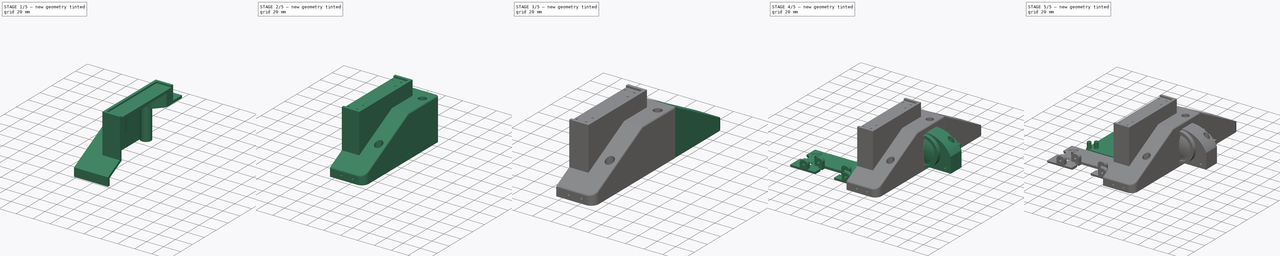
[diagram: build sequence overview — one tinted view per stage of 5, left to right]
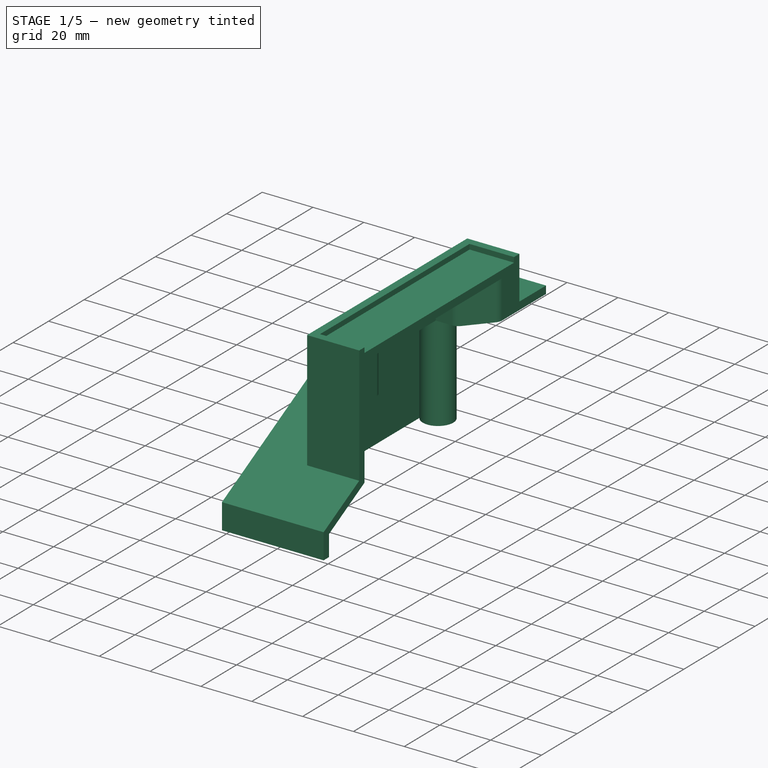
[diagram: stage 1 of 5 — iso view after this stage's code; geometry added in this stage tinted green]
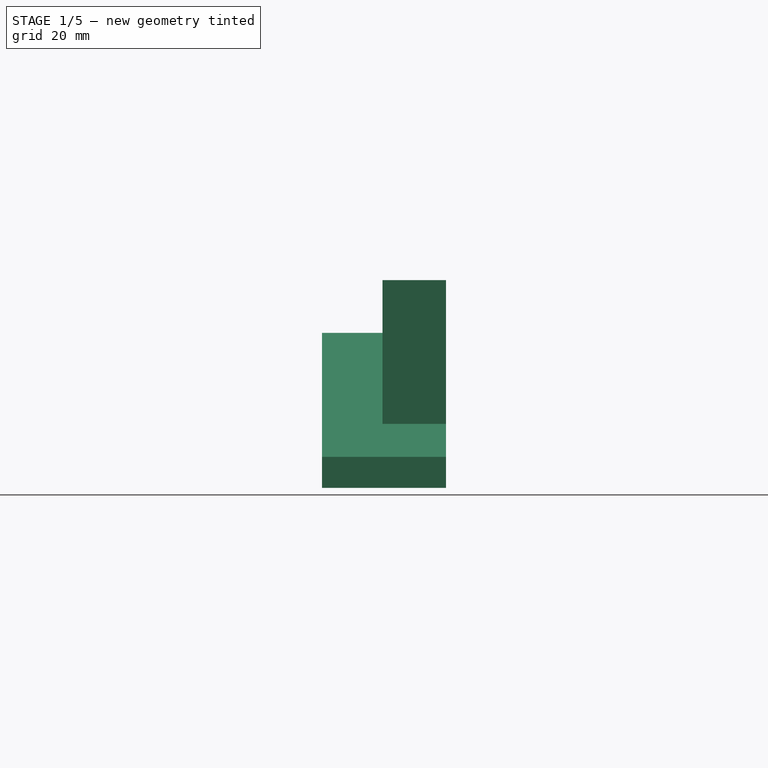
[diagram: stage 1 of 5 — front view after this stage's code; geometry added in this stage tinted green]
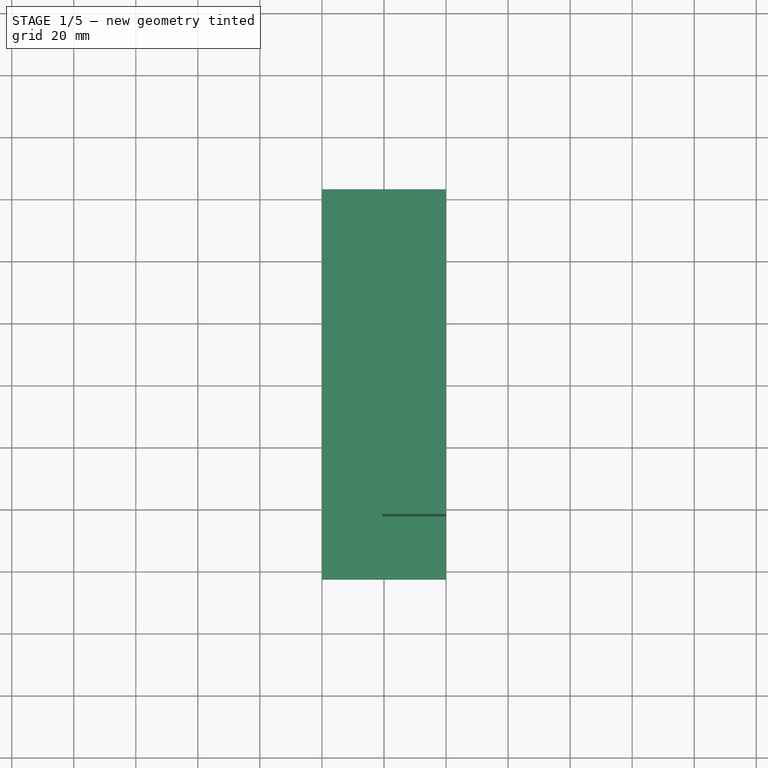
[diagram: stage 1 of 5 — top view after this stage's code; geometry added in this stage tinted green]
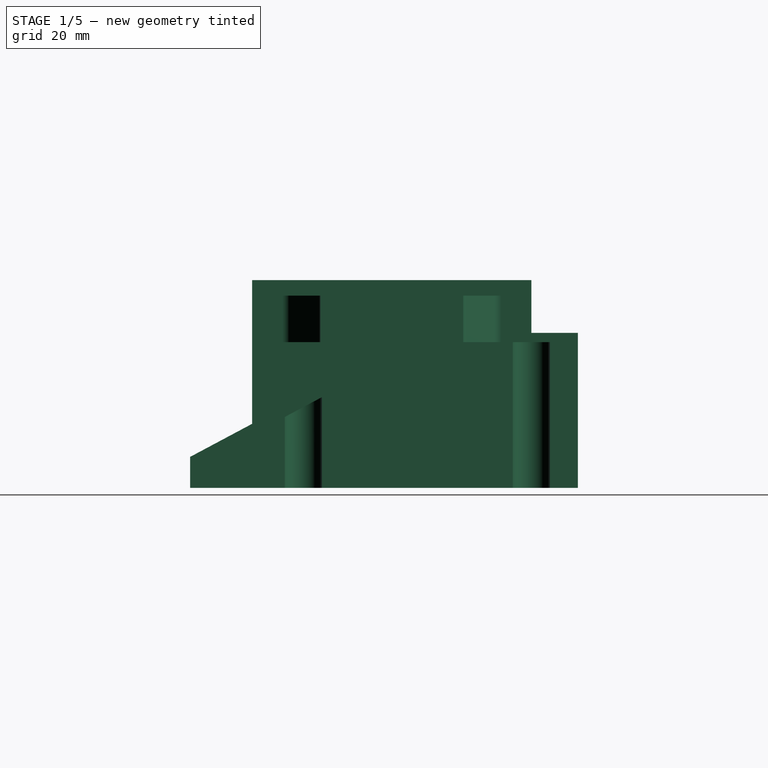
[diagram: stage 1 of 5 — right view after this stage's code; geometry added in this stage tinted green]
FCSTD DOCUMENT  (FreeCAD 0.21R33771 (Git))
Label: BigOleYellow
License: All rights reserved
LicenseURL: http://en.wikipedia.org/wiki/All_rights_reserved
objects: Part::Feature×41, Sketcher::SketchObject×23, App::Part×16, PartDesign::Pad×16, App::Link×11, App::DocumentObjectGroup×8, PartDesign::Pocket×5, PartDesign::Fillet×5, Part::FeaturePython×4, PartDesign::Body×4, PartDesign::Hole×4, PartDesign::Plane×2, Part::Box×2, Part::Mirroring×2, Spreadsheet::Sheet×1, App::DocumentObjectGroupPython×1, Part::Cut×1, Part::MultiFuse×1, App::FeaturePython×1, App::AnnotationLabel×1, +1 more types
note: 142 computed .brp shape members not serialized (recipe doc carries the construction recipe); baked Part::Feature solids carry a one-line shape summary decoded from their .brp
EXTERNAL_REF file=RaspberryPi3a+.FCStd obj=RaspberryPi3A__v8
EXTERNAL_REF file=BigOleYellowChassisPlate.FCStd obj=Body011
EXTERNAL_REF file=YukonBoard.FCStd obj=Body008
EXTERNAL_REF file=RaspberryPi3a+.FCStd obj=Spreadsheet001
EXTERNAL_REF file=YukonBoard.FCStd obj=Spreadsheet
EXTERNAL_REF file=attachment_mounting_plate.FCStd obj=Part
EXTERNAL_REF file=BigOleYellowChassisPlate.FCStd obj=Spreadsheet001

FEATURE [App::DocumentObjectGroup] Group001  label="HullAssembly"
  Group = -> [Part__Feature216,Part__Feature217,Part__Mirroring001,Body006]
FEATURE [App::Link] Link010  label="ChassisPlateSheet"
  LinkedObject = -> <external BigOleYellowChassisPlate.FCStd>#Spreadsheet001
FEATURE [Sketcher::SketchObject] Sketch050  label="Hull2ProfileSketch"
  FullyConstrained = true
  MapMode = 5
  Placement = pos=(0,0,0) rot=(0.57735,0.57735,0.57735;2.0944rad)
  Support = -> [YZ_Plane059]
  expr: Constraints[11] = <<chassis_spreadsheet>>.hull2_front_step_height
  expr: Constraints[12] = <<chassis_spreadsheet>>.hull2_slope_length
  expr: Constraints[7] = <<chassis_spreadsheet>>.hull2_length
  expr: Constraints[8] = <<chassis_spreadsheet>>.hull2_top
  sketch-geometry (5):
    g0: LineSegment StartX=-62.5 StartY=10 StartZ=0 EndX=-62.5 EndY=1.8e-15 EndZ=0
    g1: LineSegment StartX=12.5 StartY=50 StartZ=0 EndX=-62.5 EndY=10 EndZ=0
    g2: LineSegment StartX=-62.5 StartY=1.8e-15 StartZ=0 EndX=62.5 EndY=0 EndZ=0
    g3: LineSegment StartX=62.5 StartY=0 StartZ=0 EndX=62.5 EndY=50 EndZ=0
    g4: LineSegment StartX=62.5 StartY=50 StartZ=0 EndX=12.5 EndY=50 EndZ=0
  constraints (14):
    c: Vertical(g0)
    c: Coincident(g1,g0)
    c: Coincident(g2,g3)
    c: Vertical(g3)
    c: Coincident(g3,g4)
    c: Horizontal(g4)
    c: Coincident(g0,g2)
    c: DistanceX(g2,g2) = 125
    c: DistanceY(g3,g3) = 50
    c: Coincident(g1,g4)
    c: Symmetric(g0,g2,g-2)
    c: DistanceY(g0,g0) = 10
    c: DistanceX(g0,g1) = 75
    c: PointOnObject(g2,g-1)
FEATURE [PartDesign::Pad] Pad026  label="Hull2Profile"
  Direction = (1,-2e-16,3e-16)
  Length = 40
  Length2 = 10
  Placement = pos=(0,0,0) rot=(1,1,1;2.0944rad)
  Profile = -> Sketch050
  ReferenceAxis = -> Sketch050 [N_Axis]
  Type = 0
  expr: Length = <<chassis_spreadsheet>>.hull2_front_width
FEATURE [PartDesign::Plane] DatumPlane013
  AttachmentOffset = pos=(0,0,65) rot=(0,0,1;0rad)
  Length = 83.0278
  MapMode = 5
  Placement = pos=(0,0,65) rot=(0,0,1;0rad)
  ResizeMode = 0
  Support = -> [XY_Plane059]
  Width = 143.028
  expr: .AttachmentOffset.Base.z = <<chassis_spreadsheet>>.hull2_mount_height
FEATURE [Sketcher::SketchObject] Sketch051  label="Hull2MountingBossSketch"
  ExternalGeometry = -> [Pad026]
  FullyConstrained = true
  MapMode = 5
  Placement = pos=(0,0,65) rot=(0,0,1;0rad)
  Support = -> [DatumPlane013]
  expr: Constraints[10] = <<chassis_spreadsheet>>.hull2_mount_front
  expr: Constraints[11] = <<chassis_spreadsheet>>.attachment_plate_length + <<chassis_spreadsheet>>.attachment_plate_border * 2
  expr: Constraints[8] = <<chassis_spreadsheet>>.hull2_mount_x_offset
  sketch-geometry (4):
    g0: LineSegment StartX=19.5 StartY=47.5 StartZ=0 EndX=40 EndY=47.5 EndZ=0
    g1: LineSegment StartX=40 StartY=47.5 StartZ=0 EndX=40 EndY=-42.5 EndZ=0
    g2: LineSegment StartX=40 StartY=-42.5 StartZ=0 EndX=19.5 EndY=-42.5 EndZ=0
    g3: LineSegment StartX=19.5 StartY=-42.5 StartZ=0 EndX=19.5 EndY=47.5 EndZ=0
  constraints (12):
    c: Coincident(g0,g1)
    c: Coincident(g1,g2)
    c: Coincident(g2,g3)
    c: Coincident(g3,g0)
    c: Horizontal(g0)
    c: Horizontal(g2)
    c: Vertical(g1)
    c: Vertical(g3)
    c: DistanceX(g-1,g0) = 19.5
    c: PointOnObject(g0,g-3)
    c: DistanceY(g-4,g1) = 20
    c: DistanceY(g1,g1) = 90
FEATURE [PartDesign::Pad] Pad027  label="Hull2MountingBoss"
  BaseFeature = -> Pad026
  Direction = (0,0,1)
  Length = 10
  Length2 = 10
  Placement = pos=(0,0,0) rot=(1,1,1;2.0944rad)
  Profile = -> Sketch051
  ReferenceAxis = -> Sketch051 [N_Axis]
  Refine = true
  Type = 3
  UpToFace = -> Pad026 [Face2]
FEATURE [Sketcher::SketchObject] Sketch052  label="Hull2ChassisBoltsSketch"
  AttachmentOffset = pos=(0,0,2) rot=(0,0,1;0rad)
  ExternalGeometry = -> [Pad027]
  FullyConstrained = true
  MapMode = 5
  Placement = pos=(0,0,2) rot=(0,0,1;0rad)
  Support = -> [XY_Plane059]
  expr: .AttachmentOffset.Base.z = <<chassis_spreadsheet>>.plate_thickness
  expr: Constraints[1] = 2.5 mm
  expr: Constraints[2] = <<chassis_spreadsheet>>.hull2_mid_hole_from_frnt
  expr: Constraints[3] = <<chassis_spreadsheet>>.hull2_mid_hole_from_edge
  expr: Constraints[4] = <<chassis_spreadsheet>>.outer_hole_from_front
  expr: Constraints[5] = <<chassis_spreadsheet>>.outer_hole_to_edge
  sketch-geometry (2):
    g0: Circle CenterX=8 CenterY=47.5 CenterZ=0 NormalX=0 NormalY=0 NormalZ=1 AngleXU=0 Radius=1.25
    g1: Circle CenterX=8 CenterY=-26 CenterZ=0 NormalX=0 NormalY=0 NormalZ=1 AngleXU=0 Radius=1.25
  constraints (6):
    c: Equal(g1,g0)
    c: Diameter(g0) = 2.5
    c: DistanceY(g-3,g0) = 110
    c: DistanceX(g-3,g0) = 8
    c: DistanceY(g-3,g1) = 36.5
    c: DistanceX(g-3,g1) = 8
FEATURE [Sketcher::SketchObject] Sketch053  label="HUll2ApBorderSketch"
  ExternalGeometry = -> [Pad027]
  FullyConstrained = true
  MapMode = 5
  Placement = pos=(-2.16e-14,7.2e-15,65) rot=(0,0,-1;1.5708rad)
  Support = -> [Pad027]
  expr: Constraints[12] = <<chassis_spreadsheet>>.attachment_plate_border
  expr: Constraints[15] = <<chassis_spreadsheet>>.attachment_plate_border
  sketch-geometry (8):
    g0: LineSegment StartX=42.5 StartY=40 StartZ=0 EndX=39.5 EndY=40 EndZ=0
    g1: LineSegment StartX=39.5 StartY=40 StartZ=0 EndX=39.5 EndY=22.5 EndZ=0
    g2: LineSegment StartX=39.5 StartY=22.5 StartZ=0 EndX=-44.5 EndY=22.5 EndZ=0
    g3: LineSegment StartX=-44.5 StartY=22.5 StartZ=0 EndX=-44.5 EndY=40 EndZ=0
    g4: LineSegment StartX=-44.5 StartY=40 StartZ=0 EndX=-47.5 EndY=40 EndZ=0
    g5: LineSegment StartX=-47.5 StartY=40 StartZ=0 EndX=-47.5 EndY=19.5 EndZ=0
    g6: LineSegment StartX=-47.5 StartY=19.5 StartZ=0 EndX=42.5 EndY=19.5 EndZ=0
    g7: LineSegment StartX=42.5 StartY=19.5 StartZ=0 EndX=42.5 EndY=40 EndZ=0
  constraints (21):
    c: Horizontal(g0)
    c: Coincident(g0,g1)
    c: Coincident(g1,g2)
    c: Horizontal(g2)
    c: Coincident(g2,g3)
    c: Vertical(g3)
    c: Coincident(g3,g4)
    c: Coincident(g4,g5)
    c: Coincident(g5,g6)
    c: Coincident(g6,g7)
    c: Coincident(g0,g7)
    c: Vertical(g1)
    c: DistanceX(g0,g0) = 3
    c: Equal(g0,g4)
    c: Horizontal(g4)
    c: DistanceY(g6,g1) = 3
    c: Coincident(g4,g-3)
    c: Coincident(g5,g-4)
    c: Coincident(g0,g-5)
    c: Horizontal(g6)
    c: Vertical(g7)
FEATURE [PartDesign::Thickness] Thickness
  Base = -> Pad027 [Face11,Face8,Face3]
  BaseFeature = -> Pad027
  Intersection = false
  Join = 1
  Mode = 0
  Reversed = true
  SupportTransform = false
  Value = 3
FEATURE [PartDesign::Pad] Pad028  label="HUll2ApBorder"
  BaseFeature = -> Thickness
  Direction = (-3e-16,1e-16,1)
  Length = 2
  Length2 = 10
  Profile = -> Sketch053
  ReferenceAxis = -> Sketch053 [N_Axis]
  Type = 0
  expr: Length = <<chassis_spreadsheet>>.plate_thickness
FEATURE [Sketcher::SketchObject] Sketch054  label="HUll2ApHolesSketch"
  ExternalGeometry = -> [Sketch053]
  FullyConstrained = true
  MapMode = 5
  Placement = pos=(-2.16e-14,7.2e-15,65) rot=(0,0,1;0rad)
  Support = -> [Pad028]
  sketch-geometry (6):
    g0: Circle CenterX=27.5 CenterY=-24.5 CenterZ=0 NormalX=0 NormalY=0 NormalZ=1 AngleXU=0 Radius=1.25
    g1: Circle CenterX=27.5 CenterY=-34.5 CenterZ=0 NormalX=0 NormalY=0 NormalZ=1 AngleXU=0 Radius=1.25
    g2: Circle CenterX=37.5 CenterY=-34.5 CenterZ=0 NormalX=0 NormalY=0 NormalZ=1 AngleXU=0 Radius=1.25
    g3: Circle CenterX=27.5 CenterY=39.5 CenterZ=0 NormalX=0 NormalY=0 NormalZ=1 AngleXU=0 Radius=1.25
    g4: Circle CenterX=37.5 CenterY=39.5 CenterZ=0 NormalX=0 NormalY=0 NormalZ=1 AngleXU=0 Radius=1.25
    g5: Circle CenterX=27.5 CenterY=29.5 CenterZ=0 NormalX=0 NormalY=0 NormalZ=1 AngleXU=0 Radius=1.25
  constraints (18):
    c: Equal(g5,g4)
    c: Equal(g4,g3)
    c: Equal(g5,g2)
    c: Equal(g2,g1)
    c: Equal(g1,g0)
    c: DistanceX(g1,g2) = 10
    c: DistanceY(g1,g0) = 10
    c: DistanceX(g5,g4) = 10
    c: Diameter(g0) = 2.5
    c: Horizontal(g4,g3)
    c: DistanceY(g5,g3) = 10
    c: Vertical(g5,g3)
    c: Vertical(g0,g1)
    c: Horizontal(g2,g1)
    c: DistanceX(g-3,g3) = 5
    c: DistanceY(g3,g-3) = 5
    c: DistanceY(g-3,g1) = 5
    c: DistanceX(g-3,g1) = 5
FEATURE [Sketcher::SketchObject] Sketch056  label="Hull2SensorHolesSketch"
  ExternalGeometry = -> [Pad028]
  FullyConstrained = true
  MapMode = 5
  Placement = pos=(-2.78e-14,-62.5,4.16e-14) rot=(1,0,0;1.5708rad)
  Support = -> [Pad028]
  expr: Constraints[6] = <<chassis_spreadsheet>>.pim_tofl_hole_dist
  sketch-geometry (4):
    g0: Circle CenterX=26.8 CenterY=5 CenterZ=0 NormalX=0 NormalY=0 NormalZ=1 AngleXU=0 Radius=1.25
    g1: Circle CenterX=13.2 CenterY=5 CenterZ=0 NormalX=0 NormalY=0 NormalZ=1 AngleXU=0 Radius=1.25
    g2: LineSegment StartX=20 StartY=10 StartZ=0 EndX=20 EndY=2.49e-14 EndZ=0
    g3: LineSegment StartX=26.8 StartY=5 StartZ=0 EndX=13.2 EndY=5 EndZ=0
  constraints (10):
    c: Symmetric(g0,g1,g2)
    c: Equal(g1,g0)
    c: Diameter(g0) = 2.5
    c: Coincident(g3,g1)
    c: Symmetric(g2,g2,g3)
    c: Symmetric(g-3,g-3,g2)
    c: DistanceX(g1,g0) = 13.6
    c: PointOnObject(g2,g-3)
    c: PointOnObject(g2,g-4)
    c: Coincident(g3,g0)
FEATURE [Sketcher::SketchObject] Sketch057
  ExternalGeometry = -> [Sketch052]
  FullyConstrained = true
  MapMode = 5
  Support = -> [XY_Plane059]
  sketch-geometry (1):
    g0: Circle CenterX=8 CenterY=-26 CenterZ=0 NormalX=0 NormalY=0 NormalZ=1 AngleXU=0 Radius=6
  constraints (2):
    c: Coincident(g0,g-4)
    c: Diameter(g0) = 12
FEATURE [PartDesign::Pad] Pad029  label="Hull2FrontBoltBoss"
  BaseFeature = -> Pad028
  Direction = (0,0,1)
  Length = 10
  Length2 = 10
  Profile = -> Sketch057
  ReferenceAxis = -> Sketch057 [N_Axis]
  Type = 3
  UpToFace = -> Pad028 [Face2]
FEATURE [Sketcher::SketchObject] Sketch058
  ExternalGeometry = -> [Sketch052]
  FullyConstrained = true
  MapMode = 5
  Support = -> [XY_Plane059]
  sketch-geometry (1):
    g0: Circle CenterX=8 CenterY=47.5 CenterZ=0 NormalX=0 NormalY=0 NormalZ=1 AngleXU=0 Radius=6
  constraints (2):
    c: Coincident(g0,g-4)
    c: Diameter(g0) = 12
FEATURE [PartDesign::Pad] Pad030  label="Hull2RearBoltBoss"
  BaseFeature = -> Pad029
  Direction = (0,0,1)
  Length = 10
  Length2 = 10
  Profile = -> Sketch058
  ReferenceAxis = -> Sketch058 [N_Axis]
  Type = 3
  UpToFace = -> Pad029 [Face8]
FEATURE [Sketcher::SketchObject] Sketch059  label="Hull2APSupportSketchFront"
  ExternalGeometry = -> [Sketch053,Sketch054]
  FullyConstrained = true
  MapMode = 5
  Placement = pos=(-2.07e-14,6.9e-15,62) rot=(1,0,0;3.14159rad)
  Support = -> [Pad028]
  sketch-geometry (9):
    g0: LineSegment StartX=22.5 StartY=20.5 StartZ=0 EndX=28.8981 EndY=20.5 EndZ=0
    g1: LineSegment StartX=31.547 StartY=21.7123 StartZ=0 EndX=39.1489 EndY=30.5145 EndZ=0
    g2: LineSegment StartX=40 StartY=32.8022 StartZ=0 EndX=40 EndY=39.5 EndZ=0
    g3: LineSegment StartX=40 StartY=39.5 StartZ=0 EndX=22.5 EndY=39.5 EndZ=0
    g4: LineSegment StartX=22.5 StartY=39.5 StartZ=0 EndX=22.5 EndY=20.5 EndZ=0
    g5: ArcOfCircle CenterX=28.8981 CenterY=24 CenterZ=0 NormalX=0 NormalY=0 NormalZ=1 AngleXU=0 Radius=3.5 StartAngle=4.71239 EndAngle=5.57083
    g6: GeomPoint X=30.5 Y=20.5 Z=0
    g7: ArcOfCircle CenterX=36.5 CenterY=32.8022 CenterZ=0 NormalX=0 NormalY=0 NormalZ=1 AngleXU=0 Radius=3.5 StartAngle=5.57083 EndAngle=6.28319
    g8: GeomPoint X=40 Y=31.5 Z=0
  constraints (21):
    c: PointOnObject(g0,g-3)
    c: Horizontal(g0)
    c: Coincident(g2,g-4)
    c: Vertical(g2)
    c: Coincident(g2,g3)
    c: Coincident(g3,g-4)
    c: Coincident(g3,g4)
    c: Coincident(g4,g0)
    c: DistanceY(g0,g-6) = 4
    c: DistanceY(g8,g-7) = 3
    c: DistanceX(g-6,g6) = 3
    c: PointOnObject(g6,g0)
    c: PointOnObject(g6,g1)
    c: Tangent(g0,g5) = -1.5708
    c: Tangent(g1,g5) = -1.5708
    c: PointOnObject(g8,g1)
    c: PointOnObject(g8,g2)
    c: Tangent(g1,g7) = -1.5708
    c: Tangent(g2,g7) = -1.5708
    c: Equal(g7,g5)
    c: Diameter(g7) = 7
FEATURE [PartDesign::Pad] Pad031  label="Hull2APSupportFront"
  BaseFeature = -> Pad030
  Direction = (3e-16,-1e-16,-1)
  Length = 15
  Length2 = 10
  Profile = -> Sketch059
  ReferenceAxis = -> Sketch059 [N_Axis]
  Type = 0
FEATURE [Sketcher::SketchObject] Sketch060  label="Hull2APSupportSketchRear"
  ExternalGeometry = -> [Sketch059,Sketch053]
  FullyConstrained = true
  MapMode = 5
  Placement = pos=(-2.07e-14,6.9e-15,62) rot=(1,0,0;3.14159rad)
  Support = -> [Pad028]
  sketch-geometry (9):
    g0: LineSegment StartX=40 StartY=-44.5 StartZ=0 EndX=40 EndY=-37.8022 EndZ=0
    g1: LineSegment StartX=39.1489 StartY=-35.5145 StartZ=0 EndX=31.547 EndY=-26.7123 EndZ=0
    g2: LineSegment StartX=28.8981 StartY=-25.5 StartZ=0 EndX=22.5 EndY=-25.5 EndZ=0
    g3: LineSegment StartX=22.5 StartY=-25.5 StartZ=0 EndX=22.5 EndY=-44.5 EndZ=0
    g4: ArcOfCircle CenterX=28.8981 CenterY=-29 CenterZ=0 NormalX=0 NormalY=0 NormalZ=1 AngleXU=0 Radius=3.5 StartAngle=0.712358 EndAngle=1.5708
    g5: GeomPoint X=30.5 Y=-25.5 Z=0
    g6: ArcOfCircle CenterX=36.5 CenterY=-37.8022 CenterZ=0 NormalX=0 NormalY=0 NormalZ=1 AngleXU=0 Radius=3.5 StartAngle=0 EndAngle=0.712358
    g7: GeomPoint X=40 Y=-36.5 Z=0
    g8: LineSegment StartX=22.5 StartY=-44.5 StartZ=0 EndX=40 EndY=-44.5 EndZ=0
  constraints (21):
    c: Coincident(g-10,g0)
    c: Vertical(g0)
    c: Horizontal(g2)
    c: Coincident(g2,g3)
    c: Coincident(g3,g-10)
    c: Vertical(g3)
    c: Equal(g3,g-9)
    c: PointOnObject(g5,g2)
    c: PointOnObject(g5,g1)
    c: Tangent(g2,g4) = -1.5708
    c: Tangent(g1,g4) = -1.5708
    c: PointOnObject(g7,g0)
    c: PointOnObject(g7,g1)
    c: Tangent(g0,g6) = -1.5708
    c: Tangent(g1,g6) = -1.5708
    c: Equal(g2,g-3)
    c: Equal(g0,g-7)
    c: Equal(g4,g6)
    c: Equal(g6,g-6)
    c: Coincident(g8,g3)
    c: Coincident(g8,g0)
FEATURE [PartDesign::Pad] Pad032  label="Hull2APSupportRear"
  BaseFeature = -> Pad031
  Direction = (3e-16,-1e-16,-1)
  Length = 15
  Length2 = 10
  Profile = -> Sketch060
  ReferenceAxis = -> Sketch060 [N_Axis]
  Type = 0
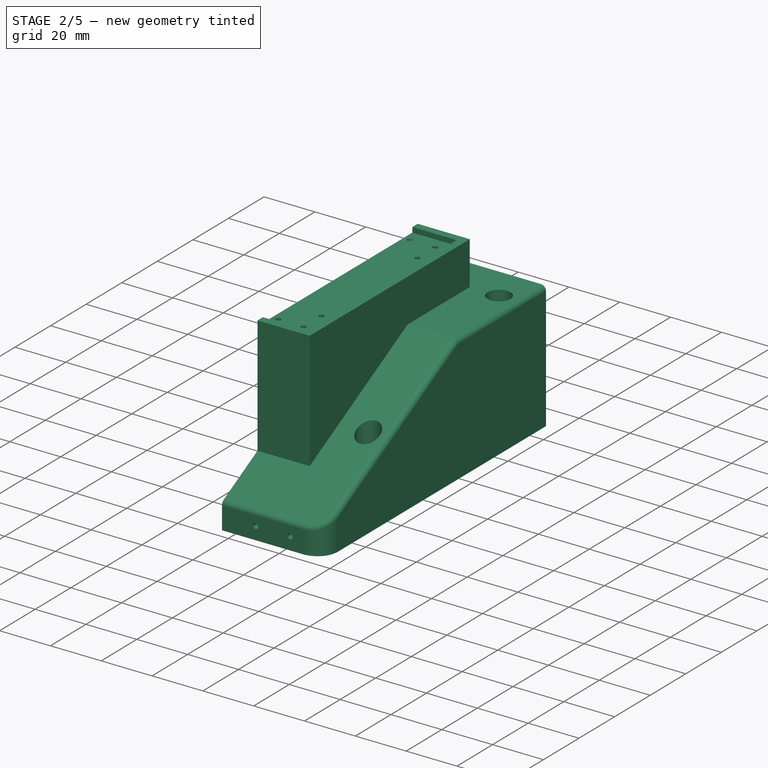
[diagram: stage 2 of 5 — iso view after this stage's code; geometry added in this stage tinted green]
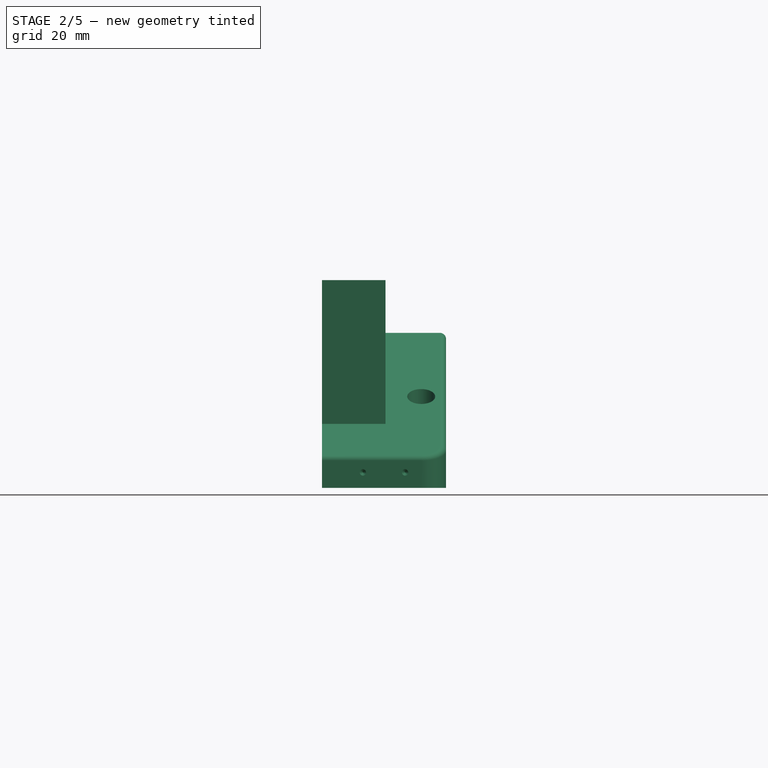
[diagram: stage 2 of 5 — front view after this stage's code; geometry added in this stage tinted green]
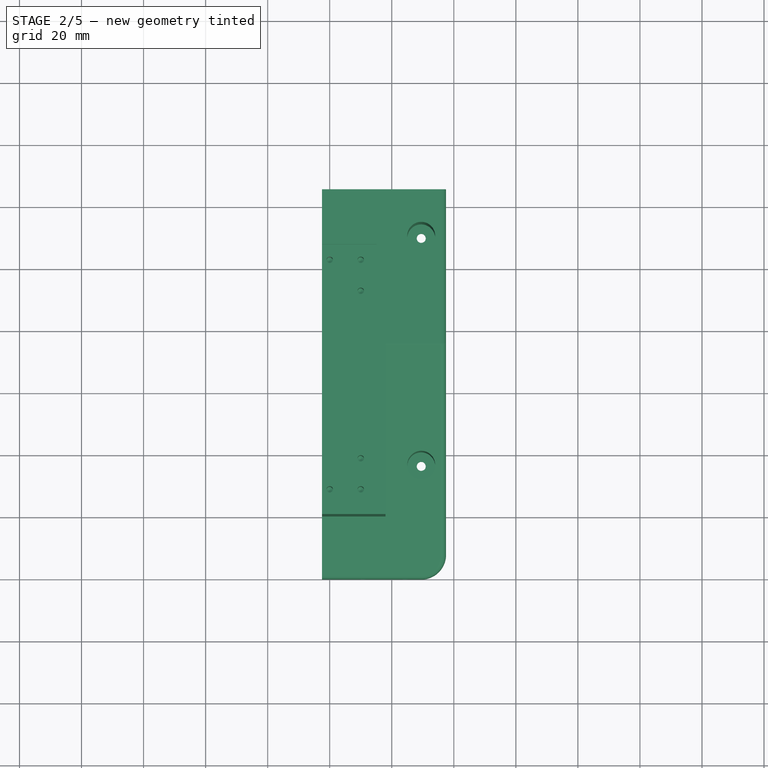
[diagram: stage 2 of 5 — top view after this stage's code; geometry added in this stage tinted green]
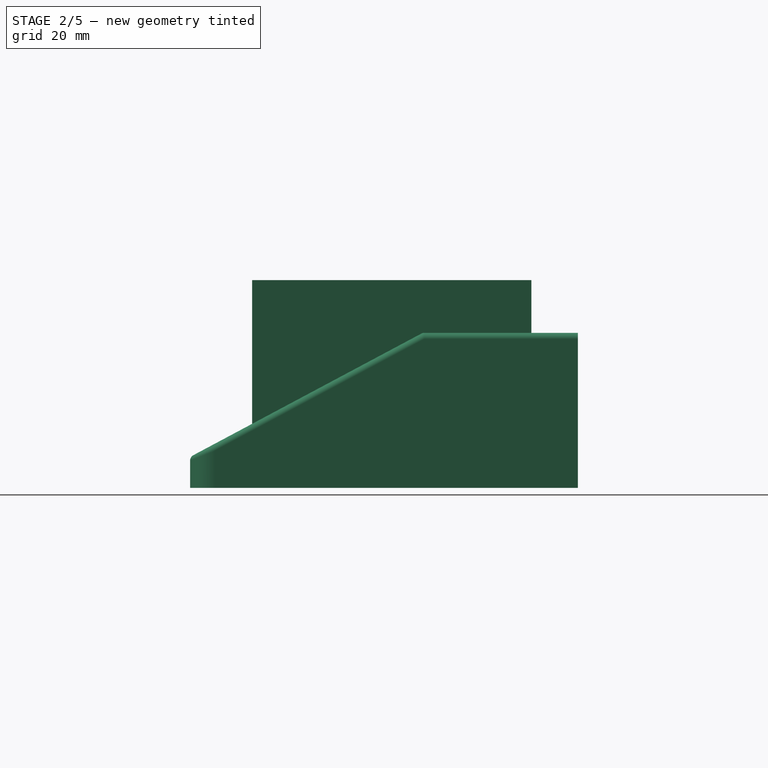
[diagram: stage 2 of 5 — right view after this stage's code; geometry added in this stage tinted green]
FEATURE [PartDesign::Hole] Hole003  label="HUll2ApHoles"
  BaseFeature = -> Pad032
  CustomThreadClearance = 0
  Depth = 15
  DepthType = 0
  Diameter = 2.05
  DrillForDepth = false
  DrillPoint = 1
  DrillPointAngle = 118
  HoleCutCountersinkAngle = 90
  HoleCutCustomValues = false
  HoleCutDepth = 0
  HoleCutDiameter = 6.1
  HoleCutType = 0
  ModelThread = false
  Profile = -> Sketch054
  Refine = true
  Tapered = false
  TaperedAngle = 90
  ThreadClass = 0
  ThreadDepth = 15
  ThreadDepthType = 0
  ThreadDirection = 0
  ThreadFit = 0
  ThreadSize = 8
  ThreadType = 1
  Threaded = true
  UseCustomThreadClearance = false
FEATURE [PartDesign::Hole] Hole005  label="Hull2ChassisBolts"
  BaseFeature = -> Hole003
  CustomThreadClearance = 0
  Depth = 25
  DepthType = 0
  Diameter = 2.9
  DrillForDepth = false
  DrillPoint = 1
  DrillPointAngle = 118
  HoleCutCountersinkAngle = 90
  HoleCutCustomValues = false
  HoleCutDepth = 0
  HoleCutDiameter = 6.1
  HoleCutType = 0
  ModelThread = false
  Profile = -> Sketch052
  Tapered = false
  TaperedAngle = 90
  ThreadClass = 0
  ThreadDepth = 25
  ThreadDepthType = 0
  ThreadDirection = 0
  ThreadFit = 0
  ThreadSize = 8
  ThreadType = 1
  Threaded = false
  UseCustomThreadClearance = false
FEATURE [PartDesign::Hole] Hole006  label="Hull2ChassisBoltAccess"
  BaseFeature = -> Hole005
  CustomThreadClearance = 0
  Depth = 297.661
  DepthType = 1
  Diameter = 9
  DrillForDepth = false
  DrillPoint = 1
  DrillPointAngle = 118
  HoleCutCountersinkAngle = 90
  HoleCutCustomValues = false
  HoleCutDepth = 0
  HoleCutDiameter = 6.1
  HoleCutType = 0
  ModelThread = false
  Profile = -> Sketch052
  Reversed = true
  Tapered = false
  TaperedAngle = 90
  ThreadClass = 0
  ThreadDepth = 297.661
  ThreadDepthType = 0
  ThreadDirection = 0
  ThreadFit = 0
  ThreadSize = 16
  ThreadType = 1
  Threaded = false
  UseCustomThreadClearance = false
FEATURE [Sketcher::SketchObject] Sketch061
  ExternalGeometry = -> [Pad028]
  FullyConstrained = true
  MapMode = 5
  Support = -> [XY_Plane059]
  sketch-geometry (4):
    g0: LineSegment StartX=3 StartY=-59.5 StartZ=0 EndX=40 EndY=-59.5 EndZ=0
    g1: LineSegment StartX=40 StartY=-59.5 StartZ=0 EndX=40 EndY=-53.5 EndZ=0
    g2: LineSegment StartX=40 StartY=-53.5 StartZ=0 EndX=3 EndY=-53.5 EndZ=0
    g3: LineSegment StartX=3 StartY=-53.5 StartZ=0 EndX=3 EndY=-59.5 EndZ=0
  constraints (10):
    c: Coincident(g0,g1)
    c: Coincident(g1,g2)
    c: Coincident(g2,g3)
    c: Coincident(g3,g0)
    c: Horizontal(g2)
    c: Vertical(g1)
    c: Vertical(g3)
    c: Coincident(g0,g-3)
    c: Coincident(g0,g-3)
    c: DistanceY(g1,g1) = 6
FEATURE [PartDesign::Pad] Pad033
  BaseFeature = -> Hole006
  Direction = (0,0,1)
  Length = 10
  Length2 = 10
  Profile = -> Sketch061
  ReferenceAxis = -> Sketch061 [N_Axis]
  Refine = true
  Type = 2
FEATURE [PartDesign::Hole] Hole004  label="Hull2SensorHoles"
  BaseFeature = -> Pad033
  CustomThreadClearance = 0
  Depth = 8
  DepthType = 0
  Diameter = 2.05
  DrillForDepth = false
  DrillPoint = 1
  DrillPointAngle = 118
  HoleCutCountersinkAngle = 90
  HoleCutCustomValues = false
  HoleCutDepth = 0
  HoleCutDiameter = 6.1
  HoleCutType = 0
  ModelThread = false
  Profile = -> Sketch056
  Tapered = false
  TaperedAngle = 90
  ThreadClass = 0
  ThreadDepth = 8
  ThreadDepthType = 0
  ThreadDirection = 0
  ThreadFit = 0
  ThreadSize = 8
  ThreadType = 1
  Threaded = true
  UseCustomThreadClearance = false
FEATURE [PartDesign::Fillet] Fillet009
  Base = -> Hole004 [Edge75]
  BaseFeature = -> Hole004
  Radius = 8
  SupportTransform = false
  UseAllEdges = false
FEATURE [PartDesign::Fillet] Fillet010
  Base = -> Fillet009 [Edge42,Edge16,Edge66,Edge43,Edge50,Edge61,Edge76,Edge60,Edge51]
  BaseFeature = -> Fillet009
  Radius = 2
  SupportTransform = false
  UseAllEdges = false
FEATURE [PartDesign::Body] Body012  label="Hull2_Body"
  Group = -> [Sketch050,Pad026,DatumPlane013,Sketch051,Pad027,Thickness,Pad028,Sketch052,Pad029,Pad030,Pad031,Pad032,Sketch053,Sketch054,Hole003,Sketch056,Sketch057,Sketch058,Hole005,Hole006,Sketch059,Sketch060,Sketch061,Pad033,Hole004,Fillet009,Fillet010]
  Origin = -> Origin059
  Placement = pos=(-77.5,-37.5,3) rot=(0,0,1;0rad)
  Tip = -> Fillet010
FEATURE [App::DocumentObjectGroup] Group003  label="HullV2"
  Group = -> [Body012]
FEATURE [Part::Mirroring] Part__Mirroring004  label="Hull2_Body (Mirror #4)"
  Base = (0,0,0)
  Normal = (1,0,0)
  Source = -> Body012

RESOLVED EXTERNAL PARTS (link-assembly join: the EXTERNAL_REF files above that resolve inside this repo's crawl, each included once):
---- part BigOleYellowChassisPlate.FCStd = doc fcstd_724b1ae2aab0 ----
FCSTD DOCUMENT  (FreeCAD 0.21R33771 (Git))
Label: BigOleYellowChassisPlate
License: All rights reserved
LicenseURL: http://en.wikipedia.org/wiki/All_rights_reserved
objects: Sketcher::SketchObject×7, PartDesign::Pocket×5, Part::Feature×2, PartDesign::Pad×2, App::Part×1, Spreadsheet::Sheet×1, Part::FeaturePython×1, App::FeaturePython×1, App::AnnotationLabel×1, App::DocumentObjectGroup×1, PartDesign::Mirrored×1, PartDesign::ShapeBinder×1, PartDesign::Fillet×1, PartDesign::Body×1
note: 29 computed .brp shape members not serialized (recipe doc carries the construction recipe); baked Part::Feature solids carry a one-line shape summary decoded from their .brp
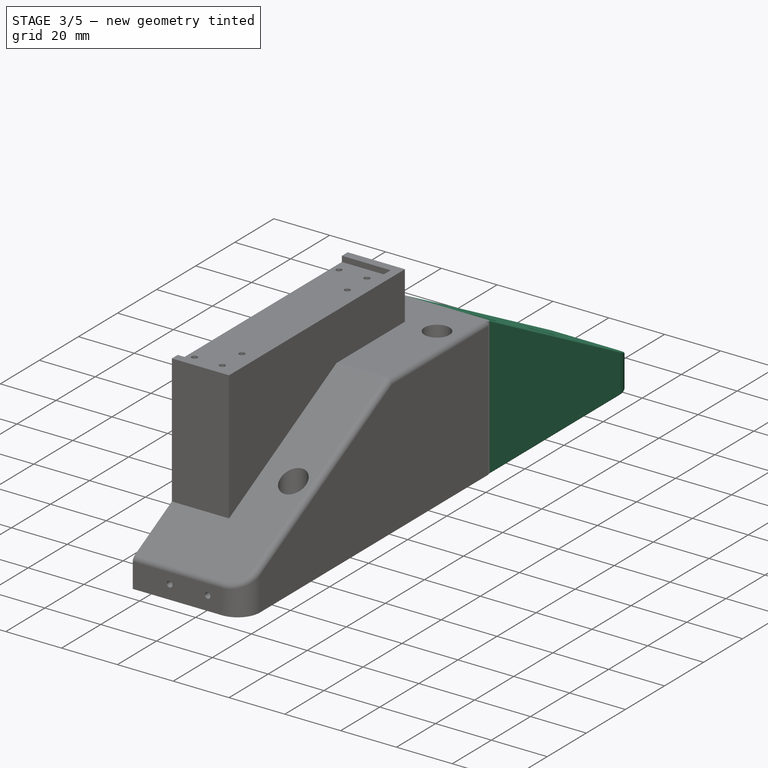
[diagram: stage 3 of 5 — iso view after this stage's code; geometry added in this stage tinted green]
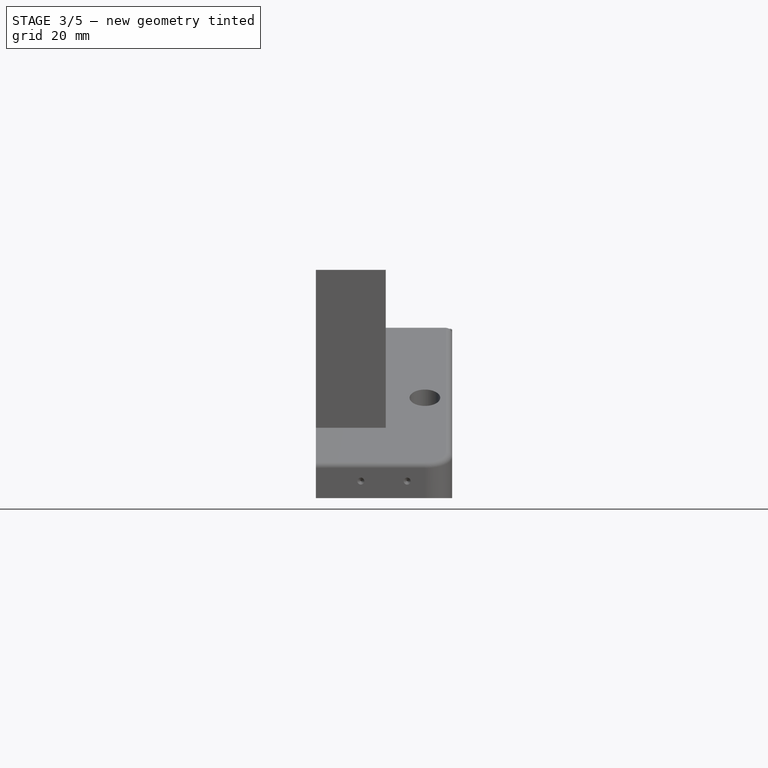
[diagram: stage 3 of 5 — front view after this stage's code; geometry added in this stage tinted green]
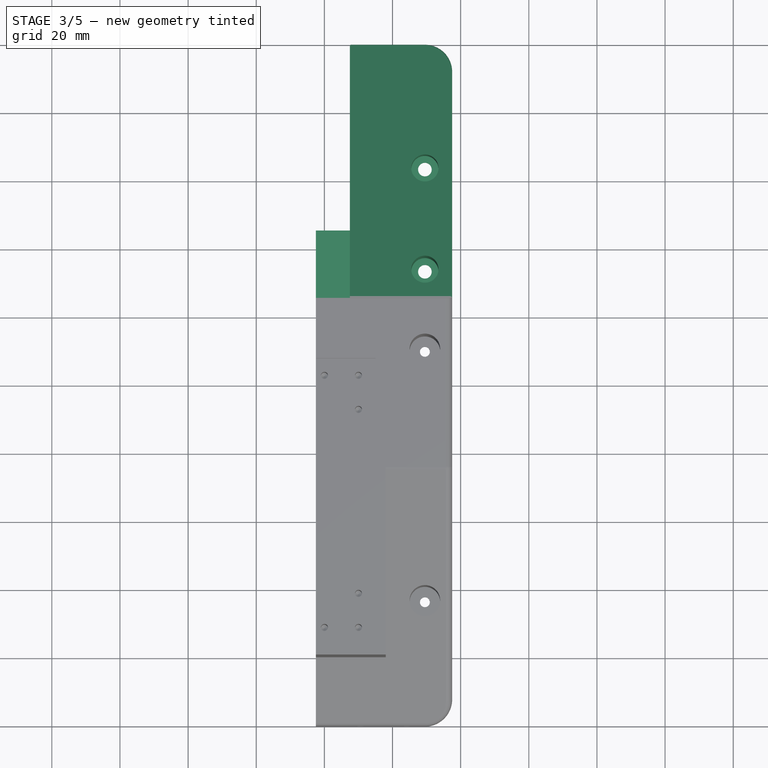
[diagram: stage 3 of 5 — top view after this stage's code; geometry added in this stage tinted green]
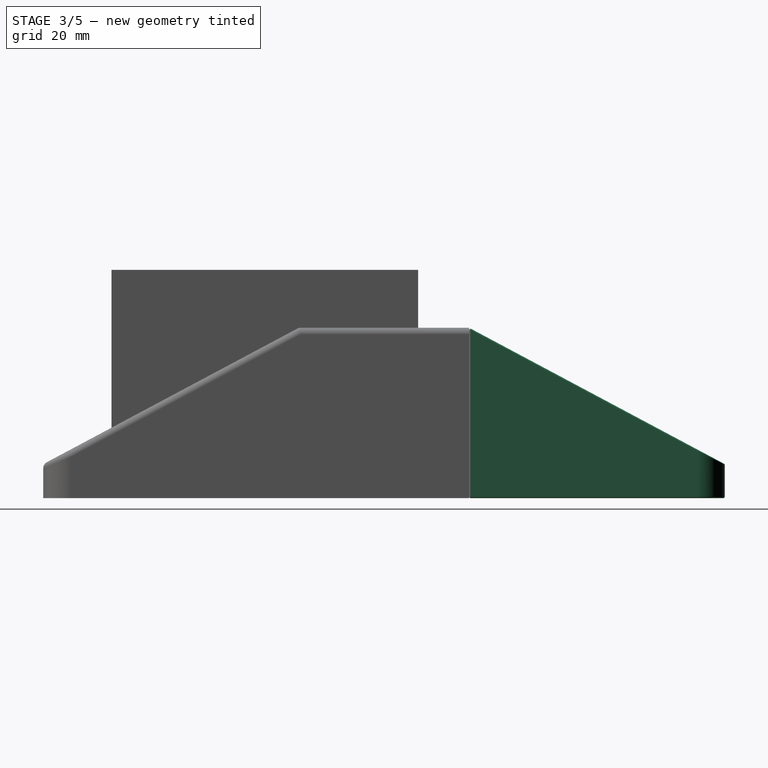
[diagram: stage 3 of 5 — right view after this stage's code; geometry added in this stage tinted green]
FEATURE [App::DocumentObjectGroup] GrExplode_Part__Feature186  label="Exploded COMPOUND005"
  Group = -> [Part__Feature186_child0,Part__Feature186_child1]
FEATURE [App::Part] pimoroni_super_wide_angle_lens_v005  label="pimoroni-super-wide-angle-lens v005"
  Group = -> [Part__Feature186,Part__Feature186_child1,Part__Feature186_child0,GrExplode_Part__Feature186]
  Origin = -> Origin028
FEATURE [Spreadsheet::Sheet] Spreadsheet  label="chassis_spreadsheet"
  cells = A1='cross_inner_height; B1(cross_inner_height)==16 mm; D1='plate_thickness; E1(plate_thickness)==2 mm; G1='m4 bolts; J1='3D Printer Tolerances; A2='cross_inner_width; B2(cross_inner_width)==14.5 mm; D2='m25_nut_thickness; E2(m25_nut_thickness)==2 mm; G2='m4_bolt_access_diameter; H2(m4_bolt_access_diameter)==8 mm; J2='printer_h_tolerance; K2(printer_h_tolerance)==0.4 mm; A3='cross_hole_size; B3(cross_hole_size)==4 mm; D3='m25_nut_width; E3(m25_nut_width)==5.4 mm; G3='m4_bolt_head_diameter; H3(m4_bolt_head_diameter)==7.22 mm; J3='printer_v_tolerance; K3(printer_v_tolerance)==0.1 mm; A4='cross_outer_height; B4(cross_outer_height)==30 mm; G4='m4_outer_thread; H4(m4_outer_thread)==4 mm; A5='cross_outer_width; B5(cross_outer_width)==24.5 mm; A6='cross_h_inset; B6(cross_h_inset)==8 mm; G6='m25_boss_diameter; H6(m25_boss_diameter)==5 mm; A7='cross_r_inset; B7(cross_r_inset)==37 mm; G7='boss_height; H7(boss_height)==8 mm; A8='cross_f_inset; B8(cross_f_inset)==37 mm; G8='m25_thread_diam; H8(m25_thread_diam)==2 mm; G9='m25_standoff_thread_length; H9(m25_standoff_thread_length)==6 mm; J10='Outer Holes; M10='Inner Holes; A11='FrontHull; D11='Front Hull Tab; G11='Mid Hull; J11='outer_hole_to_edge; K11(outer_hole_to_edge)==8 mm; M11='inner_hole_to_edge; N11(inner_hole_to_edge)==13 mm; A12='fronthull_length; B12(fronthull_length)==75 mm; D12='mid_hull_tab_height; E12(mid_hull_tab_height)==25 mm; J12='outer_hole_diameter; K12(outer_hole_diameter)==4 mm; M12='inner_hole_diameter; N12(inner_hole_diameter)==4 mm; A13='fronthull_height; B13(fronthull_height)==40 mm; D13='mid_hull_tab_width; E13(mid_hull_tab_width)==10 mm; J13='outer_hole_from_rear; K13(outer_hole_from_rear)==36.5 mm; M13='inner_hole_from_rear; N13(inner_hole_from_rear)==44 mm; A14='fronthull_width; B14(fronthull_width)==30 mm; D14='mid_hull_tab_length; E14(mid_hull_tab_length)==20 mm; J14='outer_hole_from_front; K14(outer_hole_from_front)==36.5 mm; M14='inner_hole_from_front; N14(inner_hole_from_front)==44 mm; A15='fronthull_cutout_width; B15(fronthull_cutout_width)==10 mm; J15='outer_hole_dist_fb; K15(outer_hole_dist_fb)==30 mm; M15='inner_hole_dist_fb; N15(inner_hole_dist_fb)==16 mm; A16='fronthull_cutout_length; B16(fronthull_cutout_length)==50 mm; D16='mid_hull_tab_cut_height; E16(mid_hull_tab_cut_height)==mid_hull_tab_height + plate_thickness + printer_v_tolerance; J16='outer_hole_dist_w; K16(outer_hole_dist_w)==24 mm; M16='inner_hole_dist_w; N16(inner_hole_dist_w)==15 mm; A17='fronthull_cutout_height; B17(fronthull_cutout_height)==20 mm; A18='fronthull_cutout_lower_height; B18(fronthull_cutout_lower_height)==5 mm; A19='fronthull_cutout_rear_spacing; B19(fronthull_cutout_rear_spacing)==3 mm; D19='hull_base_height; E19(hull_base_height)==10 mm; G19='Pim TOFL Sensors; J19='Chassis width; M19='Diamond Holes; G20='pim_tofl_hole_diam; H20(pim_tofl_hole_diam)==2.5 mm; J20='chassis_width; K20(chassis_width)==155 mm; M20='diamond_front_pair_dist; N20(diamond_front_pair_dist)==20.5 mm; D21='Peg Holes; G21='pim_tofl_hole_dist; H21(pim_tofl_hole_dist)==13.6 mm; J21='chassis_length; K21(chassis_length)==200 mm; M21='diamond_small_diam; N21(diamond_small_diam)==2.5 mm; A22='rearhull_length; B22(rearhull_length)==75 mm; D22='peg_hole_diameter; E22(peg_hole_diameter)==8 mm; G22='pim_tofl_panel_height; H22(pim_tofl_panel_height)==15 mm; J22='chassis_thickness; K22(chassis_thickness)==3 mm; M22='diamond_outer_pair_dist; N22(diamond_outer_pair_dist)==35 mm; A23='rearhull_height; B23(rearhull_height)==40 mm; D23='peg_hole_to_front; E23(peg_hole_to_front)==24 mm + 4 mm; G23='pim_tofl_hole_from_fronthull_top; H23(pim_tofl_hole_from_fronthull_top)==3 mm; J23='chassis_corner_radius; K23(chassis_corner_radius)==8 mm; M23='diamond_inner_pair_dist; N23(diamond_inner_pair_dist)==6.5 mm; A24='rearhull_width; B24(rearhull_width)==30 mm; D24='front_peg_hole_distance; E24(front_peg_hole_distance)==56 mm + 8 mm; G24='pim_tofl_thread_diam; H24(pim_tofl_thread_diam)==m25_thread_diam; M24='diamond_outer_to_rear; N24(diamond_outer_to_rear)==63.5 mm; A25='rearhull_cutout_width; B25(rearhull_cutout_width)==10 mm; D25='front_peg_hole_to_rear_holes; E25(front_peg_hole_to_rear_holes)==24 mm; M25='diamond_outer_y_to_mid; N25(diamond_outer_y_to_mid)==36.5 mm; A26='rearhull_cutout_length; B26(rearhull_cutout_length)==50 mm; D26='rear_peg_hole_distance; E26(rear_peg_hole_distance)==67 mm + 8 mm; A27='rearhull_cutout_height; B27(rearhull_cutout_height)==20 mm; A28='rearhull_cutout_lower_height; B28(rearhull_cutout_lower_height)==5 mm; A29='rearhull_cutout_front_spacing; B29(rearhull_cutout_front_spacing)==3 mm; G29='Yukon Board; J29='Hull 2.0; G30='yukon_pi_y_offset; H30(yukon_pi_y_offset)==10 mm; J30='hull2_length; K30(hull2_length)==125 mm; J31='hull2_front_width; K31(hull2_front_width)==40 mm; A32='mid_space; B32(mid_space)==chassis_width - 2 * fronthull_width; J32='hull2_top; K32(hull2_top)==50 mm; A33='attachment_plate_width; B33(attachment_plate_width)==110 mm; J33='hull2_mount_height; K33(hull2_mount_height)==65 mm; A34='attachment_plate_length; B34(attachment_plate_length)==84 mm; J34='hull2_mount_front; K34(hull2_mount_front)==20 mm; A35='We need to account for this in the front hull; J35='hull2_front_step_height; K35(hull2_front_step_height)==10 mm; A36='attachment_plate_embed_depth; B36(attachment_plate_embed_depth)==3 mm; J36='hull2_slope_length; K36(hull2_slope_length)==75 mm; A37='fronthull_attachment_plate_length; B37(fronthull_attachment_plate_length)==55 mm; J37='hull2_mount_x_offset; K37(hull2_mount_x_offset)==attachment_plate_left_edge - attachment_plate_border; L37='Offset from the outside edge, accounting fro 5mm border; A38='midhull_attachment_plate_length; B38(midhull_attachment_plate_length)==attachment_plate_length - fronthull_attachment_plate_length; J38='hull2_mid_hole_from_frnt; K38(hull2_mid_hole_from_frnt)==110 mm; A39='attachment_plate_left_edge; B39(attachment_plate_left_edge)==(chassis_width - attachment_plate_width) / 2; J39='hull2_mid_hole_from_edge; K39(hull2_mid_hole_from_edge)==8 mm; A40='attachment_plate_embed_width; B40(attachment_plate_embed_width)==20 mm; A41='attachment_plate_border; +12 more cells
FEATURE [App::Part] Part005  label="USBBatteryAssembly"
  Group = -> [Part__Feature190,USBBatteryGuide001,USBBatteryGuide_Mirror_]
  Origin = -> Origin045
  Placement = pos=(-77,-101,-3) rot=(1,0,0;1.5708rad)
FEATURE [Sketcher::SketchObject] Sketch015  label="RHLBBasePadSketch"
  FullyConstrained = true
  MapMode = 5
  Placement = pos=(0,0,0) rot=(0.57735,0.57735,0.57735;2.0944rad)
  Support = -> [YZ_Plane049]
  expr: Constraints[3] = Spreadsheet.rearhull_height
  expr: Constraints[4] = Spreadsheet.rearhull_length
  sketch-geometry (3):
    g0: LineSegment StartX=-2.83791e-11 StartY=40 StartZ=0 EndX=-2.83768e-11 EndY=0 EndZ=0
    g1: LineSegment StartX=-2.83768e-11 StartY=0 StartZ=0 EndX=75 EndY=-2e-16 EndZ=0
    g2: LineSegment StartX=75 StartY=-2e-16 StartZ=0 EndX=-2.83791e-11 EndY=40 EndZ=0
  constraints (7):
    c: Coincident(g0,g1)
    c: Coincident(g1,g2)
    c: Coincident(g2,g0)
    c: DistanceY(g0,g0) = 40
    c: DistanceX(g1,g1) = 75
    c: Tangent(g1,g-1)
    c: Tangent(g0,g-2)
FEATURE [PartDesign::Pad] Pad005  label="RHLBBasePad"
  Direction = (1,-2e-16,3e-16)
  Length = 30
  Length2 = 10
  Placement = pos=(0,0,0) rot=(1,1,1;2.0944rad)
  Profile = -> Sketch015
  ReferenceAxis = -> Sketch015 [N_Axis]
  Type = 0
  expr: Length = Spreadsheet.rearhull_width
FEATURE [PartDesign::Plane] DatumPlane009  label="RHLBBoltsPlane"
  AttachmentOffset = pos=(0,0,8) rot=(0,0,1;0rad)
  Length = 81.1245
  MapMode = 5
  Placement = pos=(0,0,-8) rot=(0,1,0;3.14159rad)
  ResizeMode = 0
  Support = -> [XY_Plane049]
  Width = 116.125
  expr: .AttachmentOffset.Base.z = <<chassis_spreadsheet>>.hull_base_height - <<chassis_spreadsheet>>.plate_thickness
FEATURE [Sketcher::SketchObject] Sketch016  label="RHLBBoltHolesSketch"
  ExternalGeometry = -> [Pad005]
  FullyConstrained = true
  MapMode = 5
  Placement = pos=(0,0,-8) rot=(0,1,0;3.14159rad)
  Support = -> [DatumPlane009]
  expr: Constraints[0] = -Spreadsheet.outer_hole_to_edge
  expr: Constraints[2] = Spreadsheet.outer_hole_dist_fb
  expr: Constraints[3] = Spreadsheet.outer_hole_from_rear
  expr: Constraints[4] = Spreadsheet.outer_hole_diameter
  sketch-geometry (2):
    g0: Circle CenterX=-8 CenterY=38.5 CenterZ=0 NormalX=0 NormalY=0 NormalZ=1 AngleXU=0 Radius=2
    g1: Circle CenterX=-8 CenterY=8.5 CenterZ=0 NormalX=0 NormalY=0 NormalZ=1 AngleXU=0 Radius=2
  constraints (6):
    c: DistanceX(g-4,g0) = -8
    c: Vertical(g1,g0)
    c: DistanceY(g1,g0) = 30
    c: DistanceY(g0,g-4) = 36.5
    c: Diameter(g0) = 4
    c: Equal(g0,g1)
FEATURE [Sketcher::SketchObject] Sketch017  label="RHLBBoltAccessSketch"
  ExternalGeometry = -> [Sketch016]
  FullyConstrained = true
  MapMode = 5
  Placement = pos=(0,0,-8) rot=(0,1,0;3.14159rad)
  Support = -> [DatumPlane009]
  expr: Constraints[1] = Spreadsheet.m4_bolt_access_diameter
  sketch-geometry (2):
    g0: Circle CenterX=-8 CenterY=8.5 CenterZ=0 NormalX=0 NormalY=0 NormalZ=1 AngleXU=0 Radius=4
    g1: Circle CenterX=-8 CenterY=38.5 CenterZ=0 NormalX=0 NormalY=0 NormalZ=1 AngleXU=0 Radius=4
  constraints (4):
    c: Equal(g1,g0)
    c: Diameter(g1) = 8
    c: Coincident(g1,g-3)
    c: Coincident(g0,g-4)
FEATURE [Sketcher::SketchObject] Sketch018  label="RHLBCutoutSketch"
  FullyConstrained = true
  MapMode = 5
  Placement = pos=(30,-1.33e-14,1e-14) rot=(0.57735,0.57735,0.57735;2.0944rad)
  Support = -> [Pad005]
  expr: Constraints[5] = Spreadsheet.rearhull_cutout_lower_height
  expr: Constraints[6] = Spreadsheet.rearhull_cutout_height
  expr: Constraints[7] = Spreadsheet.rearhull_cutout_length
  sketch-geometry (4):
    g0: LineSegment StartX=-2.8372e-11 StartY=20 StartZ=0 EndX=-2.83755e-11 EndY=0 EndZ=0
    g1: LineSegment StartX=-2.83755e-11 StartY=0 StartZ=0 EndX=50 EndY=-3.86e-14 EndZ=0
    g2: LineSegment StartX=50 StartY=-3.86e-14 StartZ=0 EndX=50 EndY=5 EndZ=0
    g3: LineSegment StartX=50 StartY=5 StartZ=0 EndX=-2.8372e-11 EndY=20 EndZ=0
  constraints (10):
    c: Coincident(g0,g1)
    c: Coincident(g1,g2)
    c: Coincident(g2,g3)
    c: Coincident(g3,g0)
    c: Vertical(g2)
    c: DistanceY(g2,g2) = 5
    c: DistanceY(g0,g0) = 20
    c: DistanceX(g1,g1) = 50
    c: Tangent(g1,g-1)
    c: Tangent(g0,g-2)
FEATURE [PartDesign::Pocket] Pocket007  label="RHLBCutout"
  BaseFeature = -> Pad005
  Direction = (-1,7e-16,-3e-16)
  Length = 10
  Length2 = 5
  Placement = pos=(0,0,0) rot=(1,1,1;2.0944rad)
  Profile = -> Sketch018
  ReferenceAxis = -> Sketch018 [N_Axis]
  Type = 0
  expr: Length = Spreadsheet.rearhull_cutout_width
FEATURE [Sketcher::SketchObject] Sketch019  label="RHLBTabSketch"
  ExternalGeometry = -> [Pocket007]
  FullyConstrained = true
  MapMode = 5
  Placement = pos=(30,-2e-14,1.33e-14) rot=(0.57735,0.57735,0.57735;2.0944rad)
  Support = -> [Pocket007]
  expr: Constraints[10] = Spreadsheet.mid_hull_tab_height
  expr: Constraints[8] = Spreadsheet.mid_hull_tab_length
  expr: Constraints[9] = Spreadsheet.plate_thickness
  sketch-geometry (4):
    g0: LineSegment StartX=-2.84158e-11 StartY=27 StartZ=0 EndX=20 EndY=27 EndZ=0
    g1: LineSegment StartX=20 StartY=27 StartZ=0 EndX=20 EndY=25 EndZ=0
    g2: LineSegment StartX=20 StartY=25 StartZ=0 EndX=-2.84288e-11 EndY=25 EndZ=0
    g3: LineSegment StartX=-2.84288e-11 StartY=25 StartZ=0 EndX=-2.84158e-11 EndY=27 EndZ=0
  constraints (11):
    c: Coincident(g0,g1)
    c: Coincident(g1,g2)
    c: Coincident(g2,g3)
    c: Coincident(g3,g0)
    c: Vertical(g1)
    c: Horizontal(g0)
    c: Horizontal(g2)
    c: Tangent(g3,g-3)
    c: DistanceX(g2,g2) = 20
    c: DistanceY(g1,g1) = 2
    c: DistanceY(g-4,g2) = 25
FEATURE [PartDesign::Pad] Pad006  label="RHLBTab"
  BaseFeature = -> Pocket007
  Direction = (1,-9e-16,6e-16)
  Length = 10
  Length2 = 10
  Placement = pos=(0,0,0) rot=(1,1,1;2.0944rad)
  Profile = -> Sketch019
  ReferenceAxis = -> Sketch019 [N_Axis]
  Refine = true
  Type = 0
  expr: Length = Spreadsheet.mid_hull_tab_width
FEATURE [App::Part] Part009  label="CameraMountPlate"
  Group = -> [Box,Box001,Part__Feature,Cut,Fusion]
  Origin = -> Origin
FEATURE [PartDesign::Fillet] Fillet  label="YukonPimountCornerFillet"
  Base = -> Pocket009 [Edge5,Edge8,Edge1,Edge2]
  BaseFeature = -> Pocket009
  Radius = 2
  SupportTransform = false
  UseAllEdges = false
FEATURE [PartDesign::Body] Body011  label="YukonPiMount"
  Group = -> [Sketch032,Pad014,Sketch033,Pocket,Sketch034,Pad015,Sketch035,Pad016,Sketch036,Pocket009,Fillet]
  Origin = -> Origin057
  Placement = pos=(0,0,3) rot=(0,0,1;0rad)
  Tip = -> Fillet
FEATURE [App::DocumentObjectGroup] Group  label="YukonPiMounts"
  Group = -> [Body011,Link002,Link006,Link007,Link005,Link,Link008]
FEATURE [Part::Feature] Part__Feature215  label="PiNoonClip"
  Placement = pos=(0,0,0) rot=(1,0,0;1.5708rad)
  shape: bbox 65 x 8 x 21.87 mm, 30 faces (baked)
FEATURE [App::Part] PiNoonMount  label="PiNoonMountAssembly"
  Group = -> [Part__Feature212,Part__Feature215]
  Origin = -> Origin036
  Placement = pos=(-77,-100,-1) rot=(1,0,0;0rad)
FEATURE [Part::Feature] Part__Feature216  label="UltraSonicMountR"
  shape: bbox 36.41 x 25 x 36.7 mm, 22 faces (baked)
FEATURE [Part::Feature] Part__Feature217  label="UltraSonicMountL"
  shape: bbox 36.41 x 25 x 36.7 mm, 22 faces (baked)
FEATURE [App::DocumentObjectGroup] Group002  label="CameraBlock"
  Group = -> [Part__Feature197,Part009,Part__Feature126,Part__Feature198,Part__Feature199,Part008,PiNoonMount]
FEATURE [PartDesign::Pad] Pad018  label="RHLBHullBase"
  BaseFeature = -> Pad006
  Direction = (6e-16,-1.2e-15,-1)
  Length = 10
  Length2 = 10
  Placement = pos=(0,0,0) rot=(1,1,1;2.0944rad)
  Profile = -> Pad006 [Face2]
  Refine = true
  Type = 0
  expr: Length = <<chassis_spreadsheet>>.hull_base_height
FEATURE [PartDesign::Pocket] Pocket005  label="RHLBBoltHoles"
  BaseFeature = -> Pad018
  Direction = (0,0,1)
  Length = 5
  Length2 = 5
  Placement = pos=(0,0,0) rot=(1,1,1;2.0944rad)
  Profile = -> Sketch016
  ReferenceAxis = -> Sketch016 [N_Axis]
  Reversed = true
  Type = 1
FEATURE [PartDesign::Pocket] Pocket006  label="RHLBBoltAccess"
  BaseFeature = -> Pocket005
  Direction = (0,0,1)
  Length = 5
  Length2 = 5
  Placement = pos=(0,0,0) rot=(1,1,1;2.0944rad)
  Profile = -> Sketch017
  ReferenceAxis = -> Sketch017 [N_Axis]
  Type = 1
FEATURE [App::Link] Link009  label="MountingPlatePart"
  LinkPlacement = pos=(0,-35,65) rot=(0,0,1;0rad)
  LinkedObject = -> <external attachment_mounting_plate.FCStd>#Part
  Placement = pos=(0,-35,65) rot=(0,0,1;0rad)
  expr: .Placement.Base.z = <<chassis_spreadsheet>>.hull_base_height + <<chassis_spreadsheet>>.fronthull_height + 15 mm
FEATURE [App::FeaturePython] Dimension  label="Length"  # Draft dimension (typed FeaturePython)
  Diameter = false
  Dimline = (55,-38.5,58)
  Direction = (0,0,0)
  Distance = 84
  End = (55,3.5,58)
  Normal = (0,0,1)
  Start = (55,-80.5,58)
FEATURE [App::AnnotationLabel] DistanceLbl
  BasePosition = (55,-38.5,58)
  LabelText = ds: 84.0 mm | dx: 0.0 | dy: 84.0 | dz: 0.0
  TextPosition = (0,0,0)
FEATURE [App::DocumentObjectGroup] Measurements
  Group = -> [Dimension,DistanceLbl]
FEATURE [PartDesign::Fillet] Fillet002
  Base = -> Pocket006 [Edge7]
  BaseFeature = -> Pocket006
  Placement = pos=(0,0,0) rot=(1,1,1;2.0944rad)
  Radius = 8
  SupportTransform = false
  UseAllEdges = false
FEATURE [PartDesign::Fillet] Fillet003
  Base = -> Fillet002 [Edge9,Edge22,Edge21,Edge23,Edge5,Edge10,Edge1,Edge4,Edge14]
  BaseFeature = -> Fillet002
  Placement = pos=(0,0,0) rot=(1,1,1;2.0944rad)
  Radius = 0.4
  SupportTransform = false
  UseAllEdges = false
FEATURE [PartDesign::Body] Body006  label="RearHullLeftBody"
  Group = -> [Sketch015,Pad005,Pocket007,Pad006,Pad018,DatumPlane009,Sketch016,Pocket005,Sketch017,Pocket006,Sketch018,Sketch019,Fillet002,Fillet003]
  Origin = -> Origin049
  Placement = pos=(-77.5,25,13) rot=(1,0,0;0rad)
  Tip = -> Fillet003
FEATURE [Part::Mirroring] Part__Mirroring001  label="RearHullLeftBody (Mirror #2)"
  Base = (0,0,0)
  Normal = (1,0,0)
  Source = -> Body006
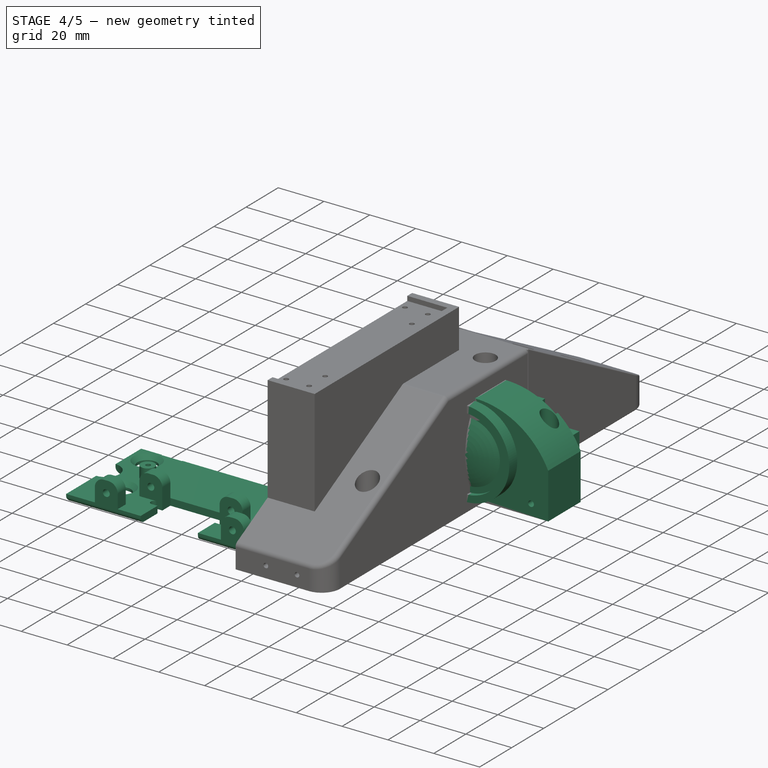
[diagram: stage 4 of 5 — iso view after this stage's code; geometry added in this stage tinted green]
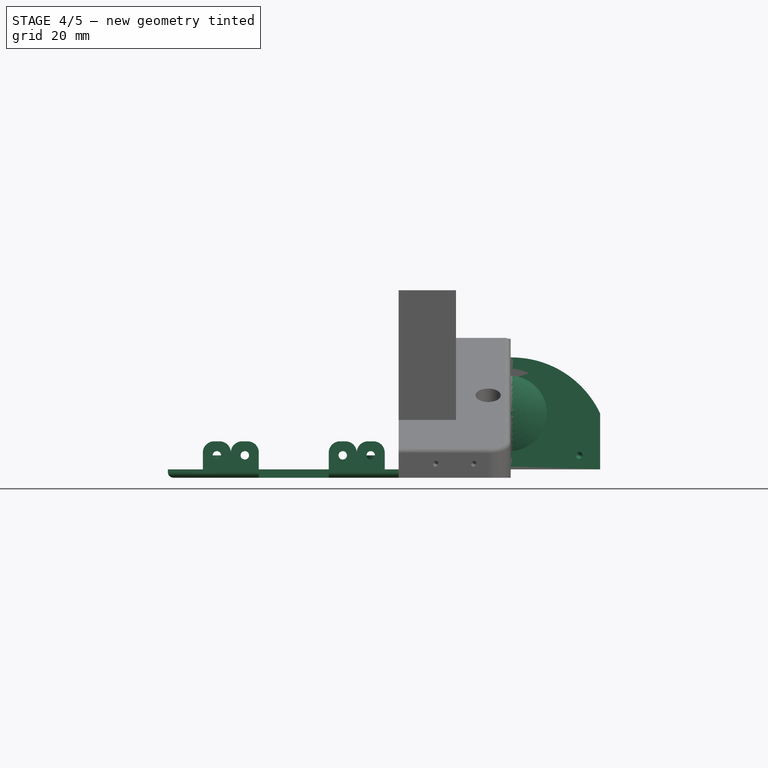
[diagram: stage 4 of 5 — front view after this stage's code; geometry added in this stage tinted green]
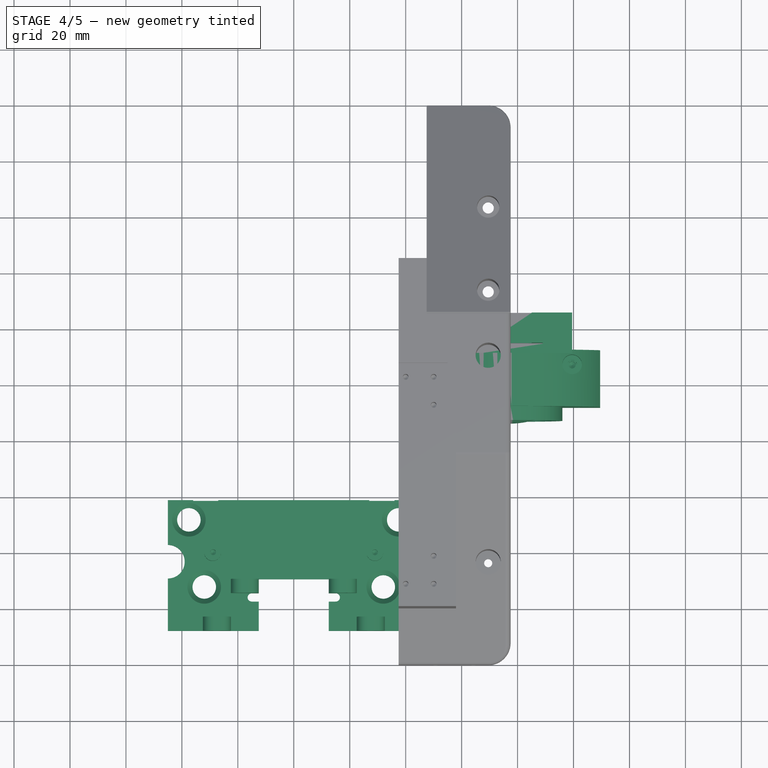
[diagram: stage 4 of 5 — top view after this stage's code; geometry added in this stage tinted green]
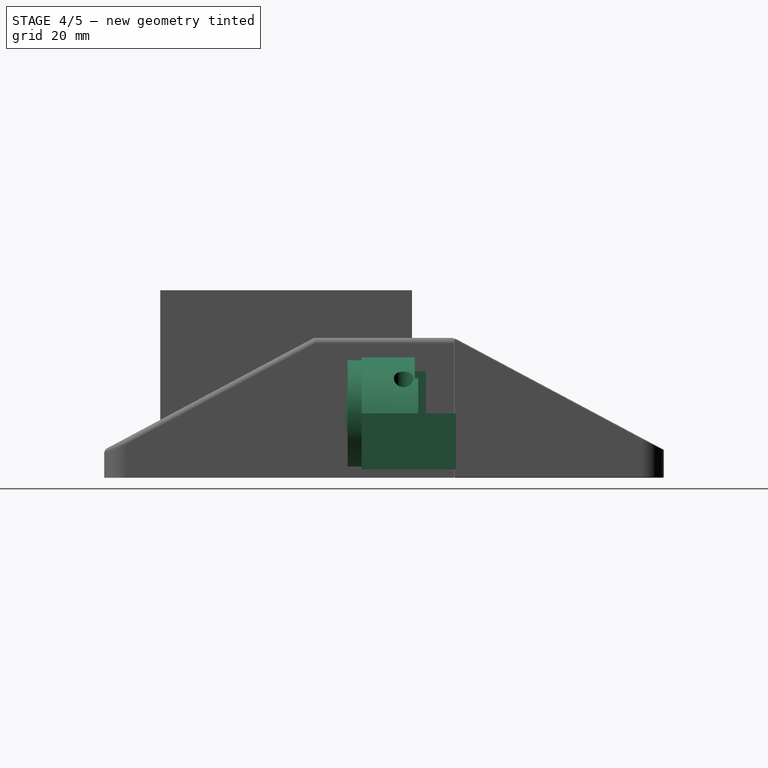
[diagram: stage 4 of 5 — right view after this stage's code; geometry added in this stage tinted green]
FEATURE [Part::Feature] Feature001  label="Gear Housing"
  shape: bbox 38.4 x 22.4 x 31.2 mm, 69 faces (baked)
FEATURE [Part::Feature] Part__Feature055  label="BevelGearMessing (1)"
  shape: bbox 12.21 x 7.515 x 12.21 mm, 126 faces (baked)
FEATURE [App::Part] GearSketch_v6  label="GearSketch v6"
  Group = -> [Part__Feature055]
  Origin = -> Origin005
FEATURE [App::Part] Part001  label="Gearbox"
  Group = -> [Feature001,GearSketch_v6]
  Origin = -> Origin001
FEATURE [Part::Feature] Part__Feature064  label="sprocket_collar"
  shape: bbox 35 x 8.4 x 10 mm, 5 faces (baked)
FEATURE [App::Part] sprocket_collar_v1  label="sprocket_collar v1"
  Group = -> [Part__Feature064]
  Origin = -> Origin009
FEATURE [Part::Feature] Part__Feature065  label="tank_chassis_motor v6"
  shape: bbox 29 x 29 x 82.2 mm, 13 faces (baked)
FEATURE [Part::Feature] Part__Feature068  label="Axel"
  shape: bbox 4 x 4 x 55.4 mm, 3 faces (baked)
FEATURE [Part::Feature] Part__Feature126  label="FrontLeftPeg"
  Placement = pos=(-32,-72,-1.8) rot=(0.57735,0.57735,0.57735;4.18879rad)
  shape: bbox 11.6 x 11.6 x 8 mm, 7 faces (baked)
FEATURE [Part::Feature] Part__Feature182  label="PCB001"
  shape: bbox 25 x 24 x 2.4 mm, 92 faces, 14 solids (baked)
FEATURE [Part::Feature] Part__Feature183  label="Zif Connector001"
  shape: bbox 21.9 x 5.5 x 2.4 mm, 11 faces (baked)
FEATURE [Part::Feature] Part__Feature184  label="Camera Lense001"
  shape: bbox 8 x 8 x 5.65 mm, 30 faces, 2 solids (baked)
FEATURE [Part::Feature] Part__Feature185  label="Camera PCB connector001"
  shape: bbox 9.18 x 7.764 x 1.5 mm, 19 faces (baked)
FEATURE [App::Part] RPi_Camera_Module_v003
  Group = -> [Part__Feature182,Part__Feature183,Part__Feature184,Part__Feature185]
  Origin = -> Origin026
  Placement = pos=(134.5,20,-13.5) rot=(0,0,1;0rad)
FEATURE [App::Part] RPi_Camera_Module_v2_v003  label="RPi_Camera_Module_v2 v003"
  Group = -> [RPi_Camera_Module_v003]
  Origin = -> Origin027
  Placement = pos=(-57,0,9) rot=(1,0,0;1.5708rad)
FEATURE [Part::Feature] Part__Feature186  label="COMPOUND005"
  shape: bbox 35 x 35 x 20 mm, 11 faces, 2 solids (baked)
FEATURE [Part::Feature] Part__Feature187  label="OuterBoltR"
  Placement = pos=(49.5,17.25,12) rot=(-1,0,0;1.5708rad)
  shape: bbox 5.413 x 8.27 x 5.413 mm, 58 faces (baked)
FEATURE [Part::Feature] Part__Feature188  label="OuterBoltL"
  Placement = pos=(59.5,30.75,12) rot=(-1,0,0;1.5708rad)
  shape: bbox 5.413 x 8.27 x 5.413 mm, 58 faces (baked)
FEATURE [Part::Feature] Part__Feature189  label="COMPOUND006"
  shape: bbox 65 x 40 x 38.75 mm, 90 faces, 2 solids (baked)
FEATURE [Part::Feature] Part__Feature190  label="Anker_usb_battery v002"
  Placement = pos=(45.5573,-22,-209.337) rot=(0,0,1;0rad)
  shape: bbox 64.32 x 23.32 x 91 mm, 26 faces (baked)
FEATURE [Part::Feature] Part__Feature191  label="Clip001"
  Placement = pos=(-0.283603,-0.95767,1.9e-14) rot=(0,0,1;0.026977rad)
  shape: bbox 35.26 x 10.95 x 4.406 mm, 40 faces (baked)
FEATURE [Part::Feature] Part__Feature192  label="SOLID003"
  shape: bbox 24.7 x 20.6 x 95.22 mm, 63 faces (baked)
FEATURE [App::Part] USBBatteryGuide001
  Group = -> [Part__Feature191,Part__Feature192]
  Origin = -> Origin030
FEATURE [Part::Feature] Part__Feature193  label="91290A150"
  Placement = pos=(43,-6.4,-142) rot=(1,0,0;1.5708rad)
  shape: bbox 7 x 18.15 x 7 mm, 63 faces (baked)
FEATURE [Part::Feature] Part__Feature194  label="Clip(Mirror)"
  Placement = pos=(1.78e-14,-0.0177015,-0.8) rot=(0,0,1;0rad)
  shape: bbox 35.01 x 10.01 x 4.406 mm, 40 faces (baked)
FEATURE [Part::Feature] Part__Feature195  label="SOLID004"
  shape: bbox 24.7 x 20.6 x 95.22 mm, 63 faces (baked)
FEATURE [App::Part] USBBatteryGuide_Mirror_  label="USBBatteryGuide(Mirror)"
  Group = -> [Part__Feature194,Part__Feature195]
  Origin = -> Origin031
  Placement = pos=(154,1.43324,1.581e-13) rot=(0,1,0;3.14159rad)
FEATURE [Part::Feature] Part__Feature196  label="91290A150(Mirror)"
  Placement = pos=(111,-7.21,-142) rot=(0,0.707107,0.707107;3.14159rad)
  shape: bbox 7 x 18.15 x 7 mm, 63 faces (baked)
FEATURE [Part::Feature] Part__Feature197  label="RearLeftPeg"
  Placement = pos=(37.5,-48,-1.8) rot=(0.57735,0.57735,0.57735;4.18879rad)
  shape: bbox 11.6 x 11.6 x 8 mm, 7 faces (baked)
FEATURE [Part::Feature] Part__Feature198  label="FrontRightPeg"
  Placement = pos=(32,-72,-1.8) rot=(0.57735,0.57735,0.57735;4.18879rad)
  shape: bbox 11.6 x 11.6 x 8 mm, 7 faces (baked)
FEATURE [Part::Feature] Part__Feature199  label="RearRightPeg"
  Placement = pos=(-37.5,-48,-1.8) rot=(0.57735,0.57735,0.57735;4.18879rad)
  shape: bbox 11.6 x 11.6 x 8 mm, 7 faces (baked)
FEATURE [Part::Feature] Part__Feature200  label="Lower Plate001"
  Placement = pos=(-77,-100,-1) rot=(1,0,0;1.5708rad)
  shape: bbox 100 x 77 x 44.8 mm, 100 faces, 3 solids (baked)
FEATURE [Part::Feature] Part__Feature201  label="rough_6xaa v4"
  Placement = pos=(-183,0,0) rot=(1,0,0;3.14159rad)
  shape: bbox 94 x 17 x 58 mm, 11 faces (baked)
FEATURE [Part::Feature] Part__Feature202  label="atmega328 v004"
  Placement = pos=(41.1301,1.6,5.80316) rot=(0,1,0;0.785398rad)
  shape: bbox 11.39 x 1.205 x 11.39 mm, 1866 faces (baked)
FEATURE [Part::Feature] Part__Feature203  label="Board002"
  Placement = pos=(2e-15,5e-15,2.9e-14) rot=(0,0,1;0rad)
  shape: bbox 125 x 1.8 x 30 mm, 42 faces (baked)
FEATURE [Part::Feature] Part__Feature204  label="4232_002"
  Placement = pos=(12.828,133.767,55.9316) rot=(0,0,1;3.14159rad)
  shape: bbox 9.906 x 12.3 x 6.084 mm, 126 faces, 9 solids (baked)
FEATURE [App::Part] __Pin_right_angle_header001  label="4 Pin right angle header001"
  Group = -> [Part__Feature204]
  Origin = -> Origin032
  Placement = pos=(0,-9e-16,-1.6e-15) rot=(0,0,1;0rad)
FEATURE [App::Part] __pin_right_angle_header_v003  label="4 pin right angle header v003"
  Group = -> [__Pin_right_angle_header001]
  Origin = -> Origin033
  Placement = pos=(-77,58.7,10.388) rot=(0.57735,0.57735,-0.57735;2.0944rad)
FEATURE [Part::Feature] Part__Feature205  label="741050003_4pin v002"
  Placement = pos=(-43,4.14,17.715) rot=(0,0,1;0rad)
  shape: bbox 12.7 x 6.985 x 16.76 mm, 201 faces (baked)
FEATURE [Part::Feature] Part__Feature206  label="TCR5000 v006"
  Placement = pos=(-36.2,1.6e-13,-8) rot=(1,0,0;1.5708rad)
  shape: bbox 5.6 x 6.9 x 10 mm, 26 faces (baked)
FEATURE [Part::Feature] Part__Feature207  label="TCR5000 v007"
  Placement = pos=(-0.2,-9e-15,-8) rot=(1,0,0;1.5708rad)
  shape: bbox 5.6 x 6.9 x 10 mm, 26 faces (baked)
FEATURE [Part::Feature] Part__Feature208  label="TCR5000 v008"
  Placement = pos=(-18.2,2.7e-14,-8) rot=(1,0,0;1.5708rad)
  shape: bbox 5.6 x 6.9 x 10 mm, 26 faces (baked)
FEATURE [Part::Feature] Part__Feature209  label="TCR5000 v009"
  Placement = pos=(18.2,1.07e-13,-8) rot=(1,0,0;1.5708rad)
  shape: bbox 5.6 x 6.9 x 10 mm, 26 faces (baked)
FEATURE [Part::Feature] Part__Feature210  label="TCR5000 v010"
  Placement = pos=(36.2,7.99e-14,-8) rot=(1,0,0;1.5708rad)
  shape: bbox 5.6 x 6.9 x 10 mm, 26 faces (baked)
FEATURE [App::Part] SunFounder_Line_Follower_v008  label="SunFounder Line Follower v008"
  Group = -> [Part__Feature202,Part__Feature203,__pin_right_angle_header_v003,Part__Feature205,Part__Feature206,Part__Feature207,Part__Feature208,Part__Feature209,Part__Feature210]
  Origin = -> Origin034
  Placement = pos=(77,-58.7,-33.388) rot=(0,0,1;0rad)
FEATURE [Part::Feature] Part__Feature211  label="LineSensorSlider001"
  Placement = pos=(0,2,-1.3e-14) rot=(0,0,1;0rad)
  shape: bbox 96 x 36 x 11.22 mm, 28 faces (baked)
FEATURE [Part::Feature] Part__Feature212  label="PinoonChopBloc v005"
  Placement = pos=(76.7763,-16,4e-15) rot=(1,0,0;3.14159rad)
  shape: bbox 40 x 18 x 25 mm, 48 faces (baked)
FEATURE [App::Part] Part  label="LineFollowerAssembly"
  Group = -> [SunFounder_Line_Follower_v008,Part__Feature211]
  Origin = -> Origin038
  Placement = pos=(77.3593,-59.5519,-1.00132) rot=(0,-0.707107,-0.707107;3.14159rad)
FEATURE [Part::FeaturePython] Part__Feature189_child0  label="CameraMountBase"  # WARN: FeaturePython — macro-defined, semantics opaque (R4)
  Base = -> Part__Feature189
  FilterType = 1
  Invert = false
  OverrideMaxVal = 0
  Placement = pos=(0,0,0) rot=(1,0,0;1.5708rad)
  WindowFrom = 80
  WindowTo = 100
  items = 0
FEATURE [Part::FeaturePython] Part__Feature189_child1  label="CameraMountCover"  # WARN: FeaturePython — macro-defined, semantics opaque (R4)
  Base = -> Part__Feature189
  FilterType = 1
  Invert = false
  OverrideMaxVal = 0
  Placement = pos=(0,0,0) rot=(1,0,0;1.5708rad)
  WindowFrom = 80
  WindowTo = 100
  items = 1
FEATURE [App::DocumentObjectGroup] GrExplode_Part__Feature189  label="CameraMount"
  Group = -> [Part__Feature189_child0,Part__Feature189_child1]
FEATURE [Part::FeaturePython] Part__Feature186_child0  label="LensRim"  # WARN: FeaturePython — macro-defined, semantics opaque (R4)
  Base = -> Part__Feature186
  FilterType = 1
  Invert = false
  OverrideMaxVal = 0
  Placement = pos=(77,-11,26) rot=(-1,0,0;1.5708rad)
  WindowFrom = 80
  WindowTo = 100
  items = 0
FEATURE [Part::FeaturePython] Part__Feature186_child1  label="FrontLens"  # WARN: FeaturePython — macro-defined, semantics opaque (R4)
  Base = -> Part__Feature186
  FilterType = 1
  Invert = false
  OverrideMaxVal = 0
  Placement = pos=(77,-11,26) rot=(-1,0,0;1.5708rad)
  WindowFrom = 80
  WindowTo = 100
  items = 1
FEATURE [App::Link] Link005  label="YukonRLeftStandoff"
  LinkPlacement = pos=(-30.5,49,13) rot=(0,0,1;0rad)
  LinkedObject = -> Body009
  Placement = pos=(-30.5,49,13) rot=(0,0,1;0rad)
FEATURE [App::Link] Link006  label="YukonRRightStandoff"
  LinkPlacement = pos=(30.5,49,13) rot=(0,0,1;0rad)
  LinkedObject = -> Body009
  Placement = pos=(30.5,49,13) rot=(0,0,1;0rad)
FEATURE [App::Link] Link007  label="YukonFLeftStandOff"
  LinkPlacement = pos=(-30.5,-29,13) rot=(0,0,1;0rad)
  LinkedObject = -> Body009
  Placement = pos=(-30.5,-29,13) rot=(0,0,1;0rad)
FEATURE [App::Link] Link008  label="YukonFRightStandoff"
  LinkPlacement = pos=(30.5,-29,13) rot=(0,0,1;0rad)
  LinkedObject = -> Body009
  Placement = pos=(30.5,-29,13) rot=(0,0,1;0rad)
FEATURE [App::DocumentObjectGroupPython] ExplodedAssembly  # scripted group (container) (typed FeaturePython)
  AnimationStep = 0
  CurrentTrajectory = 0
  InAnimation = false
  RemoveAllTrajectories = false
  ResetAnimation = false
FEATURE [Part::Box] Box  label="Cube"
  AttacherType = Attacher::AttachEngine3D
  Height = 20
  Length = 100
  Placement = pos=(-50,-41,0) rot=(0,0,1;0rad)
  Width = 80
FEATURE [Part::Cut] Cut
  Base = -> Part__Feature
  Tool = -> Box
FEATURE [Part::Box] Box001  label="Cube001"
  AttacherType = Attacher::AttachEngine3D
  Height = 3
  Length = 50
  Placement = pos=(-25,-69,3) rot=(0,0,1;0rad)
  Width = 28
FEATURE [Part::MultiFuse] Fusion
  Refine = true
  Shapes = -> [Cut,Box001]
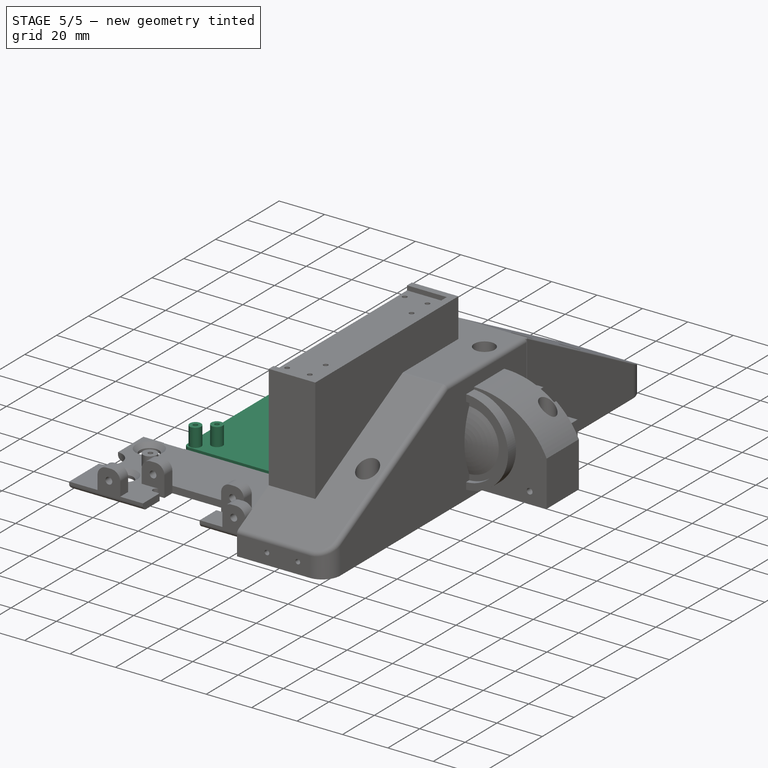
[diagram: stage 5 of 5 — iso view after this stage's code; geometry added in this stage tinted green]
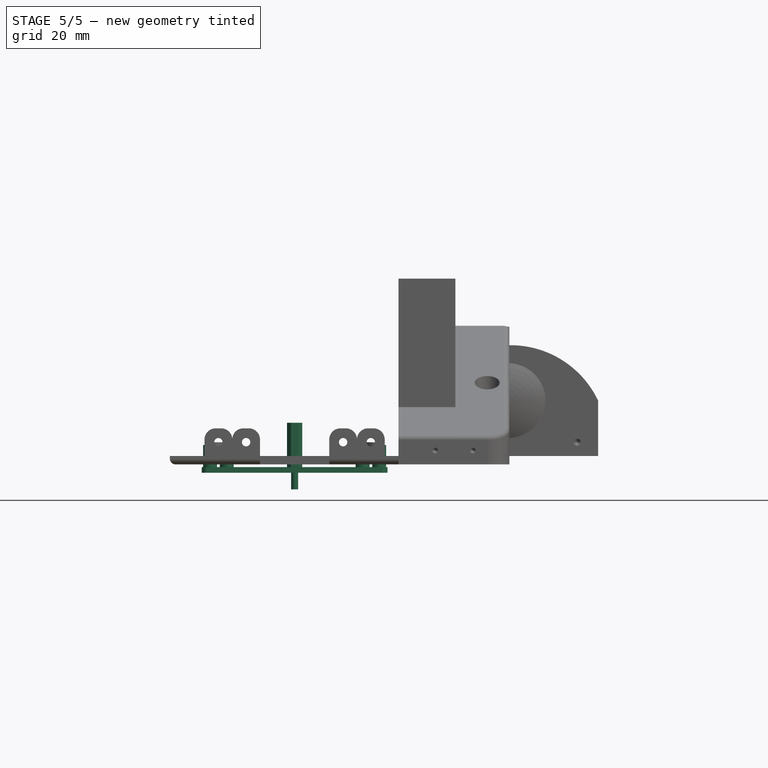
[diagram: stage 5 of 5 — front view after this stage's code; geometry added in this stage tinted green]
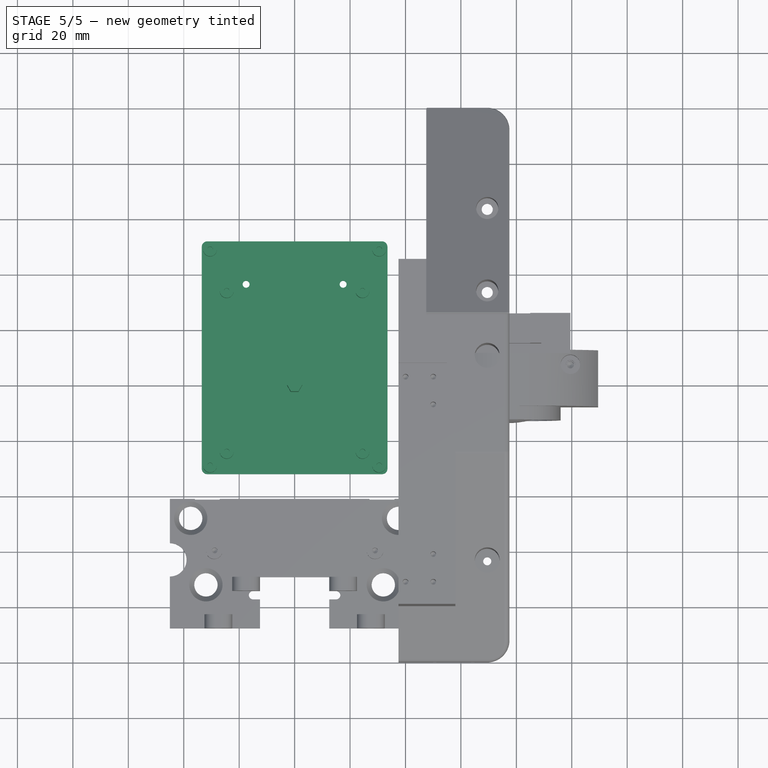
[diagram: stage 5 of 5 — top view after this stage's code; geometry added in this stage tinted green]
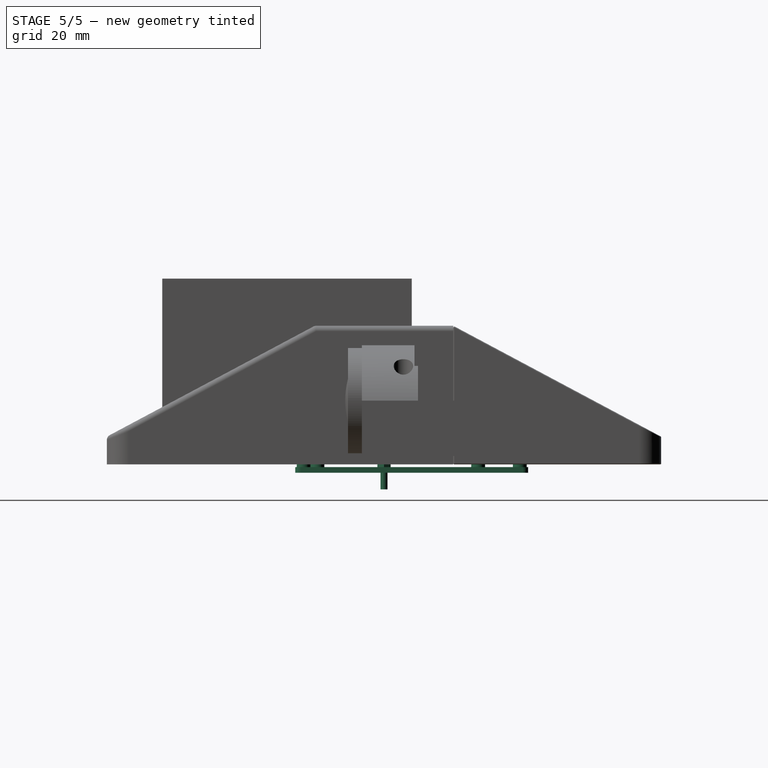
[diagram: stage 5 of 5 — right view after this stage's code; geometry added in this stage tinted green]
FEATURE [Sketcher::SketchObject] Sketch030  label="M25StandoffBodySketch"
  FullyConstrained = true
  MapMode = 5
  Support = -> [XY_Plane052]
  sketch-geometry (7):
    g0: LineSegment StartX=1.37121 StartY=-2.375 StartZ=0 EndX=2.74241 EndY=0 EndZ=0
    g1: LineSegment StartX=2.74241 StartY=0 StartZ=0 EndX=1.37121 EndY=2.375 EndZ=0
    g2: LineSegment StartX=1.37121 StartY=2.375 StartZ=0 EndX=-1.37121 EndY=2.375 EndZ=0
    g3: LineSegment StartX=-1.37121 StartY=2.375 StartZ=0 EndX=-2.74241 EndY=0 EndZ=0
    g4: LineSegment StartX=-2.74241 StartY=0 StartZ=0 EndX=-1.37121 EndY=-2.375 EndZ=0
    g5: LineSegment StartX=-1.37121 StartY=-2.375 StartZ=0 EndX=1.37121 EndY=-2.375 EndZ=0
    g6: Circle CenterX=0 CenterY=0 CenterZ=0 NormalX=0 NormalY=0 NormalZ=1 AngleXU=0 Radius=2.74241
  constraints (16):
    c: Coincident(g0,g1)
    c: Coincident(g1,g2)
    c: Coincident(g2,g3)
    c: Coincident(g3,g4)
    c: Coincident(g4,g5)
    c: Coincident(g5,g0)
    c: Equal(g0, g1-g5) x5
    c: PointOnObject(g0,g6)
    c: PointOnObject(g1,g6)
    c: PointOnObject(g2,g6)
    c: PointOnObject(g3,g6)
    c: PointOnObject(g4,g6)
    c: PointOnObject(g5,g6)
    c: Coincident(g6,g-1)
    c: PointOnObject(g0,g-1)
    c: DistanceY(g4,g2) = 4.75
FEATURE [PartDesign::Pad] Pad012  label="M25StandoffBody"
  Direction = (0,0,1)
  Length = 18
  Length2 = 10
  Profile = -> Sketch030
  ReferenceAxis = -> Sketch030 [N_Axis]
  Type = 0
FEATURE [Sketcher::SketchObject] Sketch031  label="M25StandoffThreadSketch"
  FullyConstrained = true
  MapMode = 5
  Placement = pos=(0,0,0) rot=(1,0,0;3.14159rad)
  Support = -> [Pad012]
  sketch-geometry (1):
    g0: Circle CenterX=0 CenterY=0 CenterZ=0 NormalX=0 NormalY=0 NormalZ=1 AngleXU=0 Radius=1.25
  constraints (2):
    c: Coincident(g0,g-1)
    c: Diameter(g0) = 2.5
FEATURE [PartDesign::Pad] Pad013  label="M25StandoffThread"
  BaseFeature = -> Pad012
  Direction = (0,0,-1)
  Length = 6
  Length2 = 10
  Profile = -> Sketch031
  ReferenceAxis = -> Sketch031 [N_Axis]
  Type = 0
FEATURE [PartDesign::Body] Body009  label="M25StandOff"
  Group = -> [Sketch030,Pad012,Sketch031,Pad013]
  Origin = -> Origin052
  Tip = -> Pad013
FEATURE [App::Part] Part008  label="CameraAssembly2"
  Group = -> [Part__Feature189,Part__Feature189_child1,Part__Feature189_child0,RPi_Camera_Module_v2_v003,GrExplode_Part__Feature189,Part__Feature188,Part__Feature187,pimoroni_super_wide_angle_lens_v005]
  Origin = -> Origin054
  Placement = pos=(-77,-100,-1) rot=(0,0,1;0rad)
FEATURE [App::Link] Link  label="RaspberryPi3A+ v8"
  LinkPlacement = pos=(2.59849e-05,5.99996,13) rot=(0.57735,-0.57735,-0.57735;2.0944rad)
  LinkedObject = -> <external RaspberryPi3a+.FCStd>#RaspberryPi3A__v8
  Placement = pos=(2.59849e-05,5.99996,13) rot=(0.57735,-0.57735,-0.57735;2.0944rad)
FEATURE [App::DocumentObjectGroup] Parts
  Group = -> [Part,Part005,Part__Feature193,Part__Feature196,Part__Feature200]
FEATURE [Part::Feature] Part__Feature  label="PiPlate v3"
  Placement = pos=(0,-45.25,3) rot=(1,0,0;1.5708rad)
  shape: bbox 90 x 85 x 13 mm, 149 faces (baked)
FEATURE [App::Link] Link001  label="ChassisPlate"
  LinkedObject = -> <external BigOleYellowChassisPlate.FCStd>#Body011
FEATURE [App::Link] Link002  label="Yukon"
  LinkPlacement = pos=(6.79493e-06,9.49999,31) rot=(0,0,-1;1.5708rad)
  LinkedObject = -> <external YukonBoard.FCStd>#Body008
  Placement = pos=(6.79493e-06,9.49999,31) rot=(0,0,-1;1.5708rad)
FEATURE [App::Link] Link003  label="RaspberryPiSheet"
  LinkedObject = -> <external RaspberryPi3a+.FCStd>#Spreadsheet001
FEATURE [App::Link] Link004  label="YukonSheet"
  LinkedObject = -> <external YukonBoard.FCStd>#Spreadsheet
FEATURE [Sketcher::SketchObject] Sketch032  label="YukonPiMountBaseSketch"
  FullyConstrained = true
  MapMode = 5
  Support = -> [XY_Plane057]
  expr: Constraints[10] = <<YukonSheet>>.length / 2 + <<chassis_spreadsheet>>.yukon_pi_y_offset
  expr: Constraints[7] = <<YukonSheet>>.length
  expr: Constraints[8] = <<YukonSheet>>.width
  sketch-geometry (4):
    g0: LineSegment StartX=-33.5 StartY=52 StartZ=0 EndX=33.5 EndY=52 EndZ=0
    g1: LineSegment StartX=33.5 StartY=52 StartZ=0 EndX=33.5 EndY=-32 EndZ=0
    g2: LineSegment StartX=33.5 StartY=-32 StartZ=0 EndX=-33.5 EndY=-32 EndZ=0
    g3: LineSegment StartX=-33.5 StartY=-32 StartZ=0 EndX=-33.5 EndY=52 EndZ=0
  constraints (11):
    c: Coincident(g0,g1)
    c: Coincident(g1,g2)
    c: Coincident(g2,g3)
    c: Coincident(g3,g0)
    c: Horizontal(g2)
    c: Vertical(g1)
    c: Vertical(g3)
    c: DistanceY(g1,g1) = 84
    c: DistanceX(g0,g0) = 67
    c: Symmetric(g0,g0,g-2)
    c: DistanceY(g-1,g0) = 52
FEATURE [PartDesign::Pad] Pad014  label="YukonPiMountBase"
  Direction = (0,0,1)
  Length = 2
  Length2 = 10
  Profile = -> Sketch032
  ReferenceAxis = -> Sketch032 [N_Axis]
  Type = 0
  expr: Length = <<chassis_spreadsheet>>.plate_thickness
FEATURE [Sketcher::SketchObject] Sketch033  label="YukonPiMountOuterDiamondSketch"
  FullyConstrained = true
  MapMode = 5
  Placement = pos=(0,0,2) rot=(0,0,1;0rad)
  Support = -> [Pad014]
  expr: Constraints[2] = <<chassis_spreadsheet>>.diamond_small_diam
  expr: Constraints[3] = <<chassis_spreadsheet>>.diamond_outer_pair_dist
  sketch-geometry (2):
    g0: Circle CenterX=-17.5 CenterY=36.5 CenterZ=0 NormalX=0 NormalY=0 NormalZ=1 AngleXU=0 Radius=1.25
    g1: Circle CenterX=17.5 CenterY=36.5 CenterZ=0 NormalX=0 NormalY=0 NormalZ=1 AngleXU=0 Radius=1.25
  constraints (5):
    c: Equal(g1,g0)
    c: Symmetric(g0,g1,g-2)
    c: Diameter(g1) = 2.5
    c: DistanceX(g0,g1) = 35
    c: DistanceY(g-1,g0) = 36.5
FEATURE [PartDesign::Pocket] Pocket  label="YukonPiMountOuterDiamondHoles"
  BaseFeature = -> Pad014
  Direction = (0,0,-1)
  Length = 5
  Length2 = 5
  Profile = -> Sketch033
  ReferenceAxis = -> Sketch033 [N_Axis]
  Type = 1
FEATURE [Sketcher::SketchObject] Sketch034  label="YukonPiMountYukonBossSketch"
  FullyConstrained = true
  MapMode = 5
  Placement = pos=(0,0,2) rot=(0,0,1;0rad)
  Support = -> [Pocket]
  expr: Constraints[12] = <<chassis_spreadsheet>>.yukon_pi_y_offset
  expr: Constraints[5] = <<chassis_spreadsheet>>.m25_boss_diameter
  expr: Constraints[6] = <<YukonSheet>>.width_spacing
  expr: Constraints[7] = <<YukonSheet>>.length_spacing
  sketch-geometry (5):
    g0: Circle CenterX=-30.5 CenterY=49 CenterZ=0 NormalX=0 NormalY=0 NormalZ=1 AngleXU=0 Radius=2.5
    g1: Circle CenterX=-30.5 CenterY=-29 CenterZ=0 NormalX=0 NormalY=0 NormalZ=1 AngleXU=0 Radius=2.5
    g2: Circle CenterX=30.5 CenterY=49 CenterZ=0 NormalX=0 NormalY=0 NormalZ=1 AngleXU=0 Radius=2.5
    g3: Circle CenterX=30.5 CenterY=-29 CenterZ=0 NormalX=0 NormalY=0 NormalZ=1 AngleXU=0 Radius=2.5
    g4: LineSegment StartX=-30.5 StartY=10 StartZ=0 EndX=30.5 EndY=10 EndZ=0
  constraints (13):
    c: Symmetric(g2,g0,g-2)
    c: Symmetric(g1,g3,g-2)
    c: Equal(g1,g0)
    c: Equal(g0,g2)
    c: Equal(g2,g3)
    c: Diameter(g2) = 5
    c: DistanceX(g0,g2) = 61
    c: DistanceY(g3,g2) = 78
    c: Horizontal(g4)
    c: Vertical(g4,g2)
    c: Vertical(g4,g0)
    c: Symmetric(g2,g3,g4)
    c: DistanceY(g-1,g4) = 10
FEATURE [PartDesign::Pad] Pad015  label="YukonPiMountYukonBoss"
  BaseFeature = -> Pocket
  Direction = (0,0,1)
  Length = 8
  Length2 = 10
  Profile = -> Sketch034
  ReferenceAxis = -> Sketch034 [N_Axis]
  Type = 0
  expr: Length = <<chassis_spreadsheet>>.boss_height
FEATURE [Sketcher::SketchObject] Sketch035  label="YukonPiMountPiBossSketch"
  FullyConstrained = true
  MapMode = 5
  Placement = pos=(0,0,2) rot=(0,0,1;0rad)
  Support = -> [Pad015]
  expr: Constraints[5] = <<chassis_spreadsheet>>.m25_boss_diameter
  expr: Constraints[6] = <<RaspberryPiSheet>>.width_between_holes
  expr: Constraints[8] = <<RaspberryPiSheet>>.length_between_holes
  sketch-geometry (4):
    g0: Circle CenterX=-24.5 CenterY=34 CenterZ=0 NormalX=0 NormalY=0 NormalZ=1 AngleXU=0 Radius=2.5
    g1: Circle CenterX=24.5 CenterY=34 CenterZ=0 NormalX=0 NormalY=0 NormalZ=1 AngleXU=0 Radius=2.5
    g2: Circle CenterX=-24.5 CenterY=-24 CenterZ=0 NormalX=0 NormalY=0 NormalZ=1 AngleXU=0 Radius=2.5
    g3: Circle CenterX=24.5 CenterY=-24 CenterZ=0 NormalX=0 NormalY=0 NormalZ=1 AngleXU=0 Radius=2.5
  constraints (10):
    c: Symmetric(g0,g1,g-2)
    c: Symmetric(g2,g3,g-2)
    c: Equal(g0,g1)
    c: Equal(g1,g3)
    c: Equal(g3,g2)
    c: Diameter(g0) = 5
    c: DistanceX(g0,g1) = 49
    c: Vertical(g1,g3)
    c: DistanceY(g3,g1) = 58
    c: DistanceY(g2,g-1) = 24
FEATURE [PartDesign::Pad] Pad016  label="YukonPiMountPiBoss"
  BaseFeature = -> Pad015
  Direction = (0,0,1)
  Length = 8
  Length2 = 10
  Profile = -> Sketch035
  ReferenceAxis = -> Sketch035 [N_Axis]
  Type = 0
  expr: Length = <<chassis_spreadsheet>>.boss_height
FEATURE [Sketcher::SketchObject] Sketch036  label="YukonPimountThreadSketch"
  ExternalGeometry = -> [Pad016]
  FullyConstrained = true
  MapMode = 5
  Placement = pos=(0,0,10) rot=(0,0,1;0rad)
  Support = -> [Pad016]
  expr: Constraints[15] = <<chassis_spreadsheet>>.m25_thread_diam
  sketch-geometry (8):
    g0: Circle CenterX=-30.5 CenterY=49 CenterZ=0 NormalX=0 NormalY=0 NormalZ=1 AngleXU=0 Radius=1
    g1: Circle CenterX=-24.5 CenterY=34 CenterZ=0 NormalX=0 NormalY=0 NormalZ=1 AngleXU=0 Radius=1
    g2: Circle CenterX=30.5 CenterY=49 CenterZ=0 NormalX=0 NormalY=0 NormalZ=1 AngleXU=0 Radius=1
    g3: Circle CenterX=24.5 CenterY=34 CenterZ=0 NormalX=0 NormalY=0 NormalZ=1 AngleXU=0 Radius=1
    g4: Circle CenterX=30.5 CenterY=-29 CenterZ=0 NormalX=0 NormalY=0 NormalZ=1 AngleXU=0 Radius=1
    g5: Circle CenterX=24.5 CenterY=-24 CenterZ=0 NormalX=0 NormalY=0 NormalZ=1 AngleXU=0 Radius=1
    g6: Circle CenterX=-24.5 CenterY=-24 CenterZ=0 NormalX=0 NormalY=0 NormalZ=1 AngleXU=0 Radius=1
    g7: Circle CenterX=-30.5 CenterY=-29 CenterZ=0 NormalX=0 NormalY=0 NormalZ=1 AngleXU=0 Radius=1
  constraints (16):
    c: Coincident(g0,g-3)
    c: Coincident(g1,g-4)
    c: Coincident(g2,g-5)
    c: Coincident(g3,g-6)
    c: Coincident(g5,g-8)
    c: Coincident(g6,g-9)
    c: Coincident(g7,g-10)
    c: Coincident(g4,g-7)
    c: Equal(g4,g5)
    c: Equal(g5,g7)
    c: Equal(g7,g6)
    c: Equal(g6,g1)
    c: Equal(g1,g3)
    c: Equal(g3,g2)
    c: Equal(g2,g0)
    c: Diameter(g0) = 2
FEATURE [PartDesign::Pocket] Pocket009  label="YukonPimountThread"
  BaseFeature = -> Pad016
  Direction = (0,0,-1)
  Length = 6
  Length2 = 5
  Profile = -> Sketch036
  ReferenceAxis = -> Sketch036 [N_Axis]
  Type = 0
  expr: Length = <<chassis_spreadsheet>>.m25_standoff_thread_length
FEATURE [Part::Feature] Part__Feature088  label="ImportedChassis"
  Placement = pos=(0,0,0) rot=(1,0,0;1.5708rad)
  shape: bbox 154 x 200 x 3 mm, 158 faces (baked)
FEATURE [Part::Feature] Part__Feature089  label="ChassisFront"
  Placement = pos=(0,0,0) rot=(1,0,0;1.5708rad)
  shape: bbox 109 x 8 x 30.45 mm, 10 faces (baked)
FEATURE [App::Part] ChassisBody_v26  label="ChassisBody"
  Group = -> [Part__Feature088,Part__Feature089]
  Origin = -> Origin017
  Placement = pos=(6.4e-14,1,-2.49e-14) rot=(1,0,0;0rad)
FEATURE [Sketcher::SketchObject] Sketch032
  FullyConstrained = true
  MapMode = 5
  Support = -> [XY_Plane057]
  expr: Constraints[26] = <<ChassisPlateSheet>>.corner_radius
  expr: Constraints[5] = <<ChassisPlateSheet>>.width
  expr: Constraints[6] = <<ChassisPlateSheet>>.length
  sketch-geometry (12):
    g0: LineSegment StartX=-69.5 StartY=100 StartZ=0 EndX=69.5 EndY=100 EndZ=0
    g1: LineSegment StartX=77.5 StartY=92 StartZ=0 EndX=77.5 EndY=-92 EndZ=0
    g2: LineSegment StartX=69.5 StartY=-100 StartZ=0 EndX=-69.5 EndY=-100 EndZ=0
    g3: LineSegment StartX=-77.5 StartY=-92 StartZ=0 EndX=-77.5 EndY=92 EndZ=0
    g4: ArcOfCircle CenterX=-69.5 CenterY=92 CenterZ=0 NormalX=0 NormalY=0 NormalZ=1 AngleXU=0 Radius=8 StartAngle=1.5708 EndAngle=3.14159
    g5: GeomPoint X=-77.5 Y=100 Z=0
    g6: ArcOfCircle CenterX=69.5 CenterY=92 CenterZ=0 NormalX=0 NormalY=0 NormalZ=1 AngleXU=0 Radius=8 StartAngle=5.01e-14 EndAngle=1.5708
    g7: GeomPoint X=77.5 Y=100 Z=0
    g8: ArcOfCircle CenterX=69.5 CenterY=-92 CenterZ=0 NormalX=0 NormalY=0 NormalZ=1 AngleXU=0 Radius=8 StartAngle=4.71239 EndAngle=6.28319
    g9: GeomPoint X=77.5 Y=-100 Z=0
    g10: ArcOfCircle CenterX=-69.5 CenterY=-92 CenterZ=0 NormalX=0 NormalY=0 NormalZ=1 AngleXU=0 Radius=8 StartAngle=3.14159 EndAngle=4.71239
    g11: GeomPoint X=-77.5 Y=-100 Z=0
  constraints (27):
    c: Horizontal(g0)
    c: Horizontal(g2)
    c: Vertical(g1)
    c: Vertical(g3)
    c: Symmetric(g9,g5,g-1)
    c: DistanceX(g5,g7) = 155
    c: DistanceY(g9,g7) = 200
    c: PointOnObject(g5,g3)
    c: PointOnObject(g5,g0)
    c: Tangent(g3,g4) = 1.5708
    c: Tangent(g0,g4) = 1.5708
    c: PointOnObject(g7,g0)
    c: PointOnObject(g7,g1)
    c: Tangent(g0,g6) = 1.5708
    c: Tangent(g1,g6) = 1.5708
    c: PointOnObject(g9,g1)
    c: PointOnObject(g9,g2)
    c: Tangent(g1,g8) = 1.5708
    c: Tangent(g2,g8) = 1.5708
    c: PointOnObject(g11,g2)
    c: PointOnObject(g11,g3)
    c: Tangent(g2,g10) = 1.5708
    c: Tangent(g3,g10) = 1.5708
    c: Equal(g10,g8)
    c: Equal(g8,g6)
    c: Equal(g6,g4)
    c: Radius(g4) = 8
FEATURE [Spreadsheet::Sheet] Spreadsheet001  label="ChassisPlateSheet"
  cells = A1='width; B1(width)==155 mm; D1='front_bracket_height; E1(front_bracket_height)==30 mm; H1='Outer Holes; K1='Inner Holes; A2='length; B2(length)==200 mm; D2='front_bracket_width; E2(front_bracket_width)==108 mm; H2='outer_hole_to_edge; I2(outer_hole_to_edge)==8 mm; K2='inner_hole_to_edge; L2(inner_hole_to_edge)==13 mm; A3='thickness; B3(thickness)==3 mm; H3='outer_hole_diameter; I3(outer_hole_diameter)==4 mm; K3='inner_hole_diameter; L3(inner_hole_diameter)==4 mm; A4='corner_radius; B4(corner_radius)==8 mm; H4='outer_hole_from_rear; I4(outer_hole_from_rear)==36.5 mm; K4='inner_hole_from_rear; L4(inner_hole_from_rear)==44 mm; H5='outer_hole_from_front; I5(outer_hole_from_front)==36.5 mm; K5='inner_hole_from_front; L5(inner_hole_from_front)==44 mm; H6='outer_hole_dist_fb; I6(outer_hole_dist_fb)==30 mm; K6='inner_hole_dist_fb; L6(inner_hole_dist_fb)==16 mm; H7='outer_hole_dist_w; I7(outer_hole_dist_w)==24 mm; K7='inner_hole_dist_w; L7(inner_hole_dist_w)==15 mm; A9='Peg Holes; D9='Mid Side Holes; H9='Diamond Holes; A10='peg_hole_diameter; B10(peg_hole_diameter)==8 mm; D10='mid_side_hole_diameter; E10(mid_side_hole_diameter)==15 mm; H10='diamond_front_pair_dist; I10(diamond_front_pair_dist)==20.5 mm; A11='peg_hole_to_front; B11(peg_hole_to_front)==24 mm + 4 mm; D11='mid_side_hole_edge_tangent; E11(mid_side_hole_edge_tangent)==25.5 mm; H11='diamond_small_diam; I11(diamond_small_diam)==2.5 mm; A12='front_peg_hole_distance; B12(front_peg_hole_distance)==56 mm + 8 mm; D12='mid_side_hole_rear_tangent; E12(mid_side_hole_rear_tangent)==93 mm; H12='diamond_outer_pair_dist; I12(diamond_outer_pair_dist)==35 mm; A13='front_peg_hole_to_rear_holes; B13(front_peg_hole_to_rear_holes)==24 mm; H13='diamond_inner_pair_dist; I13(diamond_inner_pair_dist)==6.5 mm; A14='rear_peg_hole_distance; B14(rear_peg_hole_distance)==67 mm + 8 mm; H14='diamond_outer_to_rear; I14(diamond_outer_to_rear)==63.5 mm
FEATURE [PartDesign::Pad] Pad014  label="ChassisPlatePad"
  Direction = (0,0,1)
  Length = 3
  Length2 = 10
  Profile = -> Sketch032
  ReferenceAxis = -> Sketch032 [N_Axis]
  Type = 0
  expr: Length = <<ChassisPlateSheet>>.thickness
FEATURE [Sketcher::SketchObject] Sketch
  ExternalGeometry = -> [Pad014]
  FullyConstrained = true
  MapMode = 5
  Placement = pos=(0,0,3) rot=(0,0,1;0rad)
  Support = -> [Pad014]
  expr: Constraints[16] = <<ChassisPlateSheet>>.outer_hole_from_front
  expr: Constraints[17] = <<ChassisPlateSheet>>.outer_hole_dist_fb
  expr: Constraints[18] = <<ChassisPlateSheet>>.outer_hole_diameter
  expr: Constraints[19] = <<ChassisPlateSheet>>.outer_hole_dist_w
  expr: Constraints[20] = <<ChassisPlateSheet>>.outer_hole_to_edge
  expr: Constraints[21] = <<ChassisPlateSheet>>.outer_hole_from_rear
  expr: Constraints[22] = <<ChassisPlateSheet>>.outer_hole_dist_fb
  sketch-geometry (16):
    g0: Circle CenterX=-69.5 CenterY=63.5 CenterZ=0 NormalX=0 NormalY=0 NormalZ=1 AngleXU=0 Radius=2
    g1: Circle CenterX=-69.5 CenterY=33.5 CenterZ=0 NormalX=0 NormalY=0 NormalZ=1 AngleXU=0 Radius=2
    g2: Circle CenterX=-45.5 CenterY=63.5 CenterZ=0 NormalX=0 NormalY=0 NormalZ=1 AngleXU=0 Radius=2
    g3: Circle CenterX=-45.5 CenterY=33.5 CenterZ=0 NormalX=0 NormalY=0 NormalZ=1 AngleXU=0 Radius=2
    g4: Circle CenterX=-69.5 CenterY=-33.5 CenterZ=0 NormalX=0 NormalY=0 NormalZ=1 AngleXU=0 Radius=2
    g5: Circle CenterX=-45.5 CenterY=-33.5 CenterZ=0 NormalX=0 NormalY=0 NormalZ=1 AngleXU=0 Radius=2
    g6: Circle CenterX=-69.5 CenterY=-63.5 CenterZ=0 NormalX=0 NormalY=0 NormalZ=1 AngleXU=0 Radius=2
    g7: Circle CenterX=-45.5 CenterY=-63.5 CenterZ=0 NormalX=0 NormalY=0 NormalZ=1 AngleXU=0 Radius=2
    g8: Circle CenterX=69.5 CenterY=63.5 CenterZ=0 NormalX=0 NormalY=0 NormalZ=1 AngleXU=0 Radius=2
    g9: Circle CenterX=69.5 CenterY=33.5 CenterZ=0 NormalX=0 NormalY=0 NormalZ=1 AngleXU=0 Radius=2
    g10: Circle CenterX=45.5 CenterY=63.5 CenterZ=0 NormalX=0 NormalY=0 NormalZ=1 AngleXU=0 Radius=2
    g11: Circle CenterX=45.5 CenterY=33.5 CenterZ=0 NormalX=0 NormalY=0 NormalZ=1 AngleXU=0 Radius=2
    g12: Circle CenterX=69.5 CenterY=-33.5 CenterZ=0 NormalX=0 NormalY=0 NormalZ=1 AngleXU=0 Radius=2
    g13: Circle CenterX=45.5 CenterY=-33.5 CenterZ=0 NormalX=0 NormalY=0 NormalZ=1 AngleXU=0 Radius=2
    g14: Circle CenterX=69.5 CenterY=-63.5 CenterZ=0 NormalX=0 NormalY=0 NormalZ=1 AngleXU=0 Radius=2
    g15: Circle CenterX=45.5 CenterY=-63.5 CenterZ=0 NormalX=0 NormalY=0 NormalZ=1 AngleXU=0 Radius=2
  constraints (40):
    c: Equal(g2,g3)
    c: Equal(g3,g1)
    c: Equal(g1,g0)
    c: Equal(g0,g4)
    c: Equal(g4,g5)
    c: Equal(g5,g6)
    c: Equal(g6,g7)
    c: Vertical(g2,g3)
    c: Vertical(g5,g7)
    c: Vertical(g4,g6)
    c: Vertical(g6,g1)
    c: Vertical(g1,g0)
    c: Horizontal(g0,g2)
    c: Horizontal(g1,g3)
    c: Horizontal(g4,g5)
    c: Horizontal(g6,g7)
    c: DistanceY(g-6,g7) = 36.5
    c: DistanceY(g7,g5) = 30
    c: Diameter(g6) = 4
    c: DistanceX(g6,g7) = 24
    c: DistanceX(g-3,g6) = 8
    c: DistanceY(g0,g-4) = 36.5
    c: DistanceY(g1,g0) = 30
    c: Vertical(g3,g5)
    c: Equal(g10,g11)
    c: Equal(g11,g9)
    c: Equal(g9,g8)
    c: Equal(g8,g12)
    c: Equal(g12,g13)
    c: Equal(g13,g14)
    c: Equal(g14,g15)
    c: Diameter(g14) = 4
    c: Symmetric(g15,g7,g-2)
    c: Symmetric(g5,g13,g-2)
    c: Symmetric(g12,g4,g-2)
    c: Symmetric(g6,g14,g-2)
    c: Symmetric(g0,g8,g-2)
    c: Symmetric(g10,g2,g-2)
    c: Symmetric(g1,g9,g-2)
    c: Symmetric(g11,g3,g-2)
FEATURE [PartDesign::Pocket] Pocket  label="OuterHolesPocket"
  BaseFeature = -> Pad014
  Direction = (0,0,-1)
  Length = 5
  Length2 = 5
  Profile = -> Sketch
  ReferenceAxis = -> Sketch [N_Axis]
  Type = 1
FEATURE [Part::FeaturePython] Point  label="Center"  # WARN: FeaturePython — macro-defined, semantics opaque (R4)
  Placement = pos=(114.5,53,3) rot=(0,0,1;0rad)
  X = 114.5
  Y = 53
  Z = 3
FEATURE [App::FeaturePython] Dimension  label="Radius"  # Draft dimension (typed FeaturePython)
  Diameter = false
  Dimline = (116.5,53,3)
  Direction = (0,0,0)
  Distance = 4
  End = (114.5,53,3)
  Normal = (0,0,1)
  Start = (118.5,53,3)
FEATURE [App::AnnotationLabel] RadiusLbl
  BasePosition = (116.5,53,3)
  LabelText = radi: 4.0 mm
  TextPosition = (0,0,0)
FEATURE [App::DocumentObjectGroup] Measurements
  Group = -> [Dimension,RadiusLbl]
FEATURE [Sketcher::SketchObject] Sketch033  label="PegHoleSketch"
  ExternalGeometry = -> [Pocket]
  FullyConstrained = true
  MapMode = 5
  Placement = pos=(0,0,3) rot=(0,0,1;0rad)
  Support = -> [Pocket]
  expr: Constraints[15] = <<ChassisPlateSheet>>.peg_hole_diameter
  expr: Constraints[16] = <<ChassisPlateSheet>>.rear_peg_hole_distance
  expr: Constraints[17] = Spreadsheet001.front_peg_hole_distance
  expr: Constraints[3] = <<ChassisPlateSheet>>.peg_hole_to_front
  expr: Constraints[7] = <<ChassisPlateSheet>>.front_peg_hole_to_rear_holes
  sketch-geometry (6):
    g0: LineSegment StartX=-77.5 StartY=-72 StartZ=0 EndX=77.5 EndY=-72 EndZ=0
    g1: LineSegment StartX=-77.5 StartY=-48 StartZ=0 EndX=77.5 EndY=-48 EndZ=0
    g2: Circle CenterX=-32 CenterY=-72 CenterZ=0 NormalX=0 NormalY=0 NormalZ=1 AngleXU=0 Radius=4
    g3: Circle CenterX=32 CenterY=-72 CenterZ=0 NormalX=0 NormalY=0 NormalZ=1 AngleXU=0 Radius=4
    g4: Circle CenterX=37.5 CenterY=-48 CenterZ=0 NormalX=0 NormalY=0 NormalZ=1 AngleXU=0 Radius=4
    g5: Circle CenterX=-37.5 CenterY=-48 CenterZ=0 NormalX=0 NormalY=0 NormalZ=1 AngleXU=0 Radius=4
  constraints (18):
    c: PointOnObject(g0,g-4)
    c: PointOnObject(g0,g-5)
    c: Horizontal(g0)
    c: DistanceY(g-3,g0) = 28
    c: PointOnObject(g1,g-4)
    c: Horizontal(g1)
    c: PointOnObject(g1,g-5)
    c: DistanceY(g0,g1) = 24
    c: PointOnObject(g2,g0)
    c: PointOnObject(g4,g1)
    c: Equal(g5,g4)
    c: Equal(g4,g3)
    c: Equal(g3,g2)
    c: Symmetric(g2,g3,g-2)
    c: Symmetric(g4,g5,g-2)
    c: Diameter(g4) = 8
    c: DistanceX(g5,g4) = 75
    c: DistanceX(g2,g3) = 64
FEATURE [PartDesign::Pocket] Pocket001  label="PegHoles"
  BaseFeature = -> Pocket
  Direction = (0,0,-1)
  Length = 5
  Length2 = 5
  Profile = -> Sketch033
  ReferenceAxis = -> Sketch033 [N_Axis]
  Type = 1
FEATURE [Sketcher::SketchObject] Sketch034  label="InnerHolesLeftSketch"
  ExternalGeometry = -> [Pocket001]
  FullyConstrained = true
  MapMode = 5
  Placement = pos=(0,0,3) rot=(0,0,1;0rad)
  Support = -> [Pocket001]
  expr: Constraints[17] = <<ChassisPlateSheet>>.inner_hole_diameter
  expr: Constraints[18] = <<ChassisPlateSheet>>.inner_hole_to_edge
  expr: Constraints[19] = <<ChassisPlateSheet>>.inner_hole_dist_w
  expr: Constraints[20] = <<ChassisPlateSheet>>.inner_hole_dist_fb
  expr: Constraints[21] = <<ChassisPlateSheet>>.inner_hole_from_front
  expr: Constraints[22] = <<ChassisPlateSheet>>.inner_hole_dist_fb
  expr: Constraints[23] = <<ChassisPlateSheet>>.inner_hole_from_rear
  sketch-geometry (8):
    g0: Circle CenterX=-64.5 CenterY=56 CenterZ=0 NormalX=0 NormalY=0 NormalZ=1 AngleXU=0 Radius=2
    g1: Circle CenterX=-49.5 CenterY=56 CenterZ=0 NormalX=0 NormalY=0 NormalZ=1 AngleXU=0 Radius=2
    g2: Circle CenterX=-64.5 CenterY=40 CenterZ=0 NormalX=0 NormalY=0 NormalZ=1 AngleXU=0 Radius=2
    g3: Circle CenterX=-49.5 CenterY=40 CenterZ=0 NormalX=0 NormalY=0 NormalZ=1 AngleXU=0 Radius=2
    g4: Circle CenterX=-64.5 CenterY=-40 CenterZ=0 NormalX=0 NormalY=0 NormalZ=1 AngleXU=0 Radius=2
    g5: Circle CenterX=-49.5 CenterY=-40 CenterZ=0 NormalX=0 NormalY=0 NormalZ=1 AngleXU=0 Radius=2
    g6: Circle CenterX=-64.5 CenterY=-56 CenterZ=0 NormalX=0 NormalY=0 NormalZ=1 AngleXU=0 Radius=2
    g7: Circle CenterX=-49.5 CenterY=-56 CenterZ=0 NormalX=0 NormalY=0 NormalZ=1 AngleXU=0 Radius=2
  constraints (24):
    c: Vertical(g4,g6)
    c: Vertical(g5,g7)
    c: Vertical(g3,g5)
    c: Vertical(g3,g1)
    c: Vertical(g0,g2)
    c: Vertical(g2,g4)
    c: Equal(g5,g4)
    c: Equal(g4,g6)
    c: Equal(g6,g7)
    c: Equal(g5,g3)
    c: Equal(g3,g2)
    c: Equal(g2,g0)
    c: Equal(g0,g1)
    c: Horizontal(g3,g2)
    c: Horizontal(g0,g1)
    c: Horizontal(g5,g4)
    c: Horizontal(g6,g7)
    c: Diameter(g7) = 4
    c: DistanceX(g-3,g4) = 13
    c: DistanceX(g4,g5) = 15
    c: DistanceY(g6,g4) = 16
    c: DistanceY(g-4,g6) = 44
    c: DistanceY(g2,g0) = 16
    c: DistanceY(g0,g-5) = 44
FEATURE [PartDesign::Pocket] Pocket002  label="InnerHolesLeft"
  BaseFeature = -> Pocket001
  Direction = (0,0,-1)
  Length = 5
  Length2 = 5
  Profile = -> Sketch034
  ReferenceAxis = -> Sketch034 [N_Axis]
  Type = 1
FEATURE [PartDesign::Mirrored] Mirrored  label="InnerHolesRight"
  BaseFeature = -> Pocket002
  MirrorPlane = -> Sketch034 [V_Axis]
  Originals = -> [Pocket002]
FEATURE [PartDesign::ShapeBinder] ShapeBinder  label="TopRightEdgeAndFrontRightEdge"
  Support = -> [Mirrored]
  TraceSupport = false
FEATURE [Sketcher::SketchObject] Sketch035  label="FrontBracketProfile"
  ExternalGeometry = -> [ShapeBinder]
  FullyConstrained = true
  MapMode = 5
  Placement = pos=(0,0,0) rot=(0.57735,0.57735,0.57735;2.0944rad)
  Support = -> [YZ_Plane057]
  expr: Constraints[11] = <<ChassisPlateSheet>>.front_bracket_height
  expr: Constraints[6] = <<ChassisPlateSheet>>.thickness
  sketch-geometry (6):
    g0: LineSegment StartX=-107 StartY=-26.7604 StartZ=0 EndX=-104.01 EndY=-27 EndZ=0
    g1: LineSegment StartX=-104.01 StartY=-27 StartZ=0 EndX=-101.994 EndY=-1.84028 EndZ=0
    g2: LineSegment StartX=-107 StartY=-26.7604 StartZ=0 EndX=-104.984 EndY=-1.60065 EndZ=0
    g3: ArcOfCircle CenterX=-100 CenterY=-2.00003 CenterZ=0 NormalX=0 NormalY=0 NormalZ=1 AngleXU=0 Radius=2.00003 StartAngle=1.5708 EndAngle=3.06164
    g4: ArcOfCircle CenterX=-100 CenterY=-2 CenterZ=0 NormalX=0 NormalY=0 NormalZ=1 AngleXU=0 Radius=5 StartAngle=1.57079 EndAngle=3.06164
    g5: LineSegment StartX=-100 StartY=-4.71e-14 StartZ=0 EndX=-100 EndY=3 EndZ=0
  constraints (16):
    c: Coincident(g1,g0)
    c: Coincident(g2,g0)
    c: Perpendicular(g2,g0)
    c: Perpendicular(g0,g1)
    c: Coincident(g3,g-3)
    c: Coincident(g4,g-3)
    c: Distance(g0) = 3
    c: Tangent(g3,g1) = 1.5708
    c: Tangent(g4,g2) = 1.5708
    c: Tangent(g3,g-1)
    c: Tangent(g4,g-4)
    c: DistanceY(g0,g4) = 30
    c: DistanceX(g0,g3) = 7
    c: Radius(g4) = 5
    c: Coincident(g5,g3)
    c: Coincident(g5,g4)
FEATURE [PartDesign::Pad] Pad  label="FronBracketPad"
  BaseFeature = -> Mirrored
  Direction = (1,-2e-16,3e-16)
  Length = 108
  Length2 = 10
  Midplane = true
  Profile = -> Sketch035
  ReferenceAxis = -> Sketch035 [N_Axis]
  Refine = true
  Type = 0
  expr: Length = <<ChassisPlateSheet>>.front_bracket_width
FEATURE [PartDesign::Fillet] Fillet  label="FrontBracketFillet"
  Base = -> Pad [Edge145,Edge148]
  BaseFeature = -> Pad
  Radius = 15
  Refine = true
  SupportTransform = false
  UseAllEdges = false
FEATURE [Sketcher::SketchObject] Sketch036  label="MidSideHoleSketch"
  ExternalGeometry = -> [Fillet]
  FullyConstrained = true
  MapMode = 5
  Placement = pos=(0,0,3) rot=(0,0,1;0rad)
  Support = -> [Fillet]
  expr: Constraints[10] = Spreadsheet001.mid_side_hole_edge_tangent
  expr: Constraints[12] = Spreadsheet001.mid_side_hole_rear_tangent
  expr: Constraints[2] = Spreadsheet001.mid_side_hole_diameter
  sketch-geometry (4):
    g0: Circle CenterX=-44.5 CenterY=-0.5 CenterZ=0 NormalX=0 NormalY=0 NormalZ=1 AngleXU=0 Radius=7.5
    g1: Circle CenterX=44.5 CenterY=-0.5 CenterZ=0 NormalX=0 NormalY=0 NormalZ=1 AngleXU=0 Radius=7.5
    g2: LineSegment StartX=-52 StartY=100 StartZ=0 EndX=-52 EndY=0 EndZ=0
    g3: LineSegment StartX=-69.5 StartY=7 StartZ=0 EndX=69.5 EndY=7 EndZ=0
  constraints (13):
    c: Symmetric(g1,g0,g-2)
    c: Equal(g0,g1)
    c: Diameter(g1) = 15
    c: PointOnObject(g2,g-3)
    c: PointOnObject(g2,g-1)
    c: Vertical(g2)
    c: Horizontal(g3)
    c: Tangent(g3,g0)
    c: Vertical(g3,g-3)
    c: Vertical(g3,g-3)
    c: DistanceX(g-4,g2) = 25.5
    c: Tangent(g0,g2)
    c: DistanceY(g3,g-3) = 93
FEATURE [PartDesign::Pocket] Pocket003  label="MidSideHoles"
  BaseFeature = -> Fillet
  Direction = (0,0,-1)
  Length = 5
  Length2 = 5
  Profile = -> Sketch036
  ReferenceAxis = -> Sketch036 [N_Axis]
  Type = 1
FEATURE [Sketcher::SketchObject] Sketch037  label="DiamondOuterHolesSketch"
  ExternalGeometry = -> [Pocket003]
  FullyConstrained = true
  MapMode = 5
  Placement = pos=(0,0,3) rot=(0,0,1;0rad)
  Support = -> [Pocket003]
  expr: Constraints[2] = Spreadsheet001.diamond_outer_to_rear
  expr: Constraints[3] = Spreadsheet001.diamond_outer_pair_dist
  expr: Constraints[4] = Spreadsheet001.diamond_small_diam
  sketch-geometry (2):
    g0: Circle CenterX=-17.5 CenterY=36.5 CenterZ=0 NormalX=0 NormalY=0 NormalZ=1 AngleXU=0 Radius=1.25
    g1: Circle CenterX=17.5 CenterY=36.5 CenterZ=0 NormalX=0 NormalY=0 NormalZ=1 AngleXU=0 Radius=1.25
  constraints (5):
    c: Equal(g1,g0)
    c: Symmetric(g0,g1,g-2)
    c: DistanceY(g0,g-3) = 63.5
    c: DistanceX(g0,g1) = 35
    c: Diameter(g1) = 2.5
FEATURE [PartDesign::Pocket] Pocket004  label="DiamondOuterHoles"
  BaseFeature = -> Pocket003
  Direction = (0,0,-1)
  Length = 5
  Length2 = 5
  Profile = -> Sketch037
  ReferenceAxis = -> Sketch037 [N_Axis]
  Type = 1
FEATURE [PartDesign::Body] Body011  label="ChassisRedraw"
  Group = -> [Sketch032,Pad014,Sketch,Pocket,Sketch033,Pocket001,Sketch034,Pocket002,Mirrored,ShapeBinder,Sketch035,Pad,Fillet,Sketch036,Pocket003,Sketch037,Pocket004]
  Origin = -> Origin057
  Tip = -> Pocket004
---- part YukonBoard.FCStd = doc fcstd_f3577db5b728 ----
FCSTD DOCUMENT  (FreeCAD 0.21R33771 (Git))
Label: YukonBoard
License: All rights reserved
LicenseURL: http://en.wikipedia.org/wiki/All_rights_reserved
objects: Sketcher::SketchObject×4, PartDesign::Pad×3, PartDesign::Pocket×1, PartDesign::Body×1, Spreadsheet::Sheet×1
note: 13 computed .brp shape members not serialized (recipe doc carries the construction recipe); baked Part::Feature solids carry a one-line shape summary decoded from their .brp

FEATURE [Sketcher::SketchObject] Sketch026
  FullyConstrained = true
  MapMode = 5
  Support = -> [XY_Plane051]
  sketch-geometry (12):
    g0: LineSegment StartX=39 StartY=33.5 StartZ=0 EndX=-39 EndY=33.5 EndZ=0
    g1: LineSegment StartX=-42 StartY=30.5 StartZ=0 EndX=-42 EndY=-30.5 EndZ=0
    g2: LineSegment StartX=-39 StartY=-33.5 StartZ=0 EndX=39 EndY=-33.5 EndZ=0
    g3: LineSegment StartX=42 StartY=-30.5 StartZ=0 EndX=42 EndY=30.5 EndZ=0
    g4: ArcOfCircle CenterX=39 CenterY=-30.5 CenterZ=0 NormalX=0 NormalY=0 NormalZ=1 AngleXU=0 Radius=3 StartAngle=4.71239 EndAngle=6.28319
    g5: GeomPoint X=42 Y=-33.5 Z=0
    g6: ArcOfCircle CenterX=39 CenterY=30.5 CenterZ=0 NormalX=0 NormalY=0 NormalZ=1 AngleXU=0 Radius=3 StartAngle=2.76e-14 EndAngle=1.5708
    g7: GeomPoint X=42 Y=33.5 Z=0
    g8: ArcOfCircle CenterX=-39 CenterY=30.5 CenterZ=0 NormalX=0 NormalY=0 NormalZ=1 AngleXU=0 Radius=3 StartAngle=1.5708 EndAngle=3.14159
    g9: GeomPoint X=-42 Y=33.5 Z=0
    g10: ArcOfCircle CenterX=-39 CenterY=-30.5 CenterZ=0 NormalX=0 NormalY=0 NormalZ=1 AngleXU=0 Radius=3 StartAngle=3.14159 EndAngle=4.71239
    g11: GeomPoint X=-42 Y=-33.5 Z=0
  constraints (27):
    c: Horizontal(g0)
    c: Horizontal(g2)
    c: Vertical(g1)
    c: Vertical(g3)
    c: Symmetric(g9,g5,g-1)
    c: PointOnObject(g5,g3)
    c: PointOnObject(g5,g2)
    c: Tangent(g3,g4) = -1.5708
    c: Tangent(g2,g4) = -1.5708
    c: PointOnObject(g7,g3)
    c: PointOnObject(g7,g0)
    c: Tangent(g3,g6) = -1.5708
    c: Tangent(g0,g6) = -1.5708
    c: PointOnObject(g9,g0)
    c: PointOnObject(g9,g1)
    c: Tangent(g0,g8) = -1.5708
    c: Tangent(g1,g8) = -1.5708
    c: PointOnObject(g11,g1)
    c: PointOnObject(g11,g2)
    c: Tangent(g1,g10) = -1.5708
    c: Tangent(g2,g10) = -1.5708
    c: DistanceY(g2,g0) = 67
    c: DistanceX(g1,g3) = 84
    c: Equal(g6,g4)
    c: Equal(g4,g10)
    c: Equal(g10,g8)
    c: Diameter(g4) = 6
FEATURE [PartDesign::Pad] Pad009  label="YukonMainBoard"
  Direction = (0,0,1)
  Length = 1.6
  Length2 = 10
  Profile = -> Sketch026
  ReferenceAxis = -> Sketch026 [N_Axis]
  Type = 0
FEATURE [Sketcher::SketchObject] Sketch027
  ExternalGeometry = -> [Pad009]
  FullyConstrained = true
  MapMode = 5
  Placement = pos=(0,0,1.6) rot=(0,0,1;0rad)
  Support = -> [Pad009]
  sketch-geometry (4):
    g0: Circle CenterX=-39 CenterY=30.5 CenterZ=0 NormalX=0 NormalY=0 NormalZ=1 AngleXU=0 Radius=1.25
    g1: Circle CenterX=39 CenterY=30.5 CenterZ=0 NormalX=0 NormalY=0 NormalZ=1 AngleXU=0 Radius=1.25
    g2: Circle CenterX=39 CenterY=-30.5 CenterZ=0 NormalX=0 NormalY=0 NormalZ=1 AngleXU=0 Radius=1.25
    g3: Circle CenterX=-39 CenterY=-30.5 CenterZ=0 NormalX=0 NormalY=0 NormalZ=1 AngleXU=0 Radius=1.25
  constraints (9):
    c: Symmetric(g3,g2,g-2)
    c: Symmetric(g2,g1,g-1)
    c: Symmetric(g3,g0,g-1)
    c: Equal(g0,g3)
    c: Equal(g3,g2)
    c: Equal(g2,g1)
    c: Diameter(g1) = 2.5
    c: DistanceX(g0,g1) = 78
    c: DistanceY(g2,g1) = 61
FEATURE [PartDesign::Pocket] Pocket010  label="YukonMountingHoles"
  BaseFeature = -> Pad009
  Direction = (0,0,-1)
  Length = 5
  Length2 = 5
  Profile = -> Sketch027
  ReferenceAxis = -> Sketch027 [N_Axis]
  Type = 1
FEATURE [Sketcher::SketchObject] Sketch028
  ExternalGeometry = -> [Pocket010]
  FullyConstrained = true
  MapMode = 5
  Placement = pos=(0,0,1.6) rot=(0,0,1;0rad)
  Support = -> [Pocket010]
  sketch-geometry (1):
    g0: Circle CenterX=12 CenterY=0 CenterZ=0 NormalX=0 NormalY=0 NormalZ=1 AngleXU=0 Radius=5
  constraints (3):
    c: PointOnObject(g0,g-1)
    c: Diameter(g0) = 10
    c: DistanceX(g0,g-3) = 30
FEATURE [PartDesign::Pad] Pad010  label="YukonCap"
  BaseFeature = -> Pocket010
  Direction = (0,0,1)
  Length = 10
  Length2 = 10
  Profile = -> Sketch028
  ReferenceAxis = -> Sketch028 [N_Axis]
  Type = 0
FEATURE [Sketcher::SketchObject] Sketch029
  ExternalGeometry = -> [Pad010]
  FullyConstrained = true
  MapMode = 5
  Placement = pos=(0,0,1.6) rot=(0,0,1;0rad)
  Support = -> [Pad010]
  sketch-geometry (8):
    g0: LineSegment StartX=-31.5 StartY=33.5 StartZ=0 EndX=31.5 EndY=33.5 EndZ=0
    g1: LineSegment StartX=31.5 StartY=33.5 StartZ=0 EndX=31.5 EndY=9.5 EndZ=0
    g2: LineSegment StartX=31.5 StartY=9.5 StartZ=0 EndX=-31.5 EndY=9.5 EndZ=0
    g3: LineSegment StartX=-31.5 StartY=9.5 StartZ=0 EndX=-31.5 EndY=33.5 EndZ=0
    g4: LineSegment StartX=31.5 StartY=-33.5 StartZ=0 EndX=-31.5 EndY=-33.5 EndZ=0
    g5: LineSegment StartX=-31.5 StartY=-33.5 StartZ=0 EndX=-31.5 EndY=-9.5 EndZ=0
    g6: LineSegment StartX=-31.5 StartY=-9.5 StartZ=0 EndX=31.5 EndY=-9.5 EndZ=0
    g7: LineSegment StartX=31.5 StartY=-9.5 StartZ=0 EndX=31.5 EndY=-33.5 EndZ=0
  constraints (22):
    c: Coincident(g0,g1)
    c: Coincident(g1,g2)
    c: Coincident(g2,g3)
    c: Coincident(g3,g0)
    c: Horizontal(g0)
    c: Horizontal(g2)
    c: Vertical(g1)
    c: Vertical(g3)
    c: PointOnObject(g0,g-3)
    c: Coincident(g4,g5)
    c: Coincident(g5,g6)
    c: Coincident(g6,g7)
    c: Coincident(g7,g4)
    c: Horizontal(g4)
    c: Vertical(g5)
    c: Vertical(g7)
    c: PointOnObject(g4,g-4)
    c: Symmetric(g6,g1,g-1)
    c: DistanceX(g6,g6) = 63
    c: Equal(g2,g6)
    c: DistanceY(g5,g5) = 24
    c: Symmetric(g5,g6,g-2)
FEATURE [PartDesign::Pad] Pad011  label="YukonModules"
  BaseFeature = -> Pad010
  Direction = (0,0,1)
  Length = 17
  Length2 = 10
  Profile = -> Sketch029
  ReferenceAxis = -> Sketch029 [N_Axis]
  Type = 0
FEATURE [PartDesign::Body] Body008  label="Yukon"
  Group = -> [Sketch026,Pad009,Sketch027,Pocket010,Sketch028,Pad010,Sketch029,Pad011]
  Origin = -> Origin051
  Tip = -> Pad011
FEATURE [Spreadsheet::Sheet] Spreadsheet  label="YukonSheet"
  cells = A1='Yukon Holes; D1='Board; A2='width_spacing; B2(width_spacing)==61 mm; D2='width; E2(width)==67 mm; A3='hole_diam; B3(hole_diam)==2.5 mm; D3='length; E3(length)==84 mm; A4='length_spacing; B4(length_spacing)==78 mm
---- part attachment_mounting_plate.FCStd = doc fcstd_318e7bc7fb45 ----
FCSTD DOCUMENT  (FreeCAD 0.21R33771 (Git))
Label: attachment_mounting_plate
License: All rights reserved
LicenseURL: http://en.wikipedia.org/wiki/All_rights_reserved
objects: Sketcher::SketchObject×7, PartDesign::Pad×3, PartDesign::Pocket×3, PartDesign::Plane×2, PartDesign::Body×2, App::Part×2, Spreadsheet::Sheet×1, PartDesign::Hole×1, App::DocumentObjectGroupPython×1, PartDesign::Chamfer×1
note: 27 computed .brp shape members not serialized (recipe doc carries the construction recipe); baked Part::Feature solids carry a one-line shape summary decoded from their .brp

FEATURE [Spreadsheet::Sheet] Spreadsheet
  cells = A1='Dimensions; D1='Printer Tolerances; G1='Servo Motor; H1='SG90; J1='Cover Plate Holes; M1='M2.5 Nut Thickness; P1='Mounting Tabs; A2='bolt_diameter; B2(bolt_diameter)==2.8 mm; D2='printer_horizontal; E2(printer_horizontal)==0.4 mm; G2='servo_depth; H2(servo_depth)==24 mm; J2='cover_plate_hole_width; K2(cover_plate_hole_width)==14 mm; M2='m25_nut_thickness; N2(m25_nut_thickness)==2 mm; P2='tab_width; Q2(tab_width)==10 mm; A3='rpi_camera_width; B3(rpi_camera_width)==16 mm; D3='printer_vertical; E3(printer_vertical)==0.1 mm; G3='servo_width; H3(servo_width)==13.6 mm; J3='cover_plate_hole_v_clearance; K3(cover_plate_hole_v_clearance)==5 mm; M3='m25_nut_width; N3(m25_nut_width)==5.4 mm; P3='tab_hole_size; Q3(tab_hole_size)==2.5 mm; A4='cable_port_width; B4(cable_port_width)==20 mm; G4='servo_tab_depth; H4(servo_tab_depth)==5 mm; M4='m25_hole_depth; N4(m25_hole_depth)==10 mm; P4='tab_hole_dist; Q4(tab_hole_dist)==10 mm; A5='cable_port_height; B5(cable_port_height)==10 mm; G5='servo_motor_cable_width; H5(servo_motor_cable_width)==4.5 mm; P5='tab_thickness; Q5(tab_thickness)==mounting_plate_thickness + plate_thickness * 2; A6='side_bolt_to_centre; B6(side_bolt_to_centre)==40 mm; G6='servo_tab_width; H6(servo_tab_width)==3 mm; A7='side_bolt_distance; B7(side_bolt_distance)==20 mm; G7='cable_to_servo_length; H7(cable_to_servo_length)==10 mm; A8='plate_thickness; B8(plate_thickness)==2 mm; G8='servo_motor_cable_thickness; H8(servo_motor_cable_thickness)==2 mm; A9='border_clearance; B9(border_clearance)==5 mm; G9='servo_threaded_size; H9(servo_threaded_size)==1.8 mm; A10='mounting_plate_thickness; B10(mounting_plate_thickness)==plate_thickness + m25_nut_thickness; G10='servo_hole_distance; H10(servo_hole_distance)==29 mm; A14='Big Ole Yellow Dimensions; D14='Derived; A15='length_between_hole_groups; B15(length_between_hole_groups)==60 mm; D15='plate_width; E15(plate_width)==(side_bolt_to_centre + border_clearance) * 2; A16='width_between_hole_groups; B16(width_between_hole_groups)==90 mm; D16='plate_height; E16(plate_height)==64 mm; F16='TODO: Should be driven; A17='outer_hole_group_distance; B17(outer_hole_group_distance)==30 mm; A18='inner_hole_group_distance; B18(inner_hole_group_distance)==16 mm; A19='inner_outer_width; B19(inner_outer_width)==5 mm; A20='hole_group_hole_size; B20(hole_group_hole_size)==3 mm; A21='leg_clearance_height; B21(leg_clearance_height)==80 mm; A22='outer_hole_w_distance; B22(outer_hole_w_distance)==24 mm; A23='foot_mounting_hole_clearance; B23(foot_mounting_hole_clearance)==5 mm; A24='self_centering_tab_thickness; B24(self_centering_tab_thickness)==3 mm; A25='tool_vertical_clearance; B25(tool_vertical_clearance)==40 mm
FEATURE [Sketcher::SketchObject] Sketch
  FullyConstrained = true
  MapMode = 5
  Support = -> [XY_Plane001]
  expr: Constraints[23] = Spreadsheet.servo_depth
  expr: Constraints[24] = Spreadsheet.servo_width
  expr: Constraints[26] = Spreadsheet.cable_port_width
  expr: Constraints[28] = Spreadsheet.cable_to_servo_length
  expr: Constraints[40] = Spreadsheet.side_bolt_to_centre
  expr: Constraints[41] = Spreadsheet.side_bolt_distance
  expr: Constraints[42] = Spreadsheet.bolt_diameter
  expr: Constraints[54] = Spreadsheet.servo_tab_width
  expr: Constraints[61] = Spreadsheet.cover_plate_hole_v_clearance
  expr: Constraints[62] = Spreadsheet.cover_plate_hole_width
  expr: Constraints[63] = Spreadsheet.cover_plate_hole_v_clearance
  expr: Constraints[64] = Spreadsheet.border_clearance
  expr: Constraints[65] = Spreadsheet.border_clearance
  expr: Constraints[67] = Spreadsheet.cable_port_height
  expr: Constraints[77] = Spreadsheet.servo_motor_cable_width
  expr: Constraints[78] = Spreadsheet.servo_motor_cable_thickness
  expr: Constraints[85] = Spreadsheet.servo_tab_depth
  expr: Constraints[86] = Spreadsheet.servo_tab_depth
  sketch-geometry (34):
    g0: LineSegment StartX=-45 StartY=32 StartZ=0 EndX=45 EndY=32 EndZ=0
    g1: LineSegment StartX=45 StartY=32 StartZ=0 EndX=45 EndY=-32 EndZ=0
    g2: LineSegment StartX=45 StartY=-32 StartZ=0 EndX=-45 EndY=-32 EndZ=0
    g3: LineSegment StartX=-45 StartY=-32 StartZ=0 EndX=-45 EndY=32 EndZ=0
    g4: LineSegment StartX=-10 StartY=22 StartZ=0 EndX=10 EndY=22 EndZ=0
    g5: LineSegment StartX=10 StartY=22 StartZ=0 EndX=10 EndY=12 EndZ=0
    g6: LineSegment StartX=10 StartY=12 StartZ=0 EndX=-10 EndY=12 EndZ=0
    g7: LineSegment StartX=-10 StartY=12 StartZ=0 EndX=-10 EndY=22 EndZ=0
    g8: LineSegment StartX=-6.8 StartY=2 StartZ=0 EndX=-2.25 EndY=2 EndZ=0
    g9: LineSegment StartX=6.8 StartY=2 StartZ=0 EndX=6.8 EndY=-22 EndZ=0
    g10: LineSegment StartX=6.8 StartY=-22 StartZ=0 EndX=1.5 EndY=-22 EndZ=0
    g11: LineSegment StartX=-6.8 StartY=-22 StartZ=0 EndX=-6.8 EndY=2 EndZ=0
    g12: Circle CenterX=-40 CenterY=20 CenterZ=0 NormalX=0 NormalY=0 NormalZ=1 AngleXU=0 Radius=1.4
    g13: Circle CenterX=-40 CenterY=0 CenterZ=0 NormalX=0 NormalY=0 NormalZ=1 AngleXU=0 Radius=1.4
    g14: Circle CenterX=-40 CenterY=-20 CenterZ=0 NormalX=0 NormalY=0 NormalZ=1 AngleXU=0 Radius=1.4
    g15: Circle CenterX=40 CenterY=20 CenterZ=0 NormalX=0 NormalY=0 NormalZ=1 AngleXU=0 Radius=1.4
    g16: Circle CenterX=40 CenterY=0 CenterZ=0 NormalX=0 NormalY=0 NormalZ=1 AngleXU=0 Radius=1.4
    g17: Circle CenterX=40 CenterY=-20 CenterZ=0 NormalX=0 NormalY=0 NormalZ=1 AngleXU=0 Radius=1.4
    g18: LineSegment StartX=-1.5 StartY=7 StartZ=0 EndX=1.5 EndY=7 EndZ=0
    g19: LineSegment StartX=1.5 StartY=7 StartZ=0 EndX=1.5 EndY=4 EndZ=0
    g20: LineSegment StartX=-1.5 StartY=4 StartZ=0 EndX=-1.5 EndY=7 EndZ=0
    g21: LineSegment StartX=1.5 StartY=-22 StartZ=0 EndX=1.5 EndY=-27 EndZ=0
    g22: LineSegment StartX=1.5 StartY=-27 StartZ=0 EndX=-1.5 EndY=-27 EndZ=0
    g23: LineSegment StartX=-1.5 StartY=-27 StartZ=0 EndX=-1.5 EndY=-22 EndZ=0
    g24: Circle CenterX=-7 CenterY=27 CenterZ=0 NormalX=0 NormalY=0 NormalZ=1 AngleXU=0 Radius=1.4
    g25: Circle CenterX=7 CenterY=27 CenterZ=0 NormalX=0 NormalY=0 NormalZ=1 AngleXU=0 Radius=1.4
    g26: Circle CenterX=7 CenterY=-27 CenterZ=0 NormalX=0 NormalY=0 NormalZ=1 AngleXU=0 Radius=1.4
    g27: Circle CenterX=-7 CenterY=-27 CenterZ=0 NormalX=0 NormalY=0 NormalZ=1 AngleXU=0 Radius=1.4
    g28: LineSegment StartX=-1.5 StartY=-22 StartZ=0 EndX=-6.8 EndY=-22 EndZ=0
    g29: LineSegment StartX=2.25 StartY=2 StartZ=0 EndX=6.8 EndY=2 EndZ=0
    g30: LineSegment StartX=-2.25 StartY=4 StartZ=0 EndX=-1.5 EndY=4 EndZ=0
    g31: LineSegment StartX=2.25 StartY=4 StartZ=0 EndX=2.25 EndY=2 EndZ=0
    g32: LineSegment StartX=-2.25 StartY=2 StartZ=0 EndX=-2.25 EndY=4 EndZ=0
    g33: LineSegment StartX=1.5 StartY=4 StartZ=0 EndX=2.25 EndY=4 EndZ=0
  constraints (87):
    c: Coincident(g0,g1)
    c: Coincident(g1,g2)
    c: Coincident(g2,g3)
    c: Coincident(g3,g0)
    c: Horizontal(g0)
    c: Horizontal(g2)
    c: Vertical(g1)
    c: Vertical(g3)
    c: Symmetric(g0,g1,g-1)
    c: Coincident(g4,g5)
    c: Coincident(g5,g6)
    c: Coincident(g6,g7)
    c: Coincident(g7,g4)
    c: Horizontal(g6)
    c: Vertical(g5)
    c: Vertical(g7)
    c: Coincident(g29,g9)
    c: Coincident(g9,g10)
    c: Coincident(g28,g11)
    c: Coincident(g11,g8)
    c: Horizontal(g10)
    c: Vertical(g9)
    c: Vertical(g11)
    c: DistanceY(g11,g11) = 24
    c: DistanceX(g8,g29) = 13.6
    c: Symmetric(g8,g29,g-2)
    c: DistanceX(g4,g4) = 20
    c: Symmetric(g4,g4,g-2)
    c: DistanceY(g8,g6) = 10
    c: PointOnObject(g16,g-1)
    c: Symmetric(g13,g16,g-2)
    c: Equal(g15,g16)
    c: Equal(g16,g17)
    c: Equal(g17,g14)
    c: Equal(g14,g13)
    c: Equal(g13,g12)
    c: Symmetric(g12,g15,g-2)
    c: Symmetric(g17,g14,g-2)
    c: Symmetric(g12,g14,g-1)
    c: Vertical(g13,g12)
    c: DistanceX(g-1,g16) = 40
    c: DistanceY(g13,g12) = 20
    c: Diameter(g15) = 2.8
    c: Coincident(g18,g19)
    c: Coincident(g20,g18)
    c: Horizontal(g18)
    c: Vertical(g19)
    c: Vertical(g20)
    c: Coincident(g21,g22)
    c: Coincident(g22,g23)
    c: Vertical(g21)
    c: Vertical(g23)
    c: Equal(g22,g18)
    c: Symmetric(g22,g21,g-2)
    c: DistanceX(g18,g18) = 3
    c: Equal(g14,g27)
    c: Equal(g27,g26)
    c: Equal(g26,g25)
    c: Equal(g25,g24)
    c: Symmetric(g24,g25,g-2)
    c: Symmetric(g26,g27,g-2)
    c: DistanceY(g27,g28) = 5
    c: DistanceX(g24,g25) = 14
    c: DistanceY(g4,g24) = 5
    c: DistanceX(g2,g14) = 5
    c: DistanceY(g2,g27) = 5
    c: Symmetric(g27,g24,g-1)
    c: DistanceY(g7,g7) = 10
    c: Tangent(g28,g10)
    c: Tangent(g8,g29)
    c: Coincident(g23,g28)
    c: Coincident(g10,g21)
    c: Coincident(g33,g31)
    c: Coincident(g32,g30)
    c: Vertical(g31)
    c: Vertical(g32)
    c: Symmetric(g30,g33,g-2)
    c: DistanceX(g30,g33) = 4.5
    c: DistanceY(g32,g32) = 2
    c: Coincident(g29,g31)
    c: Coincident(g30,g20)
    c: Coincident(g33,g19)
    c: Tangent(g30,g33)
    c: Coincident(g32,g8)
    c: Symmetric(g20,g19,g-2)
    c: DistanceY(g8,g18) = 5
    c: DistanceY(g23,g23) = 5
FEATURE [PartDesign::Pad] Pad
  Direction = (0,0,1)
  Length = 4
  Length2 = 10
  Profile = -> Sketch
  ReferenceAxis = -> Sketch [N_Axis]
  Type = 0
  expr: Length = Spreadsheet.mounting_plate_thickness
FEATURE [PartDesign::Plane] DatumPlane
  Length = 60
  MapMode = 5
  Placement = pos=(0,0,4) rot=(0,0,1;0rad)
  ResizeMode = 0
  Support = -> [Pad]
  Width = 60
FEATURE [Sketcher::SketchObject] Sketch002
  ExternalGeometry = -> [Pad]
  FullyConstrained = true
  MapMode = 5
  Placement = pos=(0,0,4) rot=(0,0,1;0rad)
  Support = -> [DatumPlane]
  expr: Constraints[73] = Spreadsheet.m25_nut_width
  sketch-geometry (42):
    g0: LineSegment StartX=42.7 StartY=21.5588 StartZ=0 EndX=40 EndY=23.1177 EndZ=0
    g1: LineSegment StartX=40 StartY=23.1177 StartZ=0 EndX=37.3 EndY=21.5588 EndZ=0
    g2: LineSegment StartX=37.3 StartY=21.5588 StartZ=0 EndX=37.3 EndY=18.4412 EndZ=0
    g3: LineSegment StartX=37.3 StartY=18.4412 StartZ=0 EndX=40 EndY=16.8823 EndZ=0
    g4: LineSegment StartX=40 StartY=16.8823 StartZ=0 EndX=42.7 EndY=18.4412 EndZ=0
    g5: LineSegment StartX=42.7 StartY=18.4412 StartZ=0 EndX=42.7 EndY=21.5588 EndZ=0
    g6: Circle CenterX=40 CenterY=20 CenterZ=0 NormalX=0 NormalY=0 NormalZ=1 AngleXU=0 Radius=3.11769
    g7: LineSegment StartX=-40 StartY=3.11769 StartZ=0 EndX=-42.7 EndY=1.55885 EndZ=0
    g8: LineSegment StartX=-42.7 StartY=1.55885 StartZ=0 EndX=-42.7 EndY=-1.55885 EndZ=0
    g9: LineSegment StartX=-42.7 StartY=-1.55885 StartZ=0 EndX=-40 EndY=-3.11769 EndZ=0
    g10: LineSegment StartX=-40 StartY=-3.11769 StartZ=0 EndX=-37.3 EndY=-1.55885 EndZ=0
    g11: LineSegment StartX=-37.3 StartY=-1.55885 StartZ=0 EndX=-37.3 EndY=1.55885 EndZ=0
    g12: LineSegment StartX=-37.3 StartY=1.55885 StartZ=0 EndX=-40 EndY=3.11769 EndZ=0
    g13: Circle CenterX=-40 CenterY=2e-16 CenterZ=0 NormalX=0 NormalY=0 NormalZ=1 AngleXU=0 Radius=3.11769
    g14: LineSegment StartX=40 StartY=3.11769 StartZ=0 EndX=37.3 EndY=1.55885 EndZ=0
    g15: LineSegment StartX=37.3 StartY=1.55885 StartZ=0 EndX=37.3 EndY=-1.55885 EndZ=0
    g16: LineSegment StartX=37.3 StartY=-1.55885 StartZ=0 EndX=40 EndY=-3.11769 EndZ=0
    g17: LineSegment StartX=40 StartY=-3.11769 StartZ=0 EndX=42.7 EndY=-1.55885 EndZ=0
    g18: LineSegment StartX=42.7 StartY=-1.55885 StartZ=0 EndX=42.7 EndY=1.55885 EndZ=0
    g19: LineSegment StartX=42.7 StartY=1.55885 StartZ=0 EndX=40 EndY=3.11769 EndZ=0
    g20: Circle CenterX=40 CenterY=3e-16 CenterZ=0 NormalX=0 NormalY=0 NormalZ=1 AngleXU=0 Radius=3.11769
    g21: LineSegment StartX=40 StartY=-23.1177 StartZ=0 EndX=42.7 EndY=-21.5588 EndZ=0
    g22: LineSegment StartX=42.7 StartY=-21.5588 StartZ=0 EndX=42.7 EndY=-18.4412 EndZ=0
    g23: LineSegment StartX=42.7 StartY=-18.4412 StartZ=0 EndX=40 EndY=-16.8823 EndZ=0
    g24: LineSegment StartX=40 StartY=-16.8823 StartZ=0 EndX=37.3 EndY=-18.4412 EndZ=0
    g25: LineSegment StartX=37.3 StartY=-18.4412 StartZ=0 EndX=37.3 EndY=-21.5588 EndZ=0
    g26: LineSegment StartX=37.3 StartY=-21.5588 StartZ=0 EndX=40 EndY=-23.1177 EndZ=0
    g27: Circle CenterX=40 CenterY=-20 CenterZ=0 NormalX=0 NormalY=0 NormalZ=1 AngleXU=0 Radius=3.11769
    g28: LineSegment StartX=-37.3 StartY=18.4412 StartZ=0 EndX=-37.3 EndY=21.5588 EndZ=0
    g29: LineSegment StartX=-37.3 StartY=21.5588 StartZ=0 EndX=-40 EndY=23.1177 EndZ=0
    g30: LineSegment StartX=-40 StartY=23.1177 StartZ=0 EndX=-42.7 EndY=21.5588 EndZ=0
    g31: LineSegment StartX=-42.7 StartY=21.5588 StartZ=0 EndX=-42.7 EndY=18.4412 EndZ=0
    g32: LineSegment StartX=-42.7 StartY=18.4412 StartZ=0 EndX=-40 EndY=16.8823 EndZ=0
    g33: LineSegment StartX=-40 StartY=16.8823 StartZ=0 EndX=-37.3 EndY=18.4412 EndZ=0
    g34: Circle CenterX=-40 CenterY=20 CenterZ=0 NormalX=0 NormalY=0 NormalZ=1 AngleXU=0 Radius=3.11769
    g35: LineSegment StartX=-40 StartY=-23.1177 StartZ=0 EndX=-37.3 EndY=-21.5588 EndZ=0
    g36: LineSegment StartX=-37.3 StartY=-21.5588 StartZ=0 EndX=-37.3 EndY=-18.4412 EndZ=0
    g37: LineSegment StartX=-37.3 StartY=-18.4412 StartZ=0 EndX=-40 EndY=-16.8823 EndZ=0
    g38: LineSegment StartX=-40 StartY=-16.8823 StartZ=0 EndX=-42.7 EndY=-18.4412 EndZ=0
    g39: LineSegment StartX=-42.7 StartY=-18.4412 StartZ=0 EndX=-42.7 EndY=-21.5588 EndZ=0
    g40: LineSegment StartX=-42.7 StartY=-21.5588 StartZ=0 EndX=-40 EndY=-23.1177 EndZ=0
    g41: Circle CenterX=-40 CenterY=-20 CenterZ=0 NormalX=0 NormalY=0 NormalZ=1 AngleXU=0 Radius=3.11769
  constraints (96):
    c: Coincident(g0,g1)
    c: Coincident(g1,g2)
    c: Coincident(g2,g3)
    c: Coincident(g3,g4)
    c: Coincident(g4,g5)
    c: Coincident(g5,g0)
    c: Equal(g0, g1-g5) x5
    c: PointOnObject(g0,g6)
    c: PointOnObject(g1,g6)
    c: PointOnObject(g2,g6)
    c: PointOnObject(g3,g6)
    c: PointOnObject(g4,g6)
    c: PointOnObject(g5,g6)
    c: Coincident(g7,g8)
    c: Coincident(g8,g9)
    c: Coincident(g9,g10)
    c: Coincident(g10,g11)
    c: Coincident(g11,g12)
    c: Coincident(g12,g7)
    c: Equal(g7, g8-g12) x5
    c: PointOnObject(g7,g13)
    c: PointOnObject(g8,g13)
    c: PointOnObject(g9,g13)
    c: PointOnObject(g10,g13)
    c: PointOnObject(g11,g13)
    c: PointOnObject(g12,g13)
    c: Coincident(g14,g15)
    c: Coincident(g15,g16)
    c: Coincident(g16,g17)
    c: Coincident(g17,g18)
    c: Coincident(g18,g19)
    c: Coincident(g19,g14)
    c: Equal(g14, g15-g19) x5
    c: PointOnObject(g14,g20)
    c: PointOnObject(g15,g20)
    c: PointOnObject(g16,g20)
    c: PointOnObject(g17,g20)
    c: PointOnObject(g18,g20)
    c: PointOnObject(g19,g20)
    c: Coincident(g21,g22)
    c: Coincident(g22,g23)
    c: Coincident(g23,g24)
    c: Coincident(g24,g25)
    c: Coincident(g25,g26)
    c: Coincident(g26,g21)
    c: Equal(g21, g22-g26) x5
    c: PointOnObject(g21,g27)
    c: PointOnObject(g22,g27)
    c: PointOnObject(g23,g27)
    c: PointOnObject(g24,g27)
    c: PointOnObject(g25,g27)
    c: PointOnObject(g26,g27)
    c: Equal(g7,g14)
    c: Vertical(g2)
    c: Vertical(g8)
    c: Vertical(g15)
    c: Vertical(g25)
    c: DistanceX(g1,g0) = 5.4
    c: Coincident(g28,g29)
    c: Coincident(g29,g30)
    c: Coincident(g30,g31)
    c: Coincident(g31,g32)
    c: Coincident(g32,g33)
    c: Coincident(g33,g28)
    c: Equal(g28, g29-g33) x5
    c: PointOnObject(g28,g34)
    c: PointOnObject(g29,g34)
    c: PointOnObject(g30,g34)
    c: PointOnObject(g31,g34)
    c: PointOnObject(g32,g34)
    c: PointOnObject(g33,g34)
    c: Coincident(g34,g-7)
    c: Coincident(g35,g36)
    c: Coincident(g36,g37)
    c: Coincident(g37,g38)
    c: Coincident(g38,g39)
    c: Coincident(g39,g40)
    c: Coincident(g40,g35)
    c: Equal(g35, g36-g40) x5
    c: PointOnObject(g35,g41)
    c: PointOnObject(g36,g41)
    c: PointOnObject(g37,g41)
    c: PointOnObject(g38,g41)
    c: PointOnObject(g39,g41)
    c: PointOnObject(g40,g41)
    c: Coincident(g41,g-8)
    c: Vertical(g39)
    c: Vertical(g31)
    c: Equal(g30,g1)
    c: Equal(g38,g1)
    c: Equal(g24,g1)
    c: Equal(g14,g1)
    c: Coincident(g13,g-9)
    c: Coincident(g-11,g6)
    c: Coincident(g20,g-10)
    c: Coincident(g27,g-12)
FEATURE [PartDesign::Pocket] Pocket  label="PocketCaptiveNuts"
  BaseFeature = -> Pad
  Direction = (0,0,-1)
  Length = 2
  Length2 = 5
  Profile = -> Sketch002
  ReferenceAxis = -> Sketch002 [N_Axis]
  Type = 0
  expr: Length = Spreadsheet.m25_nut_thickness
FEATURE [Sketcher::SketchObject] Sketch003
  FullyConstrained = true
  MapMode = 5
  Support = -> [XY_Plane004]
  expr: Constraints[20] = Spreadsheet.servo_depth
  expr: Constraints[21] = Spreadsheet.servo_width
  expr: Constraints[23] = Spreadsheet.cable_port_width
  expr: Constraints[25] = Spreadsheet.cable_to_servo_length
  expr: Constraints[37] = Spreadsheet.side_bolt_to_centre
  expr: Constraints[38] = Spreadsheet.side_bolt_distance
  expr: Constraints[39] = Spreadsheet.bolt_diameter
  expr: Constraints[46] = Spreadsheet.cover_plate_hole_v_clearance
  expr: Constraints[47] = Spreadsheet.cover_plate_hole_width
  expr: Constraints[48] = Spreadsheet.cover_plate_hole_v_clearance
  expr: Constraints[49] = Spreadsheet.border_clearance
  expr: Constraints[50] = Spreadsheet.border_clearance
  expr: Constraints[52] = Spreadsheet.cable_port_height
  sketch-geometry (22):
    g0: LineSegment StartX=-45 StartY=32 StartZ=0 EndX=45 EndY=32 EndZ=0
    g1: LineSegment StartX=45 StartY=32 StartZ=0 EndX=45 EndY=-32 EndZ=0
    g2: LineSegment StartX=45 StartY=-32 StartZ=0 EndX=-45 EndY=-32 EndZ=0
    g3: LineSegment StartX=-45 StartY=-32 StartZ=0 EndX=-45 EndY=32 EndZ=0
    g4: LineSegment StartX=-10 StartY=22 StartZ=0 EndX=10 EndY=22 EndZ=0
    g5: LineSegment StartX=10 StartY=22 StartZ=0 EndX=10 EndY=12 EndZ=0
    g6: LineSegment StartX=10 StartY=12 StartZ=0 EndX=-10 EndY=12 EndZ=0
    g7: LineSegment StartX=-10 StartY=12 StartZ=0 EndX=-10 EndY=22 EndZ=0
    g8: LineSegment StartX=-6.8 StartY=2 StartZ=0 EndX=6.8 EndY=2 EndZ=0
    g9: LineSegment StartX=6.8 StartY=2 StartZ=0 EndX=6.8 EndY=-22 EndZ=0
    g10: LineSegment StartX=-6.8 StartY=-22 StartZ=0 EndX=-6.8 EndY=2 EndZ=0
    g11: Circle CenterX=-40 CenterY=20 CenterZ=0 NormalX=0 NormalY=0 NormalZ=1 AngleXU=0 Radius=1.4
    g12: Circle CenterX=-40 CenterY=0 CenterZ=0 NormalX=0 NormalY=0 NormalZ=1 AngleXU=0 Radius=1.4
    g13: Circle CenterX=-40 CenterY=-20 CenterZ=0 NormalX=0 NormalY=0 NormalZ=1 AngleXU=0 Radius=1.4
    g14: Circle CenterX=40 CenterY=20 CenterZ=0 NormalX=0 NormalY=0 NormalZ=1 AngleXU=0 Radius=1.4
    g15: Circle CenterX=40 CenterY=0 CenterZ=0 NormalX=0 NormalY=0 NormalZ=1 AngleXU=0 Radius=1.4
    g16: Circle CenterX=40 CenterY=-20 CenterZ=0 NormalX=0 NormalY=0 NormalZ=1 AngleXU=0 Radius=1.4
    g17: Circle CenterX=-7 CenterY=27 CenterZ=0 NormalX=0 NormalY=0 NormalZ=1 AngleXU=0 Radius=1.4
    g18: Circle CenterX=7 CenterY=27 CenterZ=0 NormalX=0 NormalY=0 NormalZ=1 AngleXU=0 Radius=1.4
    g19: Circle CenterX=7 CenterY=-27 CenterZ=0 NormalX=0 NormalY=0 NormalZ=1 AngleXU=0 Radius=1.4
    g20: Circle CenterX=-7 CenterY=-27 CenterZ=0 NormalX=0 NormalY=0 NormalZ=1 AngleXU=0 Radius=1.4
    g21: LineSegment StartX=6.8 StartY=-22 StartZ=0 EndX=-6.8 EndY=-22 EndZ=0
  constraints (56):
    c: Coincident(g0,g1)
    c: Coincident(g1,g2)
    c: Coincident(g2,g3)
    c: Coincident(g3,g0)
    c: Horizontal(g0)
    c: Horizontal(g2)
    c: Vertical(g1)
    c: Vertical(g3)
    c: Symmetric(g0,g1,g-1)
    c: Coincident(g4,g5)
    c: Coincident(g5,g6)
    c: Coincident(g6,g7)
    c: Coincident(g7,g4)
    c: Horizontal(g6)
    c: Vertical(g5)
    c: Vertical(g7)
    c: Coincident(g21,g10)
    c: Coincident(g10,g8)
    c: Vertical(g9)
    c: Vertical(g10)
    c: DistanceY(g10,g10) = 24
    c: DistanceX(g8,g9) = 13.6
    c: Symmetric(g8,g9,g-2)
    c: DistanceX(g4,g4) = 20
    c: Symmetric(g4,g4,g-2)
    c: DistanceY(g8,g6) = 10
    c: PointOnObject(g15,g-1)
    c: Symmetric(g12,g15,g-2)
    c: Equal(g14,g15)
    c: Equal(g15,g16)
    c: Equal(g16,g13)
    c: Equal(g13,g12)
    c: Equal(g12,g11)
    c: Symmetric(g11,g14,g-2)
    c: Symmetric(g16,g13,g-2)
    c: Symmetric(g11,g13,g-1)
    c: Vertical(g12,g11)
    c: DistanceX(g-1,g15) = 40
    c: DistanceY(g12,g11) = 20
    c: Diameter(g14) = 2.8
    c: Equal(g13,g20)
    c: Equal(g20,g19)
    c: Equal(g19,g18)
    c: Equal(g18,g17)
    c: Symmetric(g17,g18,g-2)
    c: Symmetric(g19,g20,g-2)
    c: DistanceY(g20,g21) = 5
    c: DistanceX(g17,g18) = 14
    c: DistanceY(g4,g17) = 5
    c: DistanceX(g2,g13) = 5
    c: DistanceY(g2,g20) = 5
    c: Symmetric(g20,g17,g-1)
    c: DistanceY(g7,g7) = 10
    c: Coincident(g8,g9)
    c: Coincident(g21,g9)
    c: Horizontal(g21)
FEATURE [PartDesign::Pad] Pad001
  Direction = (0,0,1)
  Length = 2
  Length2 = 10
  Profile = -> Sketch003
  ReferenceAxis = -> Sketch003 [N_Axis]
  Type = 0
  expr: Length = Spreadsheet.plate_thickness
FEATURE [PartDesign::Plane] DatumPlane001
  Length = 105.179
  MapMode = 5
  Placement = pos=(0,0,2) rot=(0,0,1;0rad)
  ResizeMode = 0
  Support = -> [Pad001]
  Width = 79.1789
FEATURE [Sketcher::SketchObject] Sketch004
  FullyConstrained = false
  MapMode = 5
  Placement = pos=(0,0,2) rot=(0,0,1;0rad)
  Support = -> [DatumPlane001]
  sketch-geometry (6):
    g0: Circle CenterX=40 CenterY=20 CenterZ=0 NormalX=0 NormalY=0 NormalZ=1 AngleXU=0 Radius=1.4
    g1: Circle CenterX=40 CenterY=-20 CenterZ=0 NormalX=0 NormalY=0 NormalZ=1 AngleXU=0 Radius=1.4
    g2: Circle CenterX=-40 CenterY=0 CenterZ=0 NormalX=0 NormalY=0 NormalZ=1 AngleXU=0 Radius=1.4
    g3: Circle CenterX=40 CenterY=0 CenterZ=0 NormalX=0 NormalY=0 NormalZ=1 AngleXU=0 Radius=1.4
    g4: Circle CenterX=-40 CenterY=20 CenterZ=0 NormalX=0 NormalY=0 NormalZ=1 AngleXU=0 Radius=1.4
    g5: Circle CenterX=-40 CenterY=-20 CenterZ=0 NormalX=0 NormalY=0 NormalZ=1 AngleXU=0 Radius=1.4
FEATURE [PartDesign::Hole] Hole
  BaseFeature = -> Pad001
  CustomThreadClearance = 0
  Depth = 25
  DepthType = 0
  Diameter = 2.9
  DrillForDepth = false
  DrillPoint = 1
  DrillPointAngle = 118
  HoleCutCountersinkAngle = 90
  HoleCutCustomValues = false
  HoleCutDepth = 0
  HoleCutDiameter = 6.1
  HoleCutType = 0
  ModelThread = false
  Profile = -> Sketch004
  Tapered = false
  TaperedAngle = 90
  ThreadClass = 0
  ThreadDepth = 25
  ThreadDepthType = 0
  ThreadDirection = 0
  ThreadFit = 0
  ThreadSize = 8
  ThreadType = 1
  Threaded = false
  UseCustomThreadClearance = false
FEATURE [App::DocumentObjectGroupPython] ExplodedAssembly  # scripted group (container) (typed FeaturePython)
  AnimationStep = 0
  CurrentTrajectory = 0
  InAnimation = false
  RemoveAllTrajectories = false
  ResetAnimation = false
FEATURE [Sketcher::SketchObject] Sketch005  label="tab_base"
  ExternalGeometry = -> [Pocket]
  FullyConstrained = true
  MapMode = 5
  Placement = pos=(0,0,0) rot=(1,0,0;3.14159rad)
  Support = -> [Pocket]
  expr: Constraints[10] = Spreadsheet.tab_width
  expr: Constraints[13] = Spreadsheet.tab_hole_size
  expr: Constraints[16] = Spreadsheet.tab_hole_dist
  expr: Constraints[17] = Spreadsheet.tab_hole_dist
  expr: Constraints[9] = Spreadsheet.tab_width
  sketch-geometry (24):
    g0: LineSegment StartX=-55 StartY=42 StartZ=0 EndX=55 EndY=42 EndZ=0
    g1: LineSegment StartX=55 StartY=42 StartZ=0 EndX=55 EndY=-42 EndZ=0
    g2: LineSegment StartX=55 StartY=-42 StartZ=0 EndX=-55 EndY=-42 EndZ=0
    g3: LineSegment StartX=-55 StartY=-42 StartZ=0 EndX=-55 EndY=42 EndZ=0
    g4: Circle CenterX=-50 CenterY=37 CenterZ=0 NormalX=0 NormalY=0 NormalZ=1 AngleXU=0 Radius=1.25
    g5: Circle CenterX=-50 CenterY=27 CenterZ=0 NormalX=0 NormalY=0 NormalZ=1 AngleXU=0 Radius=1.25
    g6: Circle CenterX=-40 CenterY=37 CenterZ=0 NormalX=0 NormalY=0 NormalZ=1 AngleXU=0 Radius=1.25
    g7: LineSegment StartX=-45 StartY=32 StartZ=0 EndX=-55 EndY=32 EndZ=0
    g8: LineSegment StartX=-45 StartY=32 StartZ=0 EndX=-45 EndY=42 EndZ=0
    g9: LineSegment StartX=-50 StartY=27 StartZ=0 EndX=-50 EndY=37 EndZ=0
    g10: LineSegment StartX=-40 StartY=37 StartZ=0 EndX=-50 EndY=37 EndZ=0
    g11: Circle CenterX=50 CenterY=27 CenterZ=0 NormalX=0 NormalY=0 NormalZ=1 AngleXU=0 Radius=1.25
    g12: Circle CenterX=50 CenterY=37 CenterZ=0 NormalX=0 NormalY=0 NormalZ=1 AngleXU=0 Radius=1.25
    g13: Circle CenterX=40 CenterY=37 CenterZ=0 NormalX=0 NormalY=0 NormalZ=1 AngleXU=0 Radius=1.25
    g14: Circle CenterX=-50 CenterY=-37 CenterZ=0 NormalX=0 NormalY=0 NormalZ=1 AngleXU=0 Radius=1.25
    g15: Circle CenterX=-40 CenterY=-37 CenterZ=0 NormalX=0 NormalY=0 NormalZ=1 AngleXU=0 Radius=1.25
    g16: Circle CenterX=-50 CenterY=-27 CenterZ=0 NormalX=0 NormalY=0 NormalZ=1 AngleXU=0 Radius=1.25
    g17: Circle CenterX=40 CenterY=-37 CenterZ=0 NormalX=0 NormalY=0 NormalZ=1 AngleXU=0 Radius=1.25
    g18: Circle CenterX=50 CenterY=-37 CenterZ=0 NormalX=0 NormalY=0 NormalZ=1 AngleXU=0 Radius=1.25
    g19: Circle CenterX=50 CenterY=-27 CenterZ=0 NormalX=0 NormalY=0 NormalZ=1 AngleXU=0 Radius=1.25
    g20: LineSegment StartX=-45 StartY=32 StartZ=0 EndX=45 EndY=32 EndZ=0
    g21: LineSegment StartX=45 StartY=32 StartZ=0 EndX=45 EndY=-32 EndZ=0
    g22: LineSegment StartX=45 StartY=-32 StartZ=0 EndX=-45 EndY=-32 EndZ=0
    g23: LineSegment StartX=-45 StartY=-32 StartZ=0 EndX=-45 EndY=32 EndZ=0
  constraints (56):
    c: Coincident(g0,g1)
    c: Coincident(g1,g2)
    c: Coincident(g2,g3)
    c: Coincident(g3,g0)
    c: Horizontal(g0)
    c: Horizontal(g2)
    c: Vertical(g1)
    c: Vertical(g3)
    c: Symmetric(g0,g1,g-1)
    c: DistanceX(g0,g-4) = 10
    c: DistanceY(g2,g-6) = 10
    c: Equal(g4,g5)
    c: Equal(g5,g6)
    c: Diameter(g5) = 2.5
    c: Vertical(g4,g5)
    c: Horizontal(g6,g4)
    c: DistanceX(g4,g6) = 10
    c: DistanceY(g5,g4) = 10
    c: Coincident(g7,g-4)
    c: PointOnObject(g7,g3)
    c: Coincident(g8,g7)
    c: PointOnObject(g8,g0)
    c: Coincident(g9,g5)
    c: Coincident(g9,g4)
    c: Coincident(g10,g6)
    c: Coincident(g10,g4)
    c: Symmetric(g7,g7,g9)
    c: Symmetric(g7,g8,g10)
    c: Equal(g12,g11)
    c: Equal(g11,g13)
    c: Diameter(g11) = 2.5
    c: Symmetric(g6,g13,g-2)
    c: Symmetric(g4,g12,g-2)
    c: Symmetric(g5,g11,g-2)
    c: Equal(g14,g16)
    c: Equal(g16,g15)
    c: Diameter(g16) = 2.5
    c: Equal(g18,g19)
    c: Equal(g19,g17)
    c: Diameter(g19) = 2.5
    c: Symmetric(g16,g5,g-1)
    c: Symmetric(g4,g14,g-1)
    c: Symmetric(g6,g15,g-1)
    c: Symmetric(g17,g13,g-1)
    c: Symmetric(g18,g12,g-1)
    c: Symmetric(g19,g11,g-1)
    c: Coincident(g20,g21)
    c: Coincident(g21,g22)
    c: Coincident(g22,g23)
    c: Coincident(g23,g20)
    c: Horizontal(g20)
    c: Horizontal(g22)
    c: Vertical(g21)
    c: Vertical(g23)
    c: Coincident(g20,g7)
    c: Coincident(g21,g-6)
FEATURE [PartDesign::Pad] Pad002  label="MountingPlateBoltTab"
  BaseFeature = -> Pocket
  Direction = (0,0,-1)
  Length = 8
  Length2 = 10
  Profile = -> Sketch005
  ReferenceAxis = -> Sketch005 [N_Axis]
  Reversed = true
  Type = 0
  expr: Length = Spreadsheet.tab_thickness
FEATURE [Sketcher::SketchObject] Sketch006
  ExternalGeometry = -> [Pad002]
  FullyConstrained = true
  MapMode = 5
  Placement = pos=(0,0,8) rot=(0,0,1;0rad)
  Support = -> [Pad002]
  expr: Constraints[10] = Spreadsheet.printer_horizontal
  expr: Constraints[9] = Spreadsheet.printer_horizontal
  sketch-geometry (4):
    g0: LineSegment StartX=-45.4 StartY=32.4 StartZ=0 EndX=45.4 EndY=32.4 EndZ=0
    g1: LineSegment StartX=45.4 StartY=32.4 StartZ=0 EndX=45.4 EndY=-32.4 EndZ=0
    g2: LineSegment StartX=45.4 StartY=-32.4 StartZ=0 EndX=-45.4 EndY=-32.4 EndZ=0
    g3: LineSegment StartX=-45.4 StartY=-32.4 StartZ=0 EndX=-45.4 EndY=32.4 EndZ=0
  constraints (11):
    c: Coincident(g0,g1)
    c: Coincident(g1,g2)
    c: Coincident(g2,g3)
    c: Coincident(g3,g0)
    c: Horizontal(g0)
    c: Horizontal(g2)
    c: Vertical(g1)
    c: Vertical(g3)
    c: Symmetric(g0,g1,g-1)
    c: DistanceY(g-6,g0) = 0.4
    c: DistanceX(g-6,g0) = 0.4
FEATURE [PartDesign::Pocket] Pocket001  label="PocketCoverPlateRecess"
  BaseFeature = -> Pad002
  Direction = (0,0,-1)
  Length = 0
  Length2 = 5
  Profile = -> Sketch006
  ReferenceAxis = -> Sketch006 [N_Axis]
  Type = 3
  UpToFace = -> Pad002 [Face49]
FEATURE [PartDesign::Body] Body  label="MountingPlateBody"
  Group = -> [Sketch,Pad,DatumPlane,Sketch002,Pocket,Sketch005,Pad002,Sketch006,Pocket001]
  Origin = -> Origin001
  Tip = -> Pocket001
FEATURE [App::Part] Part  label="MountingPlatePart"
  Group = -> [Body]
  Origin = -> Origin
FEATURE [Sketcher::SketchObject] Sketch007
  ExternalGeometry = -> [Hole]
  FullyConstrained = true
  MapMode = 5
  Placement = pos=(0,0,2) rot=(0,0,1;0rad)
  Support = -> [Hole]
  expr: Constraints[26] = Spreadsheet.servo_motor_cable_width
  expr: Constraints[27] = Spreadsheet.servo_motor_cable_thickness
  expr: Constraints[30] = Spreadsheet.servo_tab_width
  expr: Constraints[32] = Spreadsheet.servo_tab_depth
  sketch-geometry (13):
    g0: LineSegment StartX=-6.8 StartY=-10 StartZ=0 EndX=6.8 EndY=-10 EndZ=0
    g1: LineSegment StartX=1.5 StartY=4 StartZ=0 EndX=1.5 EndY=7 EndZ=0
    g2: LineSegment StartX=1.5 StartY=7 StartZ=0 EndX=-1.5 EndY=7 EndZ=0
    g3: LineSegment StartX=-1.5 StartY=7 StartZ=0 EndX=-1.5 EndY=4 EndZ=0
    g4: LineSegment StartX=-1.5 StartY=-22 StartZ=0 EndX=1.5 EndY=-22 EndZ=0
    g5: LineSegment StartX=1.5 StartY=-22 StartZ=0 EndX=1.5 EndY=-27 EndZ=0
    g6: LineSegment StartX=1.5 StartY=-27 StartZ=0 EndX=-1.5 EndY=-27 EndZ=0
    g7: LineSegment StartX=-1.5 StartY=-27 StartZ=0 EndX=-1.5 EndY=-22 EndZ=0
    g8: LineSegment StartX=2.25 StartY=2 StartZ=0 EndX=2.25 EndY=4 EndZ=0
    g9: LineSegment StartX=2.25 StartY=4 StartZ=0 EndX=1.5 EndY=4 EndZ=0
    g10: LineSegment StartX=-2.25 StartY=4 StartZ=0 EndX=-2.25 EndY=2 EndZ=0
    g11: LineSegment StartX=-1.5 StartY=4 StartZ=0 EndX=-2.25 EndY=4 EndZ=0
    g12: LineSegment StartX=-2.25 StartY=2 StartZ=0 EndX=2.25 EndY=2 EndZ=0
  constraints (34):
    c: PointOnObject(g0,g-3)
    c: Symmetric(g0,g0,g-2)
    c: Symmetric(g-5,g-6,g0)
    c: Coincident(g1,g2)
    c: Coincident(g2,g3)
    c: Vertical(g1)
    c: Coincident(g4,g5)
    c: Coincident(g5,g6)
    c: Coincident(g6,g7)
    c: Coincident(g7,g4)
    c: Horizontal(g4)
    c: Vertical(g5)
    c: Vertical(g7)
    c: PointOnObject(g4,g-5)
    c: Coincident(g8,g9)
    c: Coincident(g11,g10)
    c: Horizontal(g9)
    c: Vertical(g8)
    c: Vertical(g10)
    c: PointOnObject(g8,g-6)
    c: Symmetric(g1,g2,g-2)
    c: Coincident(g3,g11)
    c: Coincident(g1,g9)
    c: Coincident(g12,g10)
    c: Coincident(g12,g8)
    c: Horizontal(g12)
    c: DistanceX(g12,g12) = 4.5
    c: DistanceY(g8,g8) = 2
    c: Symmetric(g3,g1,g-2)
    c: Symmetric(g10,g8,g-2)
    c: DistanceX(g2,g2) = 3
    c: Symmetric(g6,g2,g0)
    c: DistanceY(g8,g1) = 5
    c: Symmetric(g5,g6,g-2)
FEATURE [PartDesign::Pocket] Pocket002
  BaseFeature = -> Hole
  Direction = (0,0,-1)
  Length = 5
  Length2 = 5
  Profile = -> Sketch007
  ReferenceAxis = -> Sketch007 [N_Axis]
  Type = 1
FEATURE [PartDesign::Chamfer] Chamfer
  Angle = 45
  Base = -> Pocket002 [Edge45,Edge44,Edge71,Edge65]
  BaseFeature = -> Pocket002
  ChamferType = 1
  FlipDirection = false
  Size = 2
  Size2 = 0.8
  SupportTransform = false
  UseAllEdges = false
FEATURE [PartDesign::Body] Body001  label="CoverPlateBody"
  Group = -> [Sketch003,Pad001,DatumPlane001,Sketch004,Hole,Sketch007,Pocket002,Chamfer]
  Origin = -> Origin003
  Placement = pos=(0,0,4) rot=(0,0,1;0rad)
  Tip = -> Chamfer
  expr: .Placement.Base.z = Spreadsheet.plate_thickness * 2
FEATURE [App::Part] Part001  label="CoverPlatePart"
  Group = -> [Body001]
  Origin = -> Origin002
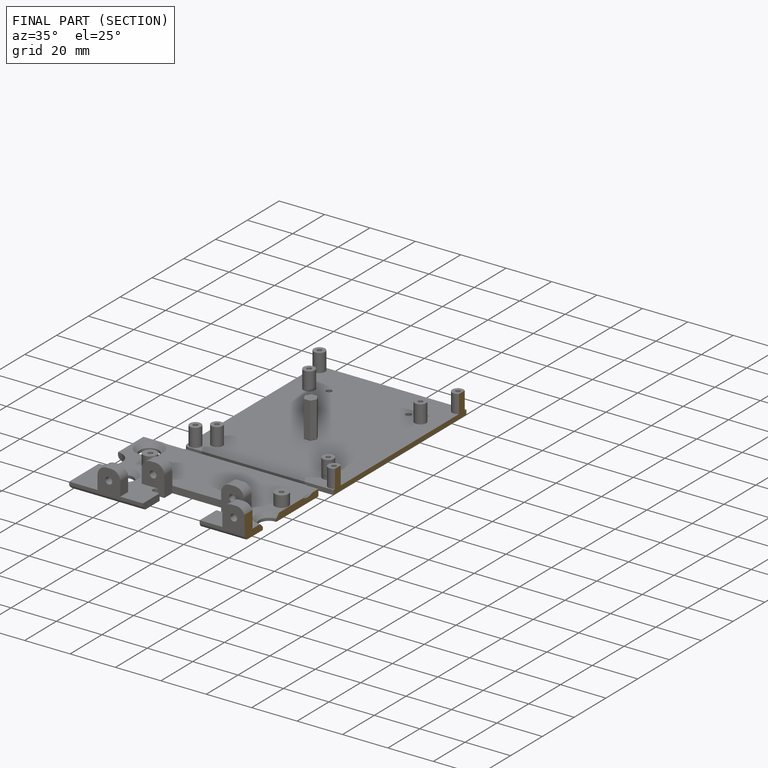
[diagram: finished part — half-section view (interior)]
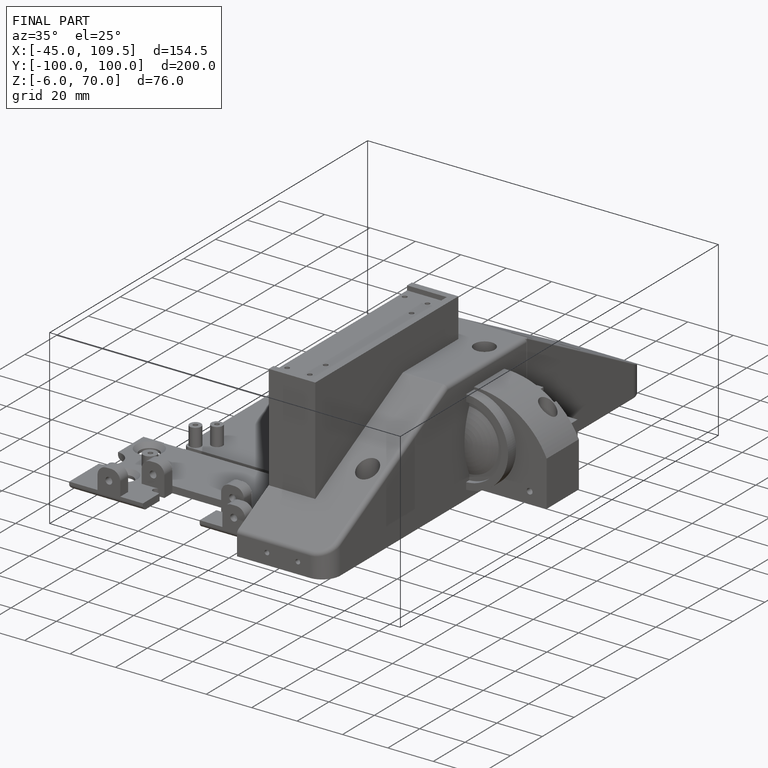
[diagram: finished part — iso view with bounding-box wireframe]
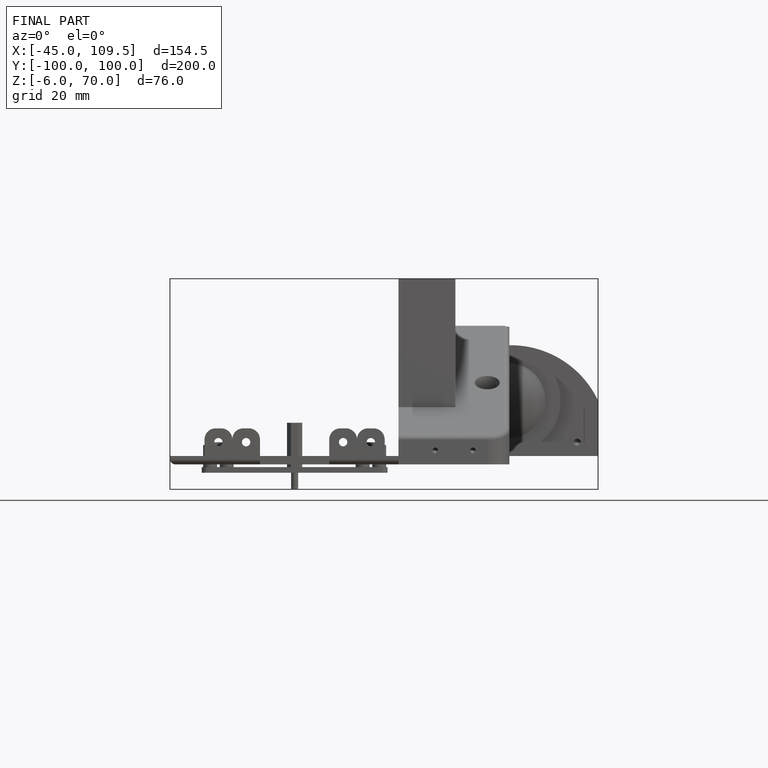
[diagram: finished part — front view with bounding-box wireframe]
